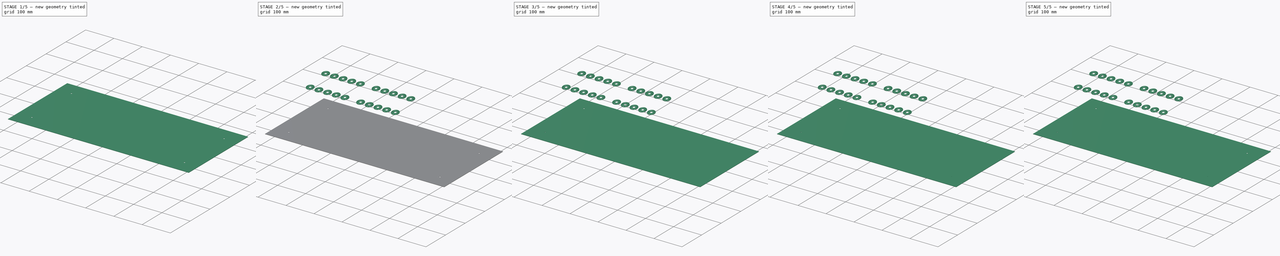
[diagram: build sequence overview — one tinted view per stage of 5, left to right]
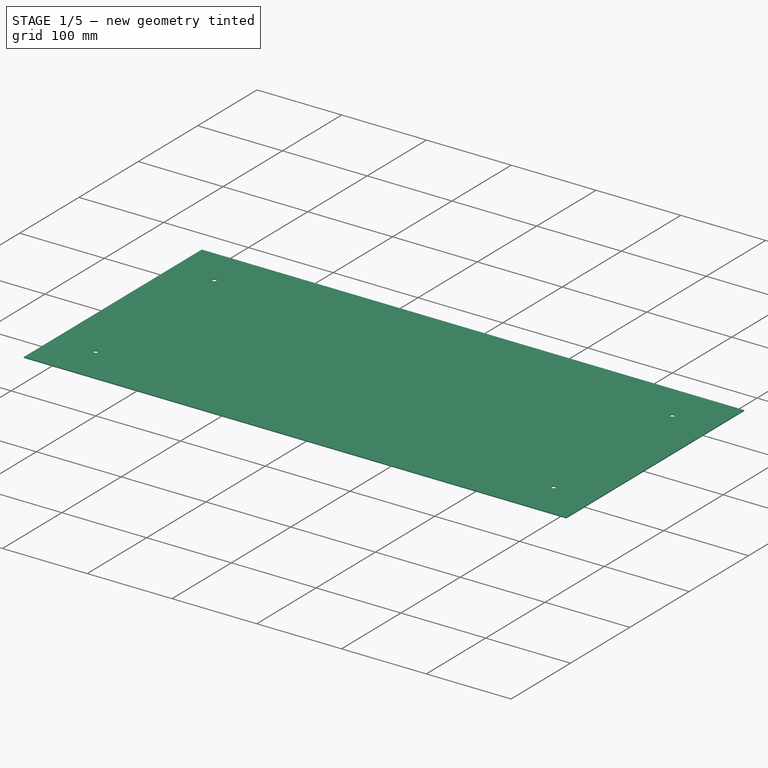
[diagram: stage 1 of 5 — iso view after this stage's code; geometry added in this stage tinted green]
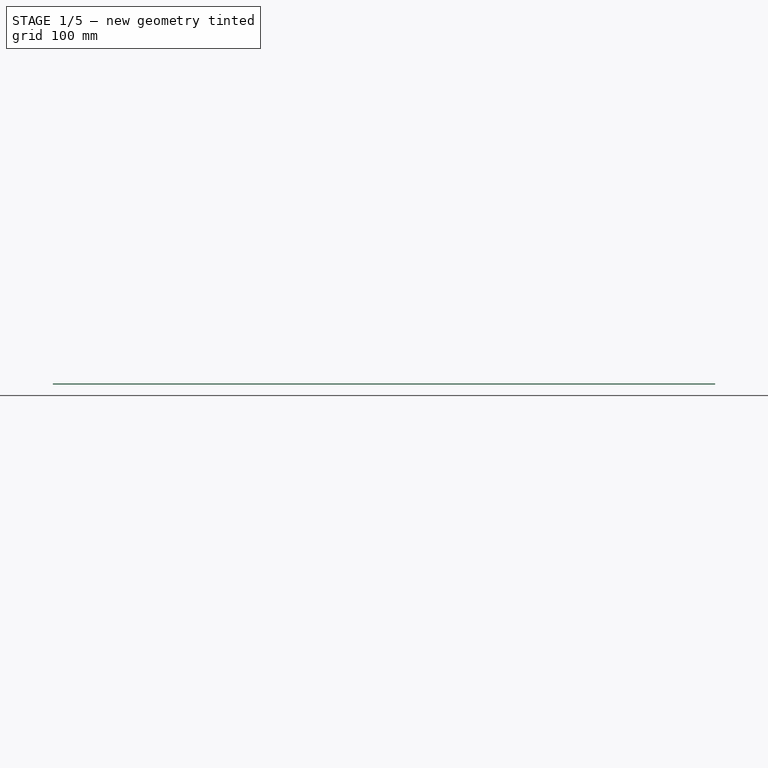
[diagram: stage 1 of 5 — front view after this stage's code; geometry added in this stage tinted green]
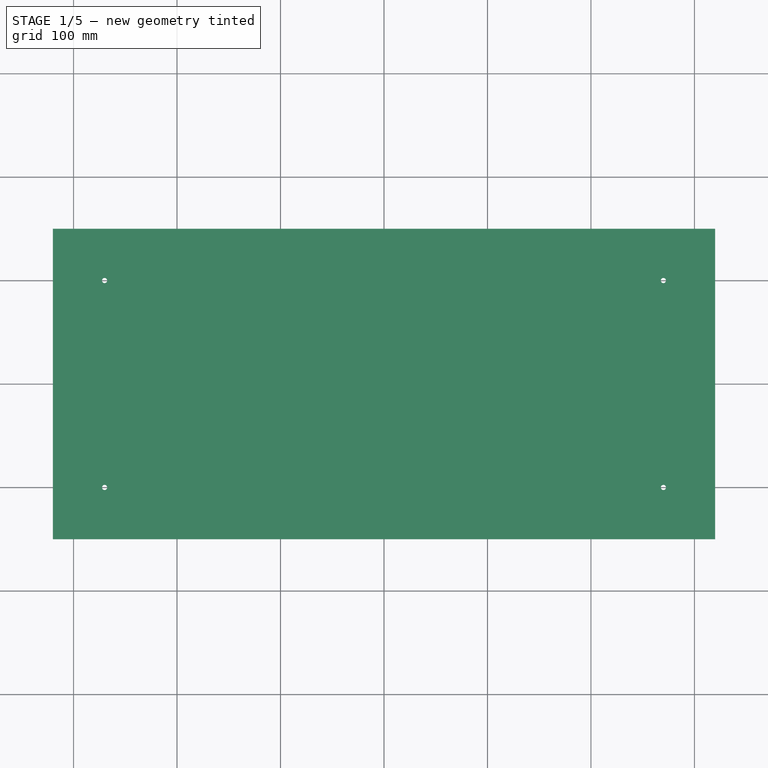
[diagram: stage 1 of 5 — top view after this stage's code; geometry added in this stage tinted green]
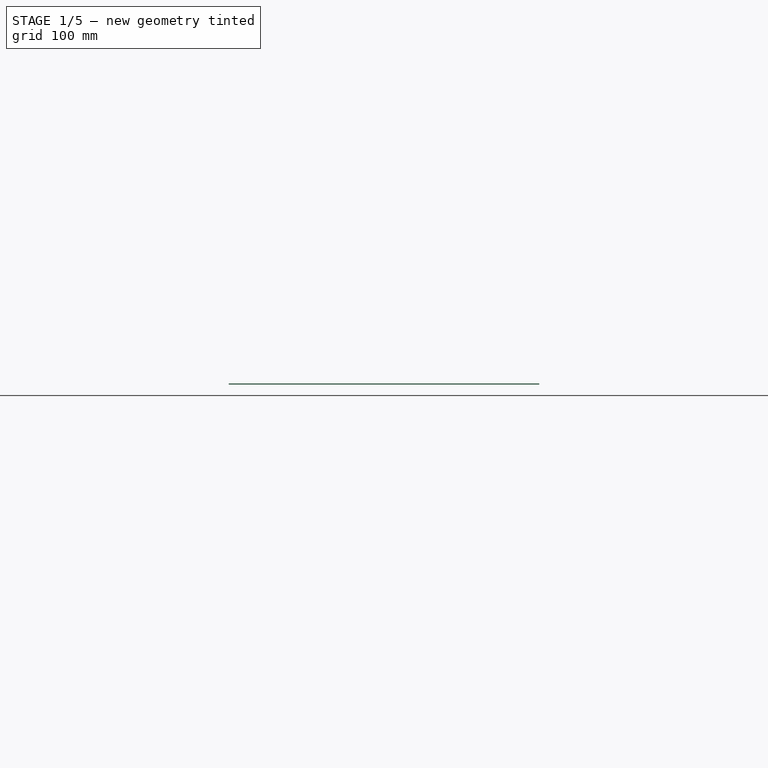
[diagram: stage 1 of 5 — right view after this stage's code; geometry added in this stage tinted green]
FCSTD DOCUMENT  (FreeCAD 1.0R38806 (Git))
Label: model
License: All rights reserved
LicenseURL: http://en.wikipedia.org/wiki/All_rights_reserved
objects: Sketcher::SketchObject×18, PartDesign::Pocket×16, PartDesign::Pad×3, PartDesign::Body×3, Part::FeaturePython×2
note: 96 computed .brp shape members not serialized (recipe doc carries the construction recipe); baked Part::Feature solids carry a one-line shape summary decoded from their .brp

FEATURE [PartDesign::Body] Body  label="faceplate"
  AllowCompound = false
  Group = -> [Sketch,Pad,Sketch001,Sketch002,Sketch008,Sketch005,Sketch006,Sketch004,Sketch007,Sketch003,Sketch009,Sketch010,Sketch011,Sketch012,Pocket,Pocket001,Pocket002,Pocket003,Pocket004,Pocket005,Pocket006,Pocket007,Pocket008,Pocket009,Pocket010,Pocket011]
  Origin = -> Origin
  Placement = pos=(0,5e-15,70) rot=(1,0,0;0.174533rad)
  Tip = -> Pocket011
FEATURE [Sketcher::SketchObject] Sketch013
  ArcFitTolerance = 0
  AttachmentSupport = -> [XY_Plane001]
  FullyConstrained = true
  MakeInternals = false
  MapMode = 5
  sketch-geometry (1):
    g0: Circle CenterX=-300 CenterY=133 CenterZ=0 NormalX=0 NormalY=0 NormalZ=1 AngleXU=0 Radius=13
  constraints (3):
    c: Diameter(g0) = 26
    c: DistanceY(g-1,g0) = 133
    c: DistanceX(g0,g-1) = 300
FEATURE [PartDesign::Pad] Pad001
  Direction = (0,0,1)
  Length = 1
  Length2 = 10
  Profile = -> Sketch013
  ReferenceAxis = -> Sketch013 [N_Axis]
  Suppressed = false
  Type = 0
FEATURE [Sketcher::SketchObject] Sketch014
  ArcFitTolerance = 0
  AttachmentSupport = -> [Pad001]
  ExternalGeometry = -> [Pad001]
  FullyConstrained = true
  MakeInternals = false
  MapMode = 5
  Placement = pos=(0,0,1) rot=(0,0,1;0rad)
  sketch-geometry (1):
    g0: Circle CenterX=-300 CenterY=133 CenterZ=0 NormalX=0 NormalY=0 NormalZ=1 AngleXU=0 Radius=4
  constraints (2):
    c: Coincident(g0,g-3)
    c: Diameter(g0) = 8
FEATURE [PartDesign::Pocket] Pocket012
  BaseFeature = -> Pad001
  Direction = (0,0,-1)
  Length = 1.5
  Length2 = 5
  Profile = -> Sketch014
  ReferenceAxis = -> Sketch014 [N_Axis]
  Suppressed = false
  Type = 0
FEATURE [Sketcher::SketchObject] Sketch016  label="s-bottom-plate"
  ArcFitTolerance = 0
  AttachmentSupport = -> [XY_Plane002]
  FullyConstrained = true
  MakeInternals = false
  MapMode = 5
  sketch-geometry (4):
    g0: LineSegment StartX=-320 StartY=150 StartZ=0 EndX=320 EndY=150 EndZ=0
    g1: LineSegment StartX=320 StartY=150 StartZ=0 EndX=320 EndY=-150 EndZ=0
    g2: LineSegment StartX=320 StartY=-150 StartZ=0 EndX=-320 EndY=-150 EndZ=0
    g3: LineSegment StartX=-320 StartY=-150 StartZ=0 EndX=-320 EndY=150 EndZ=0
  constraints (12):
    c: Coincident(g0,g1)
    c: Coincident(g1,g2)
    c: Coincident(g2,g3)
    c: Coincident(g3,g0)
    c: Horizontal(g0)
    c: Horizontal(g2)
    c: Vertical(g1)
    c: Vertical(g3)
    c: DistanceX(g0,g0) = 640
    c: DistanceY(g1,g1) = 300
    c: DistanceX(g-1,g0) = 320
    c: DistanceY(g-1,g0) = 150
FEATURE [PartDesign::Pad] Pad002  label="bottom-plate"
  Direction = (0,0,1)
  Length = 1
  Length2 = 10
  Profile = -> Sketch016
  ReferenceAxis = -> Sketch016 [N_Axis]
  Suppressed = false
  Type = 0
FEATURE [Sketcher::SketchObject] Sketch017  label="s-feet-hole"
  ArcFitTolerance = 0
  AttachmentSupport = -> [Pad002]
  ExternalGeometry = -> [Pad002]
  FullyConstrained = true
  MakeInternals = false
  MapMode = 5
  Placement = pos=(0,0,0) rot=(1,0,0;3.14159rad)
  sketch-geometry (4):
    g0: Circle CenterX=-270 CenterY=100 CenterZ=0 NormalX=0 NormalY=0 NormalZ=1 AngleXU=0 Radius=2.5
    g1: Circle CenterX=-270 CenterY=-100 CenterZ=0 NormalX=0 NormalY=0 NormalZ=1 AngleXU=0 Radius=2.5
    g2: Circle CenterX=270 CenterY=-100 CenterZ=0 NormalX=0 NormalY=0 NormalZ=1 AngleXU=0 Radius=2.5
    g3: Circle CenterX=270 CenterY=100 CenterZ=0 NormalX=0 NormalY=0 NormalZ=1 AngleXU=0 Radius=2.5
  constraints (12):
    c: Diameter(g0) = 5
    c: DistanceX(g-3,g0) = 50
    c: DistanceY(g0,g-3) = 50
    c: Equal(g3,g2)
    c: Equal(g2,g1)
    c: Equal(g0,g1)
    c: DistanceX(g3,g-3) = 50
    c: DistanceY(g3,g-3) = 50
    c: DistanceX(g2,g-4) = 50
    c: DistanceY(g-4,g2) = 50
    c: DistanceY(g-4,g1) = 50
    c: DistanceX(g-4,g1) = 50
FEATURE [PartDesign::Pocket] Pocket015  label="feet-hole"
  BaseFeature = -> Pad002
  Direction = (0,0,1)
  Length = 1
  Length2 = 5
  Profile = -> Sketch017
  ReferenceAxis = -> Sketch017 [N_Axis]
  Suppressed = false
  Type = 0
FEATURE [PartDesign::Body] Body002  label="bottom"
  AllowCompound = false
  Group = -> [Sketch016,Pad002,Sketch017,Pocket015]
  Origin = -> Origin002
  Tip = -> Pocket015
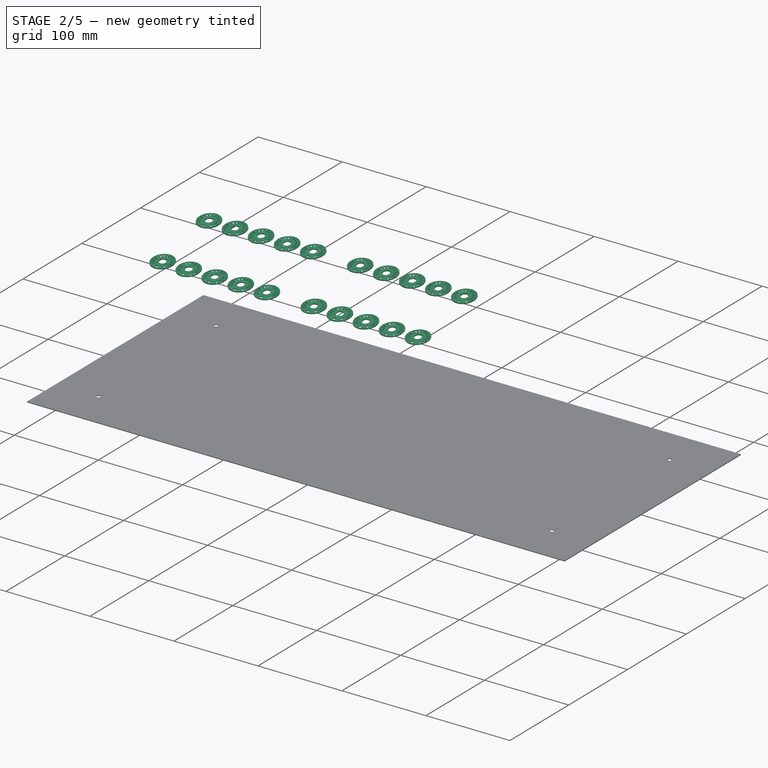
[diagram: stage 2 of 5 — iso view after this stage's code; geometry added in this stage tinted green]
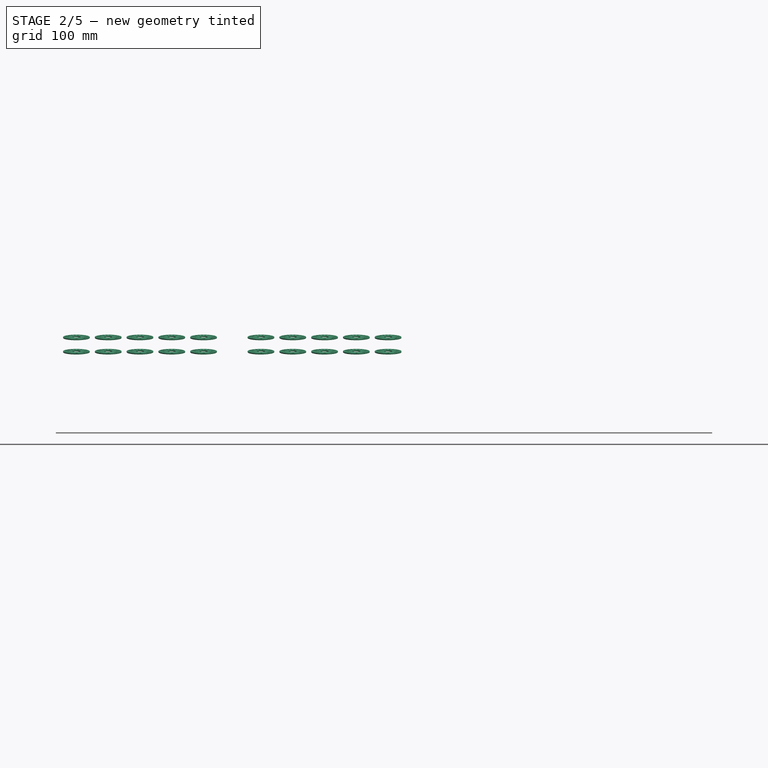
[diagram: stage 2 of 5 — front view after this stage's code; geometry added in this stage tinted green]
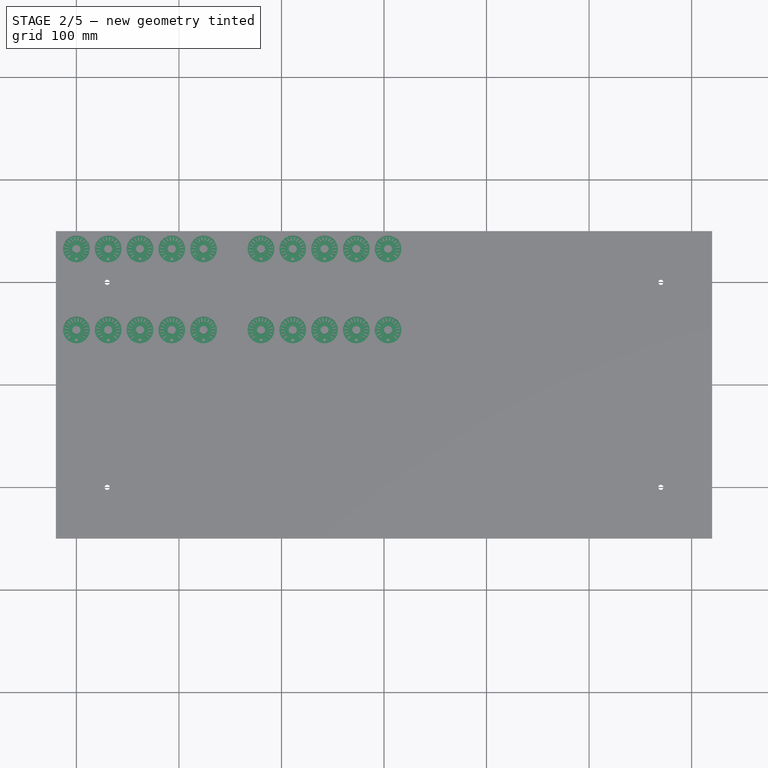
[diagram: stage 2 of 5 — top view after this stage's code; geometry added in this stage tinted green]
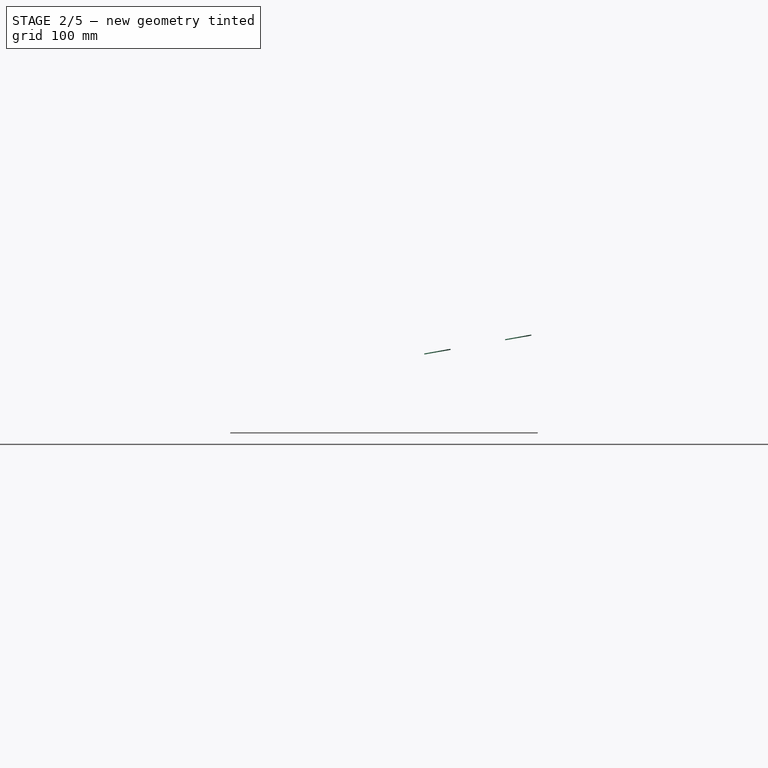
[diagram: stage 2 of 5 — right view after this stage's code; geometry added in this stage tinted green]
FEATURE [PartDesign::Pocket] Pocket013
  BaseFeature = -> Pocket012
  Direction = (0,0,-1)
  Length = 1.5
  Length2 = 5
  Profile = -> Sketch014
  ReferenceAxis = -> Sketch014 [N_Axis]
  Suppressed = false
  Type = 0
FEATURE [Sketcher::SketchObject] Sketch015
  ArcFitTolerance = 0
  AttachmentSupport = -> [Pocket013]
  ExternalGeometry = -> [Pocket013]
  FullyConstrained = true
  MakeInternals = false
  MapMode = 5
  Placement = pos=(0,0,1) rot=(0,0,1;0rad)
  sketch-geometry (99):
    g0: Circle [constr] CenterX=-300 CenterY=133 CenterZ=0 NormalX=0 NormalY=0 NormalZ=1 AngleXU=0 Radius=12
    g1: LineSegment [constr] StartX=-300 StartY=133 StartZ=0 EndX=-300 EndY=121 EndZ=0
    g2: LineSegment [constr] StartX=-300 StartY=133 StartZ=0 EndX=-291.515 EndY=124.515 EndZ=0
    g3: LineSegment StartX=-291.515 StartY=124.515 StartZ=0 EndX=-291.868 EndY=124.161 EndZ=0
    g4: LineSegment StartX=-291.868 StartY=124.161 StartZ=0 EndX=-294.697 EndY=126.99 EndZ=0
    g5: LineSegment StartX=-294.697 StartY=126.99 StartZ=0 EndX=-293.99 EndY=127.697 EndZ=0
    g6: LineSegment StartX=-293.99 StartY=127.697 StartZ=0 EndX=-291.161 EndY=124.868 EndZ=0
    g7: LineSegment StartX=-291.161 StartY=124.868 StartZ=0 EndX=-291.515 EndY=124.515 EndZ=0
    g8: Circle CenterX=-300 CenterY=123 CenterZ=0 NormalX=0 NormalY=0 NormalZ=1 AngleXU=0 Radius=1.5
    g9: LineSegment [constr] StartX=-300 StartY=133 StartZ=0 EndX=-310.692 EndY=138.448 EndZ=0
    g10: LineSegment StartX=-310.465 StartY=138.893 StartZ=0 EndX=-306.901 EndY=137.077 EndZ=0
    g11: LineSegment StartX=-307.355 StartY=136.186 StartZ=0 EndX=-310.919 EndY=138.002 EndZ=0
    g12: LineSegment StartX=-306.901 StartY=137.077 StartZ=0 EndX=-307.355 EndY=136.186 EndZ=0
    g13: LineSegment StartX=-310.692 StartY=138.448 StartZ=0 EndX=-310.465 EndY=138.893 EndZ=0
    g14: LineSegment StartX=-310.919 StartY=138.002 StartZ=0 EndX=-310.692 EndY=138.448 EndZ=0
    g15: LineSegment [constr] StartX=-300 StartY=133 StartZ=0 EndX=-311.852 EndY=134.877 EndZ=0
    g16: LineSegment StartX=-311.852 StartY=134.877 StartZ=0 EndX=-311.774 EndY=135.371 EndZ=0
    g17: LineSegment StartX=-311.774 StartY=135.371 StartZ=0 EndX=-307.823 EndY=134.745 EndZ=0
    g18: LineSegment StartX=-307.823 StartY=134.745 StartZ=0 EndX=-307.98 EndY=133.758 EndZ=0
    g19: LineSegment StartX=-307.98 StartY=133.758 StartZ=0 EndX=-311.93 EndY=134.383 EndZ=0
    g20: LineSegment StartX=-311.93 StartY=134.383 StartZ=0 EndX=-311.852 EndY=134.877 EndZ=0
    g21: LineSegment [constr] StartX=-300 StartY=133 StartZ=0 EndX=-311.852 EndY=131.123 EndZ=0
    g22: LineSegment StartX=-311.852 StartY=131.123 StartZ=0 EndX=-311.93 EndY=131.617 EndZ=0
    g23: LineSegment StartX=-311.93 StartY=131.617 StartZ=0 EndX=-307.98 EndY=132.242 EndZ=0
    g24: LineSegment StartX=-307.98 StartY=132.242 StartZ=0 EndX=-307.823 EndY=131.255 EndZ=0
    g25: LineSegment StartX=-307.823 StartY=131.255 StartZ=0 EndX=-311.774 EndY=130.629 EndZ=0
    g26: LineSegment StartX=-311.774 StartY=130.629 StartZ=0 EndX=-311.852 EndY=131.123 EndZ=0
    g27: LineSegment [constr] StartX=-300 StartY=133 StartZ=0 EndX=-310.692 EndY=127.552 EndZ=0
    g28: LineSegment StartX=-310.692 StartY=127.552 StartZ=0 EndX=-310.919 EndY=127.998 EndZ=0
    g29: LineSegment StartX=-310.919 StartY=127.998 StartZ=0 EndX=-307.355 EndY=129.814 EndZ=0
    g30: LineSegment StartX=-307.355 StartY=129.814 StartZ=0 EndX=-306.901 EndY=128.923 EndZ=0
    g31: LineSegment StartX=-306.901 StartY=128.923 StartZ=0 EndX=-310.465 EndY=127.107 EndZ=0
    g32: LineSegment StartX=-310.465 StartY=127.107 StartZ=0 EndX=-310.692 EndY=127.552 EndZ=0
    g33: LineSegment [constr] StartX=-300 StartY=133 StartZ=0 EndX=-308.485 EndY=124.515 EndZ=0
    g34: LineSegment StartX=-308.485 StartY=124.515 StartZ=0 EndX=-308.839 EndY=124.868 EndZ=0
    g35: LineSegment StartX=-308.839 StartY=124.868 StartZ=0 EndX=-306.01 EndY=127.697 EndZ=0
    g36: LineSegment StartX=-306.01 StartY=127.697 StartZ=0 EndX=-305.303 EndY=126.99 EndZ=0
    g37: LineSegment StartX=-305.303 StartY=126.99 StartZ=0 EndX=-308.132 EndY=124.161 EndZ=0
    g38: LineSegment StartX=-308.132 StartY=124.161 StartZ=0 EndX=-308.485 EndY=124.515 EndZ=0
    g39: LineSegment [constr] StartX=-300 StartY=133 StartZ=0 EndX=-308.485 EndY=141.485 EndZ=0
    g40: LineSegment StartX=-308.485 StartY=141.485 StartZ=0 EndX=-308.132 EndY=141.839 EndZ=0
    g41: LineSegment StartX=-308.132 StartY=141.839 StartZ=0 EndX=-305.303 EndY=139.01 EndZ=0
    g42: LineSegment StartX=-305.303 StartY=139.01 StartZ=0 EndX=-306.01 EndY=138.303 EndZ=0
    g43: LineSegment StartX=-306.01 StartY=138.303 StartZ=0 EndX=-308.839 EndY=141.132 EndZ=0
    g44: LineSegment StartX=-308.839 StartY=141.132 StartZ=0 EndX=-308.485 EndY=141.485 EndZ=0
    g45: LineSegment [constr] StartX=-300 StartY=133 StartZ=0 EndX=-305.448 EndY=143.692 EndZ=0
    g46: LineSegment StartX=-305.448 StartY=143.692 StartZ=0 EndX=-305.002 EndY=143.919 EndZ=0
    g47: LineSegment StartX=-305.002 StartY=143.919 StartZ=0 EndX=-303.186 EndY=140.355 EndZ=0
    g48: LineSegment StartX=-303.186 StartY=140.355 StartZ=0 EndX=-304.077 EndY=139.901 EndZ=0
    g49: LineSegment StartX=-304.077 StartY=139.901 StartZ=0 EndX=-305.893 EndY=143.465 EndZ=0
    g50: LineSegment StartX=-305.893 StartY=143.465 StartZ=0 EndX=-305.448 EndY=143.692 EndZ=0
    g51: LineSegment [constr] StartX=-300 StartY=133 StartZ=0 EndX=-301.877 EndY=144.852 EndZ=0
    g52: LineSegment StartX=-301.877 StartY=144.852 StartZ=0 EndX=-301.383 EndY=144.93 EndZ=0
    g53: LineSegment StartX=-301.383 StartY=144.93 StartZ=0 EndX=-300.758 EndY=140.98 EndZ=0
    g54: LineSegment StartX=-300.758 StartY=140.98 StartZ=0 EndX=-301.745 EndY=140.823 EndZ=0
    g55: LineSegment StartX=-301.745 StartY=140.823 StartZ=0 EndX=-302.371 EndY=144.774 EndZ=0
    g56: LineSegment StartX=-302.371 StartY=144.774 StartZ=0 EndX=-301.877 EndY=144.852 EndZ=0
    g57: LineSegment [constr] StartX=-300 StartY=133 StartZ=0 EndX=-298.123 EndY=144.852 EndZ=0
    g58: LineSegment StartX=-298.123 StartY=144.852 StartZ=0 EndX=-297.629 EndY=144.774 EndZ=0
    g59: LineSegment StartX=-297.629 StartY=144.774 StartZ=0 EndX=-298.255 EndY=140.823 EndZ=0
    g60: LineSegment StartX=-298.255 StartY=140.823 StartZ=0 EndX=-299.242 EndY=140.98 EndZ=0
    g61: LineSegment StartX=-299.242 StartY=140.98 StartZ=0 EndX=-298.617 EndY=144.93 EndZ=0
    g62: LineSegment StartX=-298.617 StartY=144.93 StartZ=0 EndX=-298.123 EndY=144.852 EndZ=0
    g63: LineSegment [constr] StartX=-300 StartY=133 StartZ=0 EndX=-294.552 EndY=143.692 EndZ=0
    g64: LineSegment StartX=-294.552 StartY=143.692 StartZ=0 EndX=-294.107 EndY=143.465 EndZ=0
    g65: LineSegment StartX=-294.107 StartY=143.465 StartZ=0 EndX=-295.923 EndY=139.901 EndZ=0
    g66: LineSegment StartX=-295.923 StartY=139.901 StartZ=0 EndX=-296.814 EndY=140.355 EndZ=0
    g67: LineSegment StartX=-296.814 StartY=140.355 StartZ=0 EndX=-294.998 EndY=143.919 EndZ=0
    g68: LineSegment StartX=-294.998 StartY=143.919 StartZ=0 EndX=-294.552 EndY=143.692 EndZ=0
    g69: LineSegment [constr] StartX=-300 StartY=133 StartZ=0 EndX=-291.515 EndY=141.485 EndZ=0
    g70: LineSegment StartX=-291.515 StartY=141.485 StartZ=0 EndX=-291.161 EndY=141.132 EndZ=0
    g71: LineSegment StartX=-291.161 StartY=141.132 StartZ=0 EndX=-293.99 EndY=138.303 EndZ=0
    g72: LineSegment StartX=-293.99 StartY=138.303 StartZ=0 EndX=-294.697 EndY=139.01 EndZ=0
    g73: LineSegment StartX=-294.697 StartY=139.01 StartZ=0 EndX=-291.868 EndY=141.839 EndZ=0
    g74: LineSegment StartX=-291.868 StartY=141.839 StartZ=0 EndX=-291.515 EndY=141.485 EndZ=0
    g75: LineSegment [constr] StartX=-300 StartY=133 StartZ=0 EndX=-289.308 EndY=138.448 EndZ=0
    g76: LineSegment StartX=-289.308 StartY=138.448 StartZ=0 EndX=-289.081 EndY=138.002 EndZ=0
    g77: LineSegment StartX=-289.081 StartY=138.002 StartZ=0 EndX=-292.645 EndY=136.186 EndZ=0
    g78: LineSegment StartX=-292.645 StartY=136.186 StartZ=0 EndX=-293.099 EndY=137.077 EndZ=0
    g79: LineSegment StartX=-293.099 StartY=137.077 StartZ=0 EndX=-289.535 EndY=138.893 EndZ=0
    g80: LineSegment StartX=-289.535 StartY=138.893 StartZ=0 EndX=-289.308 EndY=138.448 EndZ=0
    g81: LineSegment [constr] StartX=-300 StartY=133 StartZ=0 EndX=-288.148 EndY=134.877 EndZ=0
    g82: LineSegment StartX=-288.148 StartY=134.877 StartZ=0 EndX=-288.07 EndY=134.383 EndZ=0
    g83: LineSegment StartX=-288.07 StartY=134.383 StartZ=0 EndX=-292.02 EndY=133.758 EndZ=0
    g84: LineSegment StartX=-292.02 StartY=133.758 StartZ=0 EndX=-292.177 EndY=134.745 EndZ=0
    g85: LineSegment StartX=-292.177 StartY=134.745 StartZ=0 EndX=-288.226 EndY=135.371 EndZ=0
    g86: LineSegment StartX=-288.226 StartY=135.371 StartZ=0 EndX=-288.148 EndY=134.877 EndZ=0
    g87: LineSegment [constr] StartX=-300 StartY=133 StartZ=0 EndX=-288.148 EndY=131.123 EndZ=0
    g88: LineSegment StartX=-288.148 StartY=131.123 StartZ=0 EndX=-288.226 EndY=130.629 EndZ=0
    g89: LineSegment StartX=-288.226 StartY=130.629 StartZ=0 EndX=-292.177 EndY=131.255 EndZ=0
    g90: LineSegment StartX=-292.177 StartY=131.255 StartZ=0 EndX=-292.02 EndY=132.242 EndZ=0
    g91: LineSegment StartX=-292.02 StartY=132.242 StartZ=0 EndX=-288.07 EndY=131.617 EndZ=0
    g92: LineSegment StartX=-288.07 StartY=131.617 StartZ=0 EndX=-288.148 EndY=131.123 EndZ=0
    g93: LineSegment [constr] StartX=-300 StartY=133 StartZ=0 EndX=-289.308 EndY=127.552 EndZ=0
    g94: LineSegment StartX=-289.308 StartY=127.552 StartZ=0 EndX=-289.535 EndY=127.107 EndZ=0
    g95: LineSegment StartX=-289.535 StartY=127.107 StartZ=0 EndX=-293.099 EndY=128.923 EndZ=0
    g96: LineSegment StartX=-293.099 StartY=128.923 StartZ=0 EndX=-292.645 EndY=129.814 EndZ=0
    g97: LineSegment StartX=-292.645 StartY=129.814 StartZ=0 EndX=-289.081 EndY=127.998 EndZ=0
    g98: LineSegment StartX=-289.081 StartY=127.998 StartZ=0 EndX=-289.308 EndY=127.552 EndZ=0
  constraints (280):
    c: Coincident(g0,g-3)
    c: Diameter(g0) = 24
    c: Coincident(g1,g0)
    c: PointOnObject(g1,g0)
    c: DistanceX(g1,g1) = 0
    c: Coincident(g2,g0)
    c: PointOnObject(g2,g0)
    c: Angle(g1,g2) = 0.785398
    c: Coincident(g3,g2)
    c: Coincident(g4,g3)
    c: Coincident(g5,g4)
    c: Coincident(g6,g5)
    c: Coincident(g7,g6)
    c: Coincident(g7,g3)
    c: Distance(g3) = 0.5
    c: Equal(g3,g7)
    c: Distance(g4) = 4
    c: Equal(g6,g4)
    c: Perpendicular(g6,g7)
    c: PointOnObject(g8,g1)
    c: DistanceY(g1,g8) = 2
    c: Diameter(g8) = 3
    c: Perpendicular(g3,g2)
    c: Parallel(g4,g6)
    c: Parallel(g7,g3)
    c: Coincident(g13,g9)
    c: Coincident(g10,g13)
    c: Coincident(g12,g10)
    c: Coincident(g11,g12)
    c: Coincident(g14,g11)
    c: Coincident(g14,g13)
    c: Equal(g3,g13) = 0.5
    c: Equal(g13,g14)
    c: Equal(g4,g10) = 4
    c: Equal(g11,g10)
    c: Perpendicular(g11,g14)
    c: Perpendicular(g13,g9)
    c: Parallel(g10,g11)
    c: Parallel(g14,g13)
    c: Coincident(g16,g15)
    c: Coincident(g17,g16)
    c: Coincident(g18,g17)
    c: Coincident(g19,g18)
    c: Coincident(g20,g19)
    c: Coincident(g20,g16)
    c: Equal(g3,g16) = 0.5
    c: Equal(g16,g20)
    c: Equal(g4,g17) = 4
    c: Equal(g19,g17)
    c: Perpendicular(g19,g20)
    c: Perpendicular(g16,g15)
    c: Parallel(g17,g19)
    c: Parallel(g20,g16)
    c: Coincident(g22,g21)
    c: Coincident(g23,g22)
    c: Coincident(g24,g23)
    c: Coincident(g25,g24)
    c: Coincident(g26,g25)
    c: Coincident(g26,g22)
    c: Distance(g22) = 0.5
    c: Equal(g22,g26)
    c: Distance(g23) = 4
    c: Equal(g25,g23)
    c: Perpendicular(g25,g26)
    c: Perpendicular(g22,g21)
    c: Parallel(g23,g25)
    c: Parallel(g26,g22)
    c: Coincident(g28,g27)
    c: Coincident(g29,g28)
    c: Coincident(g30,g29)
    c: Coincident(g31,g30)
    c: Coincident(g32,g31)
    c: Coincident(g32,g28)
    c: Distance(g28) = 0.5
    c: Equal(g28,g32)
    c: Distance(g29) = 4
    c: Equal(g31,g29)
    c: Perpendicular(g31,g32)
    c: Perpendicular(g28,g27)
    c: Parallel(g29,g31)
    c: Parallel(g32,g28)
    c: Coincident(g34,g33)
    c: Coincident(g35,g34)
    c: Coincident(g36,g35)
    c: Coincident(g37,g36)
    c: Coincident(g38,g37)
    c: Coincident(g38,g34)
    c: Distance(g34) = 0.5
    c: Equal(g34,g38)
    c: Distance(g35) = 4
    c: Equal(g37,g35)
    c: Perpendicular(g37,g38)
    c: Perpendicular(g34,g33)
    c: Parallel(g35,g37)
    c: Parallel(g38,g34)
    c: Coincident(g40,g39)
    c: Coincident(g41,g40)
    c: Coincident(g42,g41)
    c: Coincident(g43,g42)
    c: Coincident(g44,g43)
    c: Coincident(g44,g40)
    c: Distance(g40) = 0.5
    c: Equal(g40,g44)
    c: Distance(g41) = 4
    c: Equal(g43,g41)
    c: Perpendicular(g43,g44)
    c: Perpendicular(g40,g39)
    c: Parallel(g41,g43)
    c: Parallel(g44,g40)
    c: Coincident(g46,g45)
    c: Coincident(g47,g46)
    c: Coincident(g48,g47)
    c: Coincident(g49,g48)
    c: Coincident(g50,g49)
    c: Coincident(g50,g46)
    c: Distance(g46) = 0.5
    c: Equal(g46,g50)
    c: Distance(g47) = 4
    c: Equal(g49,g47)
    c: Perpendicular(g49,g50)
    c: Perpendicular(g46,g45)
    c: Parallel(g47,g49)
    c: Parallel(g50,g46)
    c: Coincident(g52,g51)
    c: Coincident(g53,g52)
    c: Coincident(g54,g53)
    c: Coincident(g55,g54)
    c: Coincident(g56,g55)
    c: Coincident(g56,g52)
    c: Distance(g52) = 0.5
    c: Equal(g52,g56)
    c: Distance(g53) = 4
    c: Equal(g55,g53)
    c: Perpendicular(g55,g56)
    c: Perpendicular(g52,g51)
    c: Parallel(g53,g55)
    c: Parallel(g56,g52)
    c: Coincident(g58,g57)
    c: Coincident(g59,g58)
    c: Coincident(g60,g59)
    c: Coincident(g61,g60)
    c: Coincident(g62,g61)
    c: Coincident(g62,g58)
    c: Distance(g58) = 0.5
    c: Equal(g58,g62)
    c: Distance(g59) = 4
    c: Equal(g61,g59)
    c: Perpendicular(g61,g62)
    c: Perpendicular(g58,g57)
    c: Parallel(g59,g61)
    c: Parallel(g62,g58)
    c: Coincident(g64,g63)
    c: Coincident(g65,g64)
    c: Coincident(g66,g65)
    c: Coincident(g67,g66)
    c: Coincident(g68,g67)
    c: Coincident(g68,g64)
    c: Distance(g64) = 0.5
    c: Equal(g64,g68)
    c: Distance(g65) = 4
    c: Equal(g67,g65)
    c: Perpendicular(g67,g68)
    c: Perpendicular(g64,g63)
    c: Parallel(g65,g67)
    c: Parallel(g68,g64)
    c: Coincident(g70,g69)
    c: Coincident(g71,g70)
    c: Coincident(g72,g71)
    c: Coincident(g73,g72)
    c: Coincident(g74,g73)
    c: Coincident(g74,g70)
    c: Distance(g70) = 0.5
    c: Equal(g70,g74)
    c: Distance(g71) = 4
    c: Equal(g73,g71)
    c: Perpendicular(g73,g74)
    c: Perpendicular(g70,g69)
    c: Parallel(g71,g73)
    c: Parallel(g74,g70)
    c: Coincident(g76,g75)
    c: Coincident(g77,g76)
    c: Coincident(g78,g77)
    c: Coincident(g79,g78)
    c: Coincident(g80,g79)
    c: Coincident(g80,g76)
    c: Distance(g76) = 0.5
    c: Equal(g76,g80)
    c: Distance(g77) = 4
    c: Equal(g79,g77)
    c: Perpendicular(g79,g80)
    c: Perpendicular(g76,g75)
    c: Parallel(g77,g79)
    c: Parallel(g80,g76)
    c: Coincident(g82,g81)
    c: Coincident(g83,g82)
    c: Coincident(g84,g83)
    c: Coincident(g85,g84)
    c: Coincident(g86,g85)
    c: Coincident(g86,g82)
    c: Distance(g82) = 0.5
    c: Equal(g82,g86)
    c: Distance(g83) = 4
    c: Equal(g85,g83)
    c: Perpendicular(g85,g86)
    c: Perpendicular(g82,g81)
    c: Parallel(g83,g85)
    c: Parallel(g86,g82)
    c: Coincident(g88,g87)
    c: Coincident(g89,g88)
    c: Coincident(g90,g89)
    c: Coincident(g91,g90)
    c: Coincident(g92,g91)
    c: Coincident(g92,g88)
    c: Distance(g88) = 0.5
    c: Equal(g88,g92)
    c: Distance(g89) = 4
    c: Equal(g91,g89)
    c: Perpendicular(g91,g92)
    c: Perpendicular(g88,g87)
    c: Parallel(g89,g91)
    c: Parallel(g92,g88)
    c: Coincident(g94,g93)
    c: Coincident(g95,g94)
    c: Coincident(g96,g95)
    c: Coincident(g97,g96)
    c: Coincident(g98,g97)
    c: Coincident(g98,g94)
    c: Distance(g94) = 0.5
    c: Equal(g94,g98)
    c: Distance(g95) = 4
    c: Equal(g97,g95)
    c: Perpendicular(g97,g98)
    c: Perpendicular(g94,g93)
    c: Parallel(g95,g97)
    c: Parallel(g98,g94)
    c: Coincident(g93,g0)
    c: PointOnObject(g94,g0)
    c: Angle(g2,g93) = 0.314159
    c: Coincident(g87,g0)
    c: Coincident(g81,g0)
    c: Angle(g93,g87) = 0.314159
    c: Angle(g87,g81) = 0.314159
    c: PointOnObject(g88,g0)
    c: PointOnObject(g82,g0)
    c: PointOnObject(g76,g0)
    c: PointOnObject(g70,g0)
    c: Coincident(g75,g0)
    c: Angle(g81,g75) = 0.314159
    c: Coincident(g69,g0)
    c: Angle(g75,g69) = 0.314159
    c: Coincident(g63,g0)
    c: Coincident(g57,g0)
    c: Coincident(g0,g51)
    c: PointOnObject(g64,g0)
    c: PointOnObject(g58,g0)
    c: PointOnObject(g52,g0)
    c: Angle(g69,g63) = 0.314159
    c: Angle(g63,g57) = 0.314159
    c: Angle(g57,g51) = 0.314159
    c: Coincident(g45,g0)
    c: Coincident(g39,g0)
    c: PointOnObject(g46,g0)
    c: PointOnObject(g40,g0)
    c: Angle(g51,g45) = 0.314159
    c: Angle(g45,g39) = 0.314159
    c: Coincident(g9,g0)
    c: Coincident(g15,g0)
    c: PointOnObject(g13,g0)
    c: PointOnObject(g16,g0)
    c: Angle(g39,g9) = 0.314159
    c: Angle(g9,g15) = 0.314159
    c: Coincident(g21,g0)
    c: Coincident(g0,g27)
    c: PointOnObject(g22,g0)
    c: PointOnObject(g28,g0)
    c: Angle(g15,g21) = 0.314159
    c: Angle(g21,g27) = 0.314159
    c: Coincident(g33,g0)
    c: PointOnObject(g34,g0)
    c: Angle(g27,g33) = 0.314159
FEATURE [PartDesign::Pocket] Pocket014
  BaseFeature = -> Pocket013
  Direction = (0,0,-1)
  Length = 1.5
  Length2 = 5
  Profile = -> Sketch015
  ReferenceAxis = -> Sketch015 [N_Axis]
  Suppressed = false
  Type = 0
FEATURE [PartDesign::Body] Body001  label="encoderring"
  AllowCompound = false
  Group = -> [Sketch013,Pad001,Sketch014,Pocket012,Pocket013,Sketch015,Pocket014]
  Origin = -> Origin001
  Tip = -> Pocket014
FEATURE [Part::FeaturePython] Array  # Draft array (typed FeaturePython)
  AlwaysSyncPlacement = false
  Angle = 360
  ArrayType = 0
  Axis = (0,0,1)
  Base = -> Body001
  Center = (0,0,0)
  Count = 10
  ExpandArray = false
  Fuse = false
  IntervalAxis = (0,0,0)
  IntervalX = (31,0,0)
  IntervalY = (0,-80,0)
  IntervalZ = (0,0,119)
  NumberCircles = 3
  NumberPolar = 5
  NumberX = 5
  NumberY = 2
  NumberZ = 1
  PlacementList = 10 placements: [(0,0,0),(0,-80,0),(31,0,0),(31,-80,0),(62,0,0),(62,-80,0),(93,0,0),(93,-80,0),(124,0,0),(124,-80,0)]
  RadialDistance = 50
  ScaleList = (10) [(1,1,1),(1,1,1),(1,1,1),(1,1,1),(1,1,1),(1,1,1),(1,1,1),(1,1,1),(1,1,1),(1,1,1)]
  Symmetry = 1
  TangentialDistance = 25
FEATURE [Part::FeaturePython] Array001  # Draft array (typed FeaturePython)
  AlwaysSyncPlacement = false
  Angle = 360
  ArrayType = 0
  Axis = (0,0,1)
  Base = -> Array
  Center = (0,0,0)
  Count = 2
  ExpandArray = false
  Fuse = false
  IntervalAxis = (0,0,0)
  IntervalX = (180,0,0)
  IntervalY = (0,100,0)
  IntervalZ = (0,0,100)
  NumberCircles = 3
  NumberPolar = 5
  NumberX = 2
  NumberY = 1
  NumberZ = 1
  Placement = pos=(0,-1.12057e-05,70) rot=(1,0,0;0.174533rad)
  PlacementList = 2 placements: [(0,0,0),(180,0,0)]
  RadialDistance = 50
  ScaleList = (2) [(1,1,1),(1,1,1)]
  Symmetry = 1
  TangentialDistance = 25
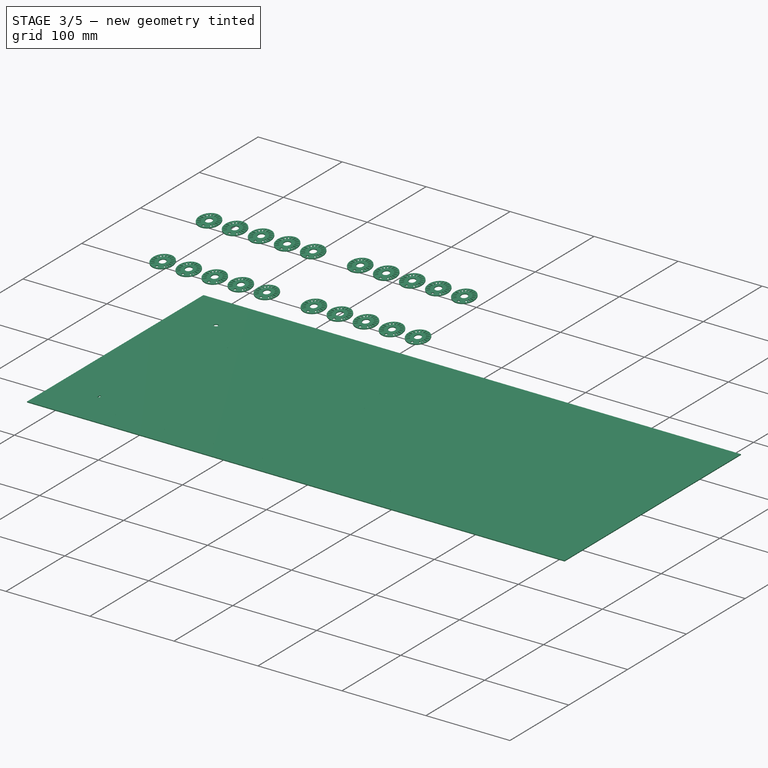
[diagram: stage 3 of 5 — iso view after this stage's code; geometry added in this stage tinted green]
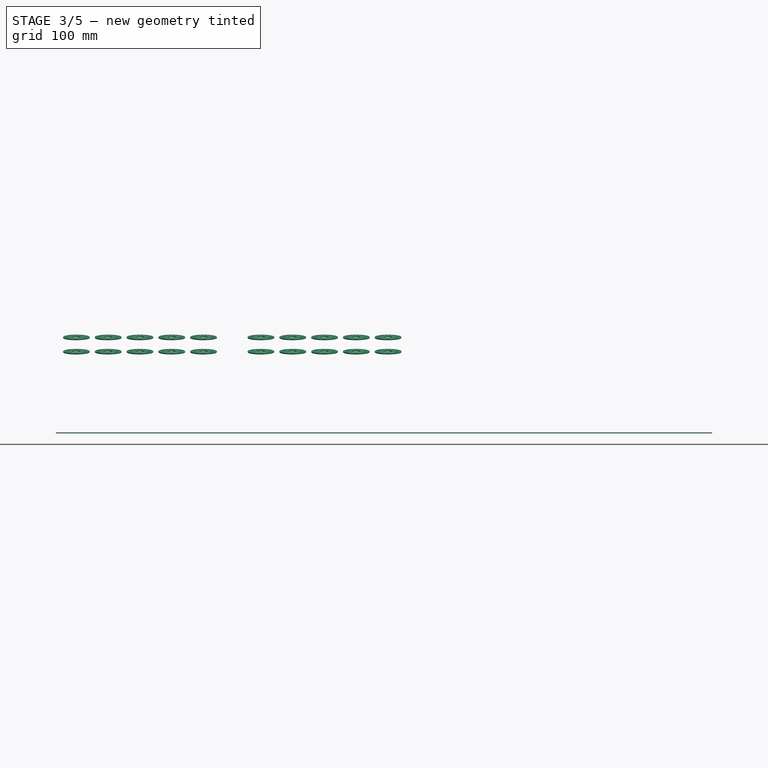
[diagram: stage 3 of 5 — front view after this stage's code; geometry added in this stage tinted green]
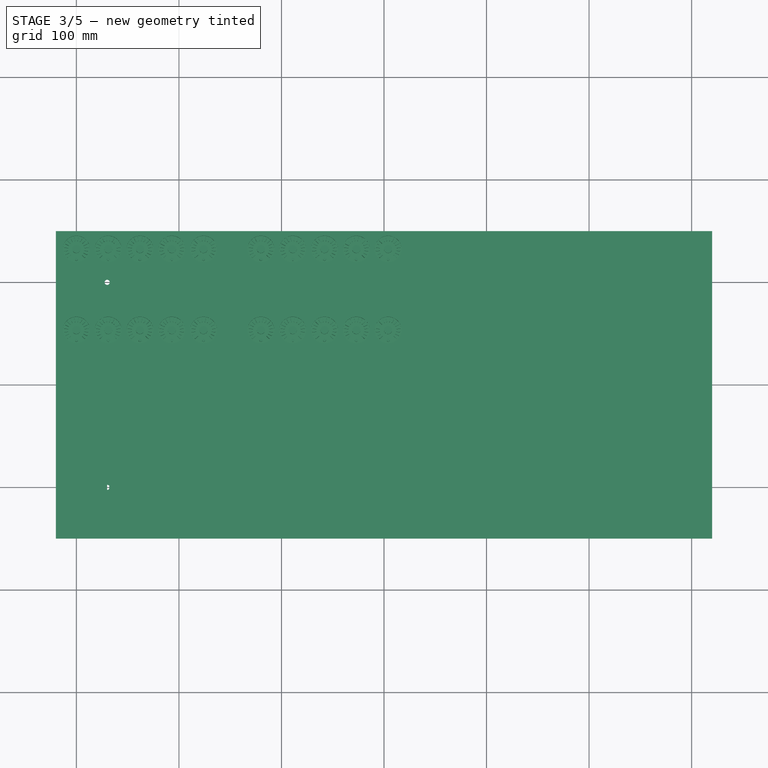
[diagram: stage 3 of 5 — top view after this stage's code; geometry added in this stage tinted green]
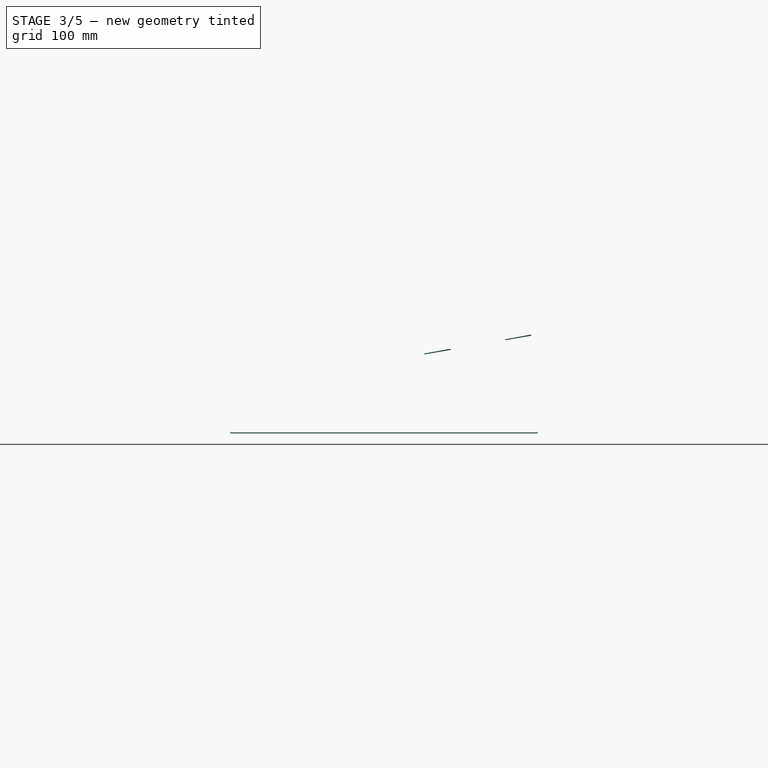
[diagram: stage 3 of 5 — right view after this stage's code; geometry added in this stage tinted green]
FEATURE [Sketcher::SketchObject] Sketch  label="s-faceplate-plate"
  ArcFitTolerance = 0
  AttachmentSupport = -> [XY_Plane]
  FullyConstrained = true
  MakeInternals = false
  MapMode = 5
  sketch-geometry (4):
    g0: LineSegment StartX=-320 StartY=150 StartZ=0 EndX=320 EndY=150 EndZ=0
    g1: LineSegment StartX=320 StartY=150 StartZ=0 EndX=320 EndY=-150 EndZ=0
    g2: LineSegment StartX=320 StartY=-150 StartZ=0 EndX=-320 EndY=-150 EndZ=0
    g3: LineSegment StartX=-320 StartY=-150 StartZ=0 EndX=-320 EndY=150 EndZ=0
  constraints (12):
    c: Coincident(g0,g1)
    c: Coincident(g1,g2)
    c: Coincident(g2,g3)
    c: Coincident(g3,g0)
    c: Horizontal(g0)
    c: Horizontal(g2)
    c: Vertical(g1)
    c: Vertical(g3)
    c: DistanceX(g0,g0) = 640
    c: DistanceY(g1,g1) = 300
    c: DistanceX(g-1,g0) = 320
    c: DistanceY(g-1,g0) = 150
FEATURE [PartDesign::Pad] Pad  label="faceplate-plate"
  Direction = (0,0,1)
  Length = 1
  Length2 = 10
  Profile = -> Sketch
  ReferenceAxis = -> Sketch [N_Axis]
  Suppressed = false
  Type = 0
FEATURE [Sketcher::SketchObject] Sketch001  label="s_faderwings0"
  ArcFitTolerance = 0
  AttachmentSupport = -> [Pad]
  ExternalGeometry = -> [Pad]
  FullyConstrained = true
  MakeInternals = false
  MapMode = 5
  Placement = pos=(0,0,1) rot=(0,0,1;0rad)
  sketch-geometry (120):
    g0: Circle CenterX=-300 CenterY=133 CenterZ=0 NormalX=0 NormalY=0 NormalZ=1 AngleXU=0 Radius=13
    g1: LineSegment StartX=-307 StartY=110 StartZ=0 EndX=-293 EndY=110 EndZ=0
    g2: LineSegment StartX=-293 StartY=110 StartZ=0 EndX=-293 EndY=96 EndZ=0
    g3: LineSegment StartX=-293 StartY=96 StartZ=0 EndX=-307 EndY=96 EndZ=0
    g4: LineSegment StartX=-307 StartY=96 StartZ=0 EndX=-307 EndY=110 EndZ=0
    g5: LineSegment StartX=-314.5 StartY=37 StartZ=0 EndX=-285.5 EndY=37 EndZ=0
    g6: LineSegment StartX=-285.5 StartY=37 StartZ=0 EndX=-285.5 EndY=22.75 EndZ=0
    g7: LineSegment StartX=-285.5 StartY=22.75 StartZ=0 EndX=-314.5 EndY=22.75 EndZ=0
    g8: LineSegment StartX=-314.5 StartY=22.75 StartZ=0 EndX=-314.5 EndY=37 EndZ=0
    g9: LineSegment StartX=-307 StartY=90 StartZ=0 EndX=-293 EndY=90 EndZ=0
    g10: LineSegment StartX=-293 StartY=90 StartZ=0 EndX=-293 EndY=76 EndZ=0
    g11: LineSegment StartX=-293 StartY=76 StartZ=0 EndX=-307 EndY=76 EndZ=0
    g12: LineSegment StartX=-307 StartY=76 StartZ=0 EndX=-307 EndY=90 EndZ=0
    g13: Circle CenterX=-300 CenterY=53 CenterZ=0 NormalX=0 NormalY=0 NormalZ=1 AngleXU=0 Radius=13
    g14: Circle CenterX=-300 CenterY=9 CenterZ=0 NormalX=0 NormalY=0 NormalZ=1 AngleXU=0 Radius=1.5
    g15: LineSegment StartX=-301 StartY=3 StartZ=0 EndX=-299 EndY=3 EndZ=0
    g16: LineSegment StartX=-299 StartY=3 StartZ=0 EndX=-299 EndY=-105 EndZ=0
    g17: LineSegment StartX=-299 StartY=-105 StartZ=0 EndX=-301 EndY=-105 EndZ=0
    g18: LineSegment StartX=-301 StartY=-105 StartZ=0 EndX=-301 EndY=3 EndZ=0
    g19: Circle CenterX=-300 CenterY=-111 CenterZ=0 NormalX=0 NormalY=0 NormalZ=1 AngleXU=0 Radius=1.5
    g20: LineSegment StartX=-307 StartY=-126 StartZ=0 EndX=-293 EndY=-126 EndZ=0
    g21: LineSegment StartX=-293 StartY=-126 StartZ=0 EndX=-293 EndY=-140 EndZ=0
    g22: LineSegment StartX=-293 StartY=-140 StartZ=0 EndX=-307 EndY=-140 EndZ=0
    g23: LineSegment StartX=-307 StartY=-140 StartZ=0 EndX=-307 EndY=-126 EndZ=0
    g24: Circle CenterX=-269 CenterY=133 CenterZ=0 NormalX=0 NormalY=0 NormalZ=1 AngleXU=0 Radius=13
    g25: LineSegment StartX=-276 StartY=110 StartZ=0 EndX=-262 EndY=110 EndZ=0
    g26: LineSegment StartX=-262 StartY=110 StartZ=0 EndX=-262 EndY=96 EndZ=0
    g27: LineSegment StartX=-262 StartY=96 StartZ=0 EndX=-276 EndY=96 EndZ=0
    g28: LineSegment StartX=-276 StartY=96 StartZ=0 EndX=-276 EndY=110 EndZ=0
    g29: LineSegment StartX=-283.5 StartY=37 StartZ=0 EndX=-254.5 EndY=37 EndZ=0
    g30: LineSegment StartX=-254.5 StartY=37 StartZ=0 EndX=-254.5 EndY=22.75 EndZ=0
    g31: LineSegment StartX=-254.5 StartY=22.75 StartZ=0 EndX=-283.5 EndY=22.75 EndZ=0
    g32: LineSegment StartX=-283.5 StartY=22.75 StartZ=0 EndX=-283.5 EndY=37 EndZ=0
    g33: LineSegment StartX=-276 StartY=90 StartZ=0 EndX=-262 EndY=90 EndZ=0
    g34: LineSegment StartX=-262 StartY=90 StartZ=0 EndX=-262 EndY=76 EndZ=0
    g35: LineSegment StartX=-262 StartY=76 StartZ=0 EndX=-276 EndY=76 EndZ=0
    g36: LineSegment StartX=-276 StartY=76 StartZ=0 EndX=-276 EndY=90 EndZ=0
    g37: Circle CenterX=-269 CenterY=53 CenterZ=0 NormalX=0 NormalY=0 NormalZ=1 AngleXU=0 Radius=13
    g38: Circle CenterX=-269 CenterY=9 CenterZ=0 NormalX=0 NormalY=0 NormalZ=1 AngleXU=0 Radius=1.5
    g39: LineSegment StartX=-270 StartY=3 StartZ=0 EndX=-268 EndY=3 EndZ=0
    g40: LineSegment StartX=-268 StartY=3 StartZ=0 EndX=-268 EndY=-105 EndZ=0
    g41: LineSegment StartX=-268 StartY=-105 StartZ=0 EndX=-270 EndY=-105 EndZ=0
    g42: LineSegment StartX=-270 StartY=-105 StartZ=0 EndX=-270 EndY=3 EndZ=0
    g43: Circle CenterX=-269 CenterY=-111 CenterZ=0 NormalX=0 NormalY=0 NormalZ=1 AngleXU=0 Radius=1.5
    g44: LineSegment StartX=-276 StartY=-126 StartZ=0 EndX=-262 EndY=-126 EndZ=0
    g45: LineSegment StartX=-262 StartY=-126 StartZ=0 EndX=-262 EndY=-140 EndZ=0
    g46: LineSegment StartX=-262 StartY=-140 StartZ=0 EndX=-276 EndY=-140 EndZ=0
    g47: LineSegment StartX=-276 StartY=-140 StartZ=0 EndX=-276 EndY=-126 EndZ=0
    g48: Circle CenterX=-238 CenterY=133 CenterZ=0 NormalX=0 NormalY=0 NormalZ=1 AngleXU=0 Radius=13
    g49: LineSegment StartX=-245 StartY=110 StartZ=0 EndX=-231 EndY=110 EndZ=0
    g50: LineSegment StartX=-231 StartY=110 StartZ=0 EndX=-231 EndY=96 EndZ=0
    g51: LineSegment StartX=-231 StartY=96 StartZ=0 EndX=-245 EndY=96 EndZ=0
    g52: LineSegment StartX=-245 StartY=96 StartZ=0 EndX=-245 EndY=110 EndZ=0
    g53: LineSegment StartX=-252.5 StartY=37 StartZ=0 EndX=-223.5 EndY=37 EndZ=0
    g54: LineSegment StartX=-223.5 StartY=37 StartZ=0 EndX=-223.5 EndY=22.75 EndZ=0
    g55: LineSegment StartX=-223.5 StartY=22.75 StartZ=0 EndX=-252.5 EndY=22.75 EndZ=0
    g56: LineSegment StartX=-252.5 StartY=22.75 StartZ=0 EndX=-252.5 EndY=37 EndZ=0
    g57: LineSegment StartX=-245 StartY=90 StartZ=0 EndX=-231 EndY=90 EndZ=0
    g58: LineSegment StartX=-231 StartY=90 StartZ=0 EndX=-231 EndY=76 EndZ=0
    g59: LineSegment StartX=-231 StartY=76 StartZ=0 EndX=-245 EndY=76 EndZ=0
    g60: LineSegment StartX=-245 StartY=76 StartZ=0 EndX=-245 EndY=90 EndZ=0
    g61: Circle CenterX=-238 CenterY=53 CenterZ=0 NormalX=0 NormalY=0 NormalZ=1 AngleXU=0 Radius=13
    g62: Circle CenterX=-238 CenterY=9 CenterZ=0 NormalX=0 NormalY=0 NormalZ=1 AngleXU=0 Radius=1.5
    g63: LineSegment StartX=-239 StartY=3 StartZ=0 EndX=-237 EndY=3 EndZ=0
    g64: LineSegment StartX=-237 StartY=3 StartZ=0 EndX=-237 EndY=-105 EndZ=0
    g65: LineSegment StartX=-237 StartY=-105 StartZ=0 EndX=-239 EndY=-105 EndZ=0
    g66: LineSegment StartX=-239 StartY=-105 StartZ=0 EndX=-239 EndY=3 EndZ=0
    g67: Circle CenterX=-238 CenterY=-111 CenterZ=0 NormalX=0 NormalY=0 NormalZ=1 AngleXU=0 Radius=1.5
    g68: LineSegment StartX=-245 StartY=-126 StartZ=0 EndX=-231 EndY=-126 EndZ=0
    g69: LineSegment StartX=-231 StartY=-126 StartZ=0 EndX=-231 EndY=-140 EndZ=0
    g70: LineSegment StartX=-231 StartY=-140 StartZ=0 EndX=-245 EndY=-140 EndZ=0
    g71: LineSegment StartX=-245 StartY=-140 StartZ=0 EndX=-245 EndY=-126 EndZ=0
    g72: Circle CenterX=-207 CenterY=133 CenterZ=0 NormalX=0 NormalY=0 NormalZ=1 AngleXU=0 Radius=13
    g73: LineSegment StartX=-214 StartY=110 StartZ=0 EndX=-200 EndY=110 EndZ=0
    g74: LineSegment StartX=-200 StartY=110 StartZ=0 EndX=-200 EndY=96 EndZ=0
    g75: LineSegment StartX=-200 StartY=96 StartZ=0 EndX=-214 EndY=96 EndZ=0
    g76: LineSegment StartX=-214 StartY=96 StartZ=0 EndX=-214 EndY=110 EndZ=0
    g77: LineSegment StartX=-221.5 StartY=37 StartZ=0 EndX=-192.5 EndY=37 EndZ=0
    g78: LineSegment StartX=-192.5 StartY=37 StartZ=0 EndX=-192.5 EndY=22.75 EndZ=0
    g79: LineSegment StartX=-192.5 StartY=22.75 StartZ=0 EndX=-221.5 EndY=22.75 EndZ=0
    g80: LineSegment StartX=-221.5 StartY=22.75 StartZ=0 EndX=-221.5 EndY=37 EndZ=0
    g81: LineSegment StartX=-214 StartY=90 StartZ=0 EndX=-200 EndY=90 EndZ=0
    g82: LineSegment StartX=-200 StartY=90 StartZ=0 EndX=-200 EndY=76 EndZ=0
    g83: LineSegment StartX=-200 StartY=76 StartZ=0 EndX=-214 EndY=76 EndZ=0
    g84: LineSegment StartX=-214 StartY=76 StartZ=0 EndX=-214 EndY=90 EndZ=0
    g85: Circle CenterX=-207 CenterY=53 CenterZ=0 NormalX=0 NormalY=0 NormalZ=1 AngleXU=0 Radius=13
    g86: Circle CenterX=-207 CenterY=9 CenterZ=0 NormalX=0 NormalY=0 NormalZ=1 AngleXU=0 Radius=1.5
    g87: LineSegment StartX=-208 StartY=3 StartZ=0 EndX=-206 EndY=3 EndZ=0
    g88: LineSegment StartX=-206 StartY=3 StartZ=0 EndX=-206 EndY=-105 EndZ=0
    g89: LineSegment StartX=-206 StartY=-105 StartZ=0 EndX=-208 EndY=-105 EndZ=0
    g90: LineSegment StartX=-208 StartY=-105 StartZ=0 EndX=-208 EndY=3 EndZ=0
    g91: Circle CenterX=-207 CenterY=-111 CenterZ=0 NormalX=0 NormalY=0 NormalZ=1 AngleXU=0 Radius=1.5
    g92: LineSegment StartX=-214 StartY=-126 StartZ=0 EndX=-200 EndY=-126 EndZ=0
    g93: LineSegment StartX=-200 StartY=-126 StartZ=0 EndX=-200 EndY=-140 EndZ=0
    g94: LineSegment StartX=-200 StartY=-140 StartZ=0 EndX=-214 EndY=-140 EndZ=0
    g95: LineSegment StartX=-214 StartY=-140 StartZ=0 EndX=-214 EndY=-126 EndZ=0
    g96: Circle CenterX=-176 CenterY=133 CenterZ=0 NormalX=0 NormalY=0 NormalZ=1 AngleXU=0 Radius=13
    g97: LineSegment StartX=-183 StartY=110 StartZ=0 EndX=-169 EndY=110 EndZ=0
    g98: LineSegment StartX=-169 StartY=110 StartZ=0 EndX=-169 EndY=96 EndZ=0
    g99: LineSegment StartX=-169 StartY=96 StartZ=0 EndX=-183 EndY=96 EndZ=0
    g100: LineSegment StartX=-183 StartY=96 StartZ=0 EndX=-183 EndY=110 EndZ=0
    g101: LineSegment StartX=-190.5 StartY=37 StartZ=0 EndX=-161.5 EndY=37 EndZ=0
    g102: LineSegment StartX=-161.5 StartY=37 StartZ=0 EndX=-161.5 EndY=22.75 EndZ=0
    g103: LineSegment StartX=-161.5 StartY=22.75 StartZ=0 EndX=-190.5 EndY=22.75 EndZ=0
    g104: LineSegment StartX=-190.5 StartY=22.75 StartZ=0 EndX=-190.5 EndY=37 EndZ=0
    g105: LineSegment StartX=-183 StartY=90 StartZ=0 EndX=-169 EndY=90 EndZ=0
    g106: LineSegment StartX=-169 StartY=90 StartZ=0 EndX=-169 EndY=76 EndZ=0
    g107: LineSegment StartX=-169 StartY=76 StartZ=0 EndX=-183 EndY=76 EndZ=0
    g108: LineSegment StartX=-183 StartY=76 StartZ=0 EndX=-183 EndY=90 EndZ=0
    g109: Circle CenterX=-176 CenterY=53 CenterZ=0 NormalX=0 NormalY=0 NormalZ=1 AngleXU=0 Radius=13
    g110: Circle CenterX=-176 CenterY=9 CenterZ=0 NormalX=0 NormalY=0 NormalZ=1 AngleXU=0 Radius=1.5
    g111: LineSegment StartX=-177 StartY=3 StartZ=0 EndX=-175 EndY=3 EndZ=0
    g112: LineSegment StartX=-175 StartY=3 StartZ=0 EndX=-175 EndY=-105 EndZ=0
    g113: LineSegment StartX=-175 StartY=-105 StartZ=0 EndX=-177 EndY=-105 EndZ=0
    g114: LineSegment StartX=-177 StartY=-105 StartZ=0 EndX=-177 EndY=3 EndZ=0
    g115: Circle CenterX=-176 CenterY=-111 CenterZ=0 NormalX=0 NormalY=0 NormalZ=1 AngleXU=0 Radius=1.5
    g116: LineSegment StartX=-183 StartY=-126 StartZ=0 EndX=-169 EndY=-126 EndZ=0
    g117: LineSegment StartX=-169 StartY=-126 StartZ=0 EndX=-169 EndY=-140 EndZ=0
    g118: LineSegment StartX=-169 StartY=-140 StartZ=0 EndX=-183 EndY=-140 EndZ=0
    g119: LineSegment StartX=-183 StartY=-140 StartZ=0 EndX=-183 EndY=-126 EndZ=0
  constraints (360):
    c: Coincident(g1,g2)
    c: Coincident(g2,g3)
    c: Coincident(g3,g4)
    c: Coincident(g4,g1)
    c: Horizontal(g1)
    c: Horizontal(g3)
    c: Vertical(g2)
    c: Vertical(g4)
    c: Coincident(g5,g6)
    c: Coincident(g6,g7)
    c: Coincident(g7,g8)
    c: Coincident(g8,g5)
    c: Horizontal(g5)
    c: Horizontal(g7)
    c: Vertical(g6)
    c: Vertical(g8)
    c: Diameter(g0) = 26
    c: DistanceY(g4,g4) = 14
    c: DistanceX(g1,g1) = 14
    c: DistanceX(g-4,g0) = 20
    c: DistanceY(g0,g-4) = 17
    c: DistanceX(g1,g0) = 7
    c: DistanceY(g1,g0) = 23
    c: Coincident(g9,g10)
    c: Coincident(g10,g11)
    c: Coincident(g11,g12)
    c: Coincident(g12,g9)
    c: Horizontal(g9)
    c: Horizontal(g11)
    c: Vertical(g10)
    c: Vertical(g12)
    c: Equal(g4,g12) = 14
    c: Equal(g1,g9) = 14
    c: DistanceY(g9,g3) = 6
    c: DistanceX(g3,g9) = 0
    c: Equal(g0,g13) = 10
    c: DistanceX(g11,g13) = 7
    c: DistanceY(g13,g11) = 23
    c: DistanceY(g5,g13) = 16
    c: DistanceY(g8,g8) = 14.25
    c: DistanceX(g5,g5) = 29
    c: DistanceX(g5,g13) = 14.5
    c: Coincident(g15,g16)
    c: Coincident(g16,g17)
    c: Coincident(g17,g18)
    c: Coincident(g18,g15)
    c: Horizontal(g15)
    c: Horizontal(g17)
    c: Vertical(g16)
    c: Vertical(g18)
    c: Diameter(g14) = 3
    c: DistanceY(g18,g18) = 108
    c: DistanceX(g15,g15) = 2
    c: DistanceX(g15,g14) = 1
    c: DistanceY(g15,g14) = 6
    c: DistanceX(g7,g14) = 14.5
    c: DistanceY(g14,g7) = 13.75
    c: Equal(g14,g19) = 3
    c: DistanceY(g19,g17) = 6
    c: DistanceX(g17,g19) = 1
    c: Coincident(g20,g21)
    c: Coincident(g21,g22)
    c: Coincident(g22,g23)
    c: Coincident(g23,g20)
    c: Horizontal(g20)
    c: Horizontal(g22)
    c: Vertical(g21)
    c: Vertical(g23)
    c: Equal(g4,g23) = 14
    c: Equal(g1,g20) = 14
    c: DistanceX(g20,g19) = 7
    c: DistanceY(g20,g19) = 15
    c: Coincident(g25,g26)
    c: Coincident(g26,g27)
    c: Coincident(g27,g28)
    c: Coincident(g28,g25)
    c: Horizontal(g25)
    c: Horizontal(g27)
    c: Vertical(g26)
    c: Vertical(g28)
    c: Coincident(g29,g30)
    c: Coincident(g30,g31)
    c: Coincident(g31,g32)
    c: Coincident(g32,g29)
    c: Horizontal(g29)
    c: Horizontal(g31)
    c: Vertical(g30)
    c: Vertical(g32)
    c: Equal(g0,g24) = 10
    c: Equal(g4,g28) = 14
    c: Equal(g1,g25) = 14
    c: DistanceX(g25,g24) = 7
    c: Coincident(g33,g34)
    c: Coincident(g34,g35)
    c: Coincident(g35,g36)
    c: Coincident(g36,g33)
    c: Horizontal(g33)
    c: Horizontal(g35)
    c: Vertical(g34)
    c: Vertical(g36)
    c: Equal(g28,g36) = 14
    c: Equal(g25,g33) = 14
    c: DistanceX(g27,g33) = 0
    c: Equal(g24,g37) = 10
    c: DistanceX(g35,g37) = 7
    c: Equal(g8,g32) = 14
    c: Equal(g5,g29) = 28
    c: DistanceX(g29,g37) = 14.5
    c: Coincident(g39,g40)
    c: Coincident(g40,g41)
    c: Coincident(g41,g42)
    c: Coincident(g42,g39)
    c: Horizontal(g39)
    c: Horizontal(g41)
    c: Vertical(g40)
    c: Vertical(g42)
    c: Equal(g14,g38) = 3
    c: Equal(g18,g42) = 108
    c: Equal(g15,g39) = 2
    c: DistanceX(g39,g38) = 1
    c: DistanceX(g31,g38) = 14.5
    c: Equal(g38,g43) = 3
    c: DistanceX(g41,g43) = 1
    c: Coincident(g44,g45)
    c: Coincident(g45,g46)
    c: Coincident(g46,g47)
    c: Coincident(g47,g44)
    c: Horizontal(g44)
    c: Horizontal(g46)
    c: Vertical(g45)
    c: Vertical(g47)
    c: Equal(g28,g47) = 14
    c: Equal(g25,g44) = 14
    c: DistanceX(g44,g43) = 7
    c: DistanceY(g24,g0) = 0
    c: DistanceY(g25,g1) = 0
    c: DistanceY(g33,g9) = 0
    c: DistanceX(g0,g24) = 31
    c: DistanceY(g37,g13) = 0
    c: DistanceY(g29,g5) = 0
    c: DistanceY(g38,g14) = 0
    c: DistanceY(g39,g15) = 0
    c: DistanceY(g43,g19) = 0
    c: DistanceY(g44,g20) = 0
    c: Coincident(g49,g50)
    c: Coincident(g50,g51)
    c: Coincident(g51,g52)
    c: Coincident(g52,g49)
    c: Horizontal(g49)
    c: Horizontal(g51)
    c: Vertical(g50)
    c: Vertical(g52)
    c: Coincident(g53,g54)
    c: Coincident(g54,g55)
    c: Coincident(g55,g56)
    c: Coincident(g56,g53)
    c: Horizontal(g53)
    c: Horizontal(g55)
    c: Vertical(g54)
    c: Vertical(g56)
    c: DistanceX(g49,g48) = 7
    c: Coincident(g57,g58)
    c: Coincident(g58,g59)
    c: Coincident(g59,g60)
    c: Coincident(g60,g57)
    c: Horizontal(g57)
    c: Horizontal(g59)
    c: Vertical(g58)
    c: Vertical(g60)
    c: Equal(g52,g60) = 14
    c: Equal(g49,g57) = 14
    c: DistanceX(g51,g57) = 0
    c: Equal(g48,g61) = 10
    c: DistanceX(g59,g61) = 7
    c: DistanceX(g53,g61) = 14.5
    c: Coincident(g63,g64)
    c: Coincident(g64,g65)
    c: Coincident(g65,g66)
    c: Coincident(g66,g63)
    c: Horizontal(g63)
    c: Horizontal(g65)
    c: Vertical(g64)
    c: Vertical(g66)
    c: DistanceX(g63,g62) = 1
    c: DistanceX(g55,g62) = 14.5
    c: Equal(g62,g67) = 3
    c: DistanceX(g65,g67) = 1
    c: Coincident(g68,g69)
    c: Coincident(g69,g70)
    c: Coincident(g70,g71)
    c: Coincident(g71,g68)
    c: Horizontal(g68)
    c: Horizontal(g70)
    c: Vertical(g69)
    c: Vertical(g71)
    c: Equal(g52,g71) = 14
    c: Equal(g49,g68) = 14
    c: DistanceX(g68,g67) = 7
    c: Coincident(g73,g74)
    c: Coincident(g74,g75)
    c: Coincident(g75,g76)
    c: Coincident(g76,g73)
    c: Horizontal(g73)
    c: Horizontal(g75)
    c: Vertical(g74)
    c: Vertical(g76)
    c: Coincident(g77,g78)
    c: Coincident(g78,g79)
    c: Coincident(g79,g80)
    c: Coincident(g80,g77)
    c: Horizontal(g77)
    c: Horizontal(g79)
    c: Vertical(g78)
    c: Vertical(g80)
    c: DistanceX(g73,g72) = 7
    c: Coincident(g81,g82)
    c: Coincident(g82,g83)
    c: Coincident(g83,g84)
    c: Coincident(g84,g81)
    c: Horizontal(g81)
    c: Horizontal(g83)
    c: Vertical(g82)
    c: Vertical(g84)
    c: Equal(g76,g84) = 14
    c: Equal(g73,g81) = 14
    c: DistanceX(g75,g81) = 0
    c: Equal(g72,g85) = 10
    c: DistanceX(g83,g85) = 7
    c: DistanceX(g77,g85) = 14.5
    c: Coincident(g87,g88)
    c: Coincident(g88,g89)
    c: Coincident(g89,g90)
    c: Coincident(g90,g87)
    c: Horizontal(g87)
    c: Horizontal(g89)
    c: Vertical(g88)
    c: Vertical(g90)
    c: DistanceX(g87,g86) = 1
    c: DistanceX(g79,g86) = 14.5
    c: Equal(g86,g91) = 3
    c: DistanceX(g89,g91) = 1
    c: Coincident(g92,g93)
    c: Coincident(g93,g94)
    c: Coincident(g94,g95)
    c: Coincident(g95,g92)
    c: Horizontal(g92)
    c: Horizontal(g94)
    c: Vertical(g93)
    c: Vertical(g95)
    c: Equal(g76,g95) = 14
    c: Equal(g73,g92) = 14
    c: DistanceX(g92,g91) = 7
    c: Coincident(g97,g98)
    c: Coincident(g98,g99)
    c: Coincident(g99,g100)
    c: Coincident(g100,g97)
    c: Horizontal(g97)
    c: Horizontal(g99)
    c: Vertical(g98)
    c: Vertical(g100)
    c: Coincident(g101,g102)
    c: Coincident(g102,g103)
    c: Coincident(g103,g104)
    c: Coincident(g104,g101)
    c: Horizontal(g101)
    c: Horizontal(g103)
    c: Vertical(g102)
    c: Vertical(g104)
    c: DistanceX(g97,g96) = 7
    c: Coincident(g105,g106)
    c: Coincident(g106,g107)
    c: Coincident(g107,g108)
    c: Coincident(g108,g105)
    c: Horizontal(g105)
    c: Horizontal(g107)
    c: Vertical(g106)
    c: Vertical(g108)
    c: Equal(g100,g108) = 14
    c: Equal(g97,g105) = 14
    c: DistanceX(g99,g105) = 0
    c: Equal(g96,g109) = 10
    c: DistanceX(g107,g109) = 7
    c: DistanceX(g101,g109) = 14.5
    c: Coincident(g111,g112)
    c: Coincident(g112,g113)
    c: Coincident(g113,g114)
    c: Coincident(g114,g111)
    c: Horizontal(g111)
    c: Horizontal(g113)
    c: Vertical(g112)
    c: Vertical(g114)
    c: DistanceX(g111,g110) = 1
    c: DistanceX(g103,g110) = 14.5
    c: Equal(g110,g115) = 3
    c: DistanceX(g113,g115) = 1
    c: Coincident(g116,g117)
    c: Coincident(g117,g118)
    c: Coincident(g118,g119)
    c: Coincident(g119,g116)
    c: Horizontal(g116)
    c: Horizontal(g118)
    c: Vertical(g117)
    c: Vertical(g119)
    c: Equal(g100,g119) = 14
    c: Equal(g97,g116) = 14
    c: DistanceX(g116,g115) = 7
    c: DistanceX(g24,g48) = 31
    c: DistanceX(g48,g72) = 31
    c: DistanceX(g72,g96) = 31
    c: DistanceY(g48,g72) = 0
    c: DistanceY(g72,g96) = 0
    c: DistanceY(g48,g24) = 0
    c: DistanceY(g25,g49) = 0
    c: DistanceY(g49,g73) = 0
    c: DistanceY(g73,g97) = 0
    c: DistanceY(g33,g57) = 0
    c: DistanceY(g57,g81) = 0
    c: DistanceY(g81,g105) = 0
    c: Equal(g48,g72)
    c: Equal(g48,g24)
    c: Equal(g72,g96)
    c: Equal(g52,g28)
    c: Equal(g52,g76)
    c: Equal(g76,g100)
    c: Equal(g25,g49)
    c: Equal(g49,g73)
    c: Equal(g73,g97)
    c: DistanceY(g37,g61) = 0
    c: DistanceY(g61,g85) = 0
    c: DistanceY(g85,g109) = 0
    c: Equal(g29,g53)
    c: Equal(g53,g77)
    c: Equal(g77,g101)
    c: Equal(g56,g32)
    c: Equal(g56,g80)
    c: Equal(g80,g104)
    c: DistanceY(g29,g53) = 0
    c: DistanceY(g53,g77) = 0
    c: DistanceY(g77,g101) = 0
    c: Equal(g38,g62)
    c: Equal(g62,g86)
    c: Equal(g86,g110)
    c: DistanceY(g86,g110) = 0
    c: DistanceY(g62,g86) = 0
    c: DistanceY(g38,g62) = 0
    c: Equal(g66,g42)
    c: Equal(g90,g66)
    c: Equal(g114,g90)
    c: Equal(g39,g63)
    c: Equal(g87,g63)
    c: Equal(g111,g87)
    c: DistanceY(g87,g111) = 0
    c: DistanceY(g63,g87) = 0
    c: DistanceY(g39,g63) = 0
    c: DistanceY(g43,g67) = 0
    c: DistanceY(g91,g115) = 0
    c: DistanceY(g67,g91) = 0
    c: DistanceY(g92,g116) = 0
    c: DistanceY(g68,g92) = 0
    c: DistanceY(g44,g68) = 0
FEATURE [Sketcher::SketchObject] Sketch002  label="s_faderwing1"
  ArcFitTolerance = 0
  AttachmentSupport = -> [Pad]
  ExternalGeometry = -> [Pad]
  FullyConstrained = true
  MakeInternals = false
  MapMode = 5
  Placement = pos=(0,0,1) rot=(0,0,1;0rad)
  sketch-geometry (120):
    g0: Circle CenterX=-120 CenterY=133 CenterZ=0 NormalX=0 NormalY=0 NormalZ=1 AngleXU=0 Radius=13
    g1: LineSegment StartX=-127 StartY=110 StartZ=0 EndX=-113 EndY=110 EndZ=0
    g2: LineSegment StartX=-113 StartY=110 StartZ=0 EndX=-113 EndY=96 EndZ=0
    g3: LineSegment StartX=-113 StartY=96 StartZ=0 EndX=-127 EndY=96 EndZ=0
    g4: LineSegment StartX=-127 StartY=96 StartZ=0 EndX=-127 EndY=110 EndZ=0
    g5: LineSegment StartX=-134.5 StartY=37 StartZ=0 EndX=-105.5 EndY=37 EndZ=0
    g6: LineSegment StartX=-105.5 StartY=37 StartZ=0 EndX=-105.5 EndY=22.75 EndZ=0
    g7: LineSegment StartX=-105.5 StartY=22.75 StartZ=0 EndX=-134.5 EndY=22.75 EndZ=0
    g8: LineSegment StartX=-134.5 StartY=22.75 StartZ=0 EndX=-134.5 EndY=37 EndZ=0
    g9: LineSegment StartX=-127 StartY=90 StartZ=0 EndX=-113 EndY=90 EndZ=0
    g10: LineSegment StartX=-113 StartY=90 StartZ=0 EndX=-113 EndY=76 EndZ=0
    g11: LineSegment StartX=-113 StartY=76 StartZ=0 EndX=-127 EndY=76 EndZ=0
    g12: LineSegment StartX=-127 StartY=76 StartZ=0 EndX=-127 EndY=90 EndZ=0
    g13: Circle CenterX=-120 CenterY=53 CenterZ=0 NormalX=0 NormalY=0 NormalZ=1 AngleXU=0 Radius=13
    g14: Circle CenterX=-120 CenterY=9 CenterZ=0 NormalX=0 NormalY=0 NormalZ=1 AngleXU=0 Radius=1.5
    g15: LineSegment StartX=-121 StartY=3 StartZ=0 EndX=-119 EndY=3 EndZ=0
    g16: LineSegment StartX=-119 StartY=3 StartZ=0 EndX=-119 EndY=-105 EndZ=0
    g17: LineSegment StartX=-119 StartY=-105 StartZ=0 EndX=-121 EndY=-105 EndZ=0
    g18: LineSegment StartX=-121 StartY=-105 StartZ=0 EndX=-121 EndY=3 EndZ=0
    g19: Circle CenterX=-120 CenterY=-111 CenterZ=0 NormalX=0 NormalY=0 NormalZ=1 AngleXU=0 Radius=1.5
    g20: LineSegment StartX=-127 StartY=-126 StartZ=0 EndX=-113 EndY=-126 EndZ=0
    g21: LineSegment StartX=-113 StartY=-126 StartZ=0 EndX=-113 EndY=-140 EndZ=0
    g22: LineSegment StartX=-113 StartY=-140 StartZ=0 EndX=-127 EndY=-140 EndZ=0
    g23: LineSegment StartX=-127 StartY=-140 StartZ=0 EndX=-127 EndY=-126 EndZ=0
    g24: Circle CenterX=-89 CenterY=133 CenterZ=0 NormalX=0 NormalY=0 NormalZ=1 AngleXU=0 Radius=13
    g25: LineSegment StartX=-96 StartY=110 StartZ=0 EndX=-82 EndY=110 EndZ=0
    g26: LineSegment StartX=-82 StartY=110 StartZ=0 EndX=-82 EndY=96 EndZ=0
    g27: LineSegment StartX=-82 StartY=96 StartZ=0 EndX=-96 EndY=96 EndZ=0
    g28: LineSegment StartX=-96 StartY=96 StartZ=0 EndX=-96 EndY=110 EndZ=0
    g29: LineSegment StartX=-103.5 StartY=37 StartZ=0 EndX=-74.5 EndY=37 EndZ=0
    g30: LineSegment StartX=-74.5 StartY=37 StartZ=0 EndX=-74.5 EndY=22.75 EndZ=0
    g31: LineSegment StartX=-74.5 StartY=22.75 StartZ=0 EndX=-103.5 EndY=22.75 EndZ=0
    g32: LineSegment StartX=-103.5 StartY=22.75 StartZ=0 EndX=-103.5 EndY=37 EndZ=0
    g33: LineSegment StartX=-96 StartY=90 StartZ=0 EndX=-82 EndY=90 EndZ=0
    g34: LineSegment StartX=-82 StartY=90 StartZ=0 EndX=-82 EndY=76 EndZ=0
    g35: LineSegment StartX=-82 StartY=76 StartZ=0 EndX=-96 EndY=76 EndZ=0
    g36: LineSegment StartX=-96 StartY=76 StartZ=0 EndX=-96 EndY=90 EndZ=0
    g37: Circle CenterX=-89 CenterY=53 CenterZ=0 NormalX=0 NormalY=0 NormalZ=1 AngleXU=0 Radius=13
    g38: Circle CenterX=-89 CenterY=9 CenterZ=0 NormalX=0 NormalY=0 NormalZ=1 AngleXU=0 Radius=1.5
    g39: LineSegment StartX=-90 StartY=3 StartZ=0 EndX=-88 EndY=3 EndZ=0
    g40: LineSegment StartX=-88 StartY=3 StartZ=0 EndX=-88 EndY=-105 EndZ=0
    g41: LineSegment StartX=-88 StartY=-105 StartZ=0 EndX=-90 EndY=-105 EndZ=0
    g42: LineSegment StartX=-90 StartY=-105 StartZ=0 EndX=-90 EndY=3 EndZ=0
    g43: Circle CenterX=-89 CenterY=-111 CenterZ=0 NormalX=0 NormalY=0 NormalZ=1 AngleXU=0 Radius=1.5
    g44: LineSegment StartX=-96 StartY=-126 StartZ=0 EndX=-82 EndY=-126 EndZ=0
    g45: LineSegment StartX=-82 StartY=-126 StartZ=0 EndX=-82 EndY=-140 EndZ=0
    g46: LineSegment StartX=-82 StartY=-140 StartZ=0 EndX=-96 EndY=-140 EndZ=0
    g47: LineSegment StartX=-96 StartY=-140 StartZ=0 EndX=-96 EndY=-126 EndZ=0
    g48: Circle CenterX=-58 CenterY=133 CenterZ=0 NormalX=0 NormalY=0 NormalZ=1 AngleXU=0 Radius=13
    g49: LineSegment StartX=-65 StartY=110 StartZ=0 EndX=-51 EndY=110 EndZ=0
    g50: LineSegment StartX=-51 StartY=110 StartZ=0 EndX=-51 EndY=96 EndZ=0
    g51: LineSegment StartX=-51 StartY=96 StartZ=0 EndX=-65 EndY=96 EndZ=0
    g52: LineSegment StartX=-65 StartY=96 StartZ=0 EndX=-65 EndY=110 EndZ=0
    g53: LineSegment StartX=-72.5 StartY=37 StartZ=0 EndX=-43.5 EndY=37 EndZ=0
    g54: LineSegment StartX=-43.5 StartY=37 StartZ=0 EndX=-43.5 EndY=22.75 EndZ=0
    g55: LineSegment StartX=-43.5 StartY=22.75 StartZ=0 EndX=-72.5 EndY=22.75 EndZ=0
    g56: LineSegment StartX=-72.5 StartY=22.75 StartZ=0 EndX=-72.5 EndY=37 EndZ=0
    g57: LineSegment StartX=-65 StartY=90 StartZ=0 EndX=-51 EndY=90 EndZ=0
    g58: LineSegment StartX=-51 StartY=90 StartZ=0 EndX=-51 EndY=76 EndZ=0
    g59: LineSegment StartX=-51 StartY=76 StartZ=0 EndX=-65 EndY=76 EndZ=0
    g60: LineSegment StartX=-65 StartY=76 StartZ=0 EndX=-65 EndY=90 EndZ=0
    g61: Circle CenterX=-58 CenterY=53 CenterZ=0 NormalX=0 NormalY=0 NormalZ=1 AngleXU=0 Radius=13
    g62: Circle CenterX=-58 CenterY=9 CenterZ=0 NormalX=0 NormalY=0 NormalZ=1 AngleXU=0 Radius=1.5
    g63: LineSegment StartX=-59 StartY=3 StartZ=0 EndX=-57 EndY=3 EndZ=0
    g64: LineSegment StartX=-57 StartY=3 StartZ=0 EndX=-57 EndY=-105 EndZ=0
    g65: LineSegment StartX=-57 StartY=-105 StartZ=0 EndX=-59 EndY=-105 EndZ=0
    g66: LineSegment StartX=-59 StartY=-105 StartZ=0 EndX=-59 EndY=3 EndZ=0
    g67: Circle CenterX=-58 CenterY=-111 CenterZ=0 NormalX=0 NormalY=0 NormalZ=1 AngleXU=0 Radius=1.5
    g68: LineSegment StartX=-65 StartY=-126 StartZ=0 EndX=-51 EndY=-126 EndZ=0
    g69: LineSegment StartX=-51 StartY=-126 StartZ=0 EndX=-51 EndY=-140 EndZ=0
    g70: LineSegment StartX=-51 StartY=-140 StartZ=0 EndX=-65 EndY=-140 EndZ=0
    g71: LineSegment StartX=-65 StartY=-140 StartZ=0 EndX=-65 EndY=-126 EndZ=0
    g72: Circle CenterX=-27 CenterY=133 CenterZ=0 NormalX=0 NormalY=0 NormalZ=1 AngleXU=0 Radius=13
    g73: LineSegment StartX=-34 StartY=110 StartZ=0 EndX=-20 EndY=110 EndZ=0
    g74: LineSegment StartX=-20 StartY=110 StartZ=0 EndX=-20 EndY=96 EndZ=0
    g75: LineSegment StartX=-20 StartY=96 StartZ=0 EndX=-34 EndY=96 EndZ=0
    g76: LineSegment StartX=-34 StartY=96 StartZ=0 EndX=-34 EndY=110 EndZ=0
    g77: LineSegment StartX=-41.5 StartY=37 StartZ=0 EndX=-12.5 EndY=37 EndZ=0
    g78: LineSegment StartX=-12.5 StartY=37 StartZ=0 EndX=-12.5 EndY=22.75 EndZ=0
    g79: LineSegment StartX=-12.5 StartY=22.75 StartZ=0 EndX=-41.5 EndY=22.75 EndZ=0
    g80: LineSegment StartX=-41.5 StartY=22.75 StartZ=0 EndX=-41.5 EndY=37 EndZ=0
    g81: LineSegment StartX=-34 StartY=90 StartZ=0 EndX=-20 EndY=90 EndZ=0
    g82: LineSegment StartX=-20 StartY=90 StartZ=0 EndX=-20 EndY=76 EndZ=0
    g83: LineSegment StartX=-20 StartY=76 StartZ=0 EndX=-34 EndY=76 EndZ=0
    g84: LineSegment StartX=-34 StartY=76 StartZ=0 EndX=-34 EndY=90 EndZ=0
    g85: Circle CenterX=-27 CenterY=53 CenterZ=0 NormalX=0 NormalY=0 NormalZ=1 AngleXU=0 Radius=13
    g86: Circle CenterX=-27 CenterY=9 CenterZ=0 NormalX=0 NormalY=0 NormalZ=1 AngleXU=0 Radius=1.5
    g87: LineSegment StartX=-28 StartY=3 StartZ=0 EndX=-26 EndY=3 EndZ=0
    g88: LineSegment StartX=-26 StartY=3 StartZ=0 EndX=-26 EndY=-105 EndZ=0
    g89: LineSegment StartX=-26 StartY=-105 StartZ=0 EndX=-28 EndY=-105 EndZ=0
    g90: LineSegment StartX=-28 StartY=-105 StartZ=0 EndX=-28 EndY=3 EndZ=0
    g91: Circle CenterX=-27 CenterY=-111 CenterZ=0 NormalX=0 NormalY=0 NormalZ=1 AngleXU=0 Radius=1.5
    g92: LineSegment StartX=-34 StartY=-126 StartZ=0 EndX=-20 EndY=-126 EndZ=0
    g93: LineSegment StartX=-20 StartY=-126 StartZ=0 EndX=-20 EndY=-140 EndZ=0
    g94: LineSegment StartX=-20 StartY=-140 StartZ=0 EndX=-34 EndY=-140 EndZ=0
    g95: LineSegment StartX=-34 StartY=-140 StartZ=0 EndX=-34 EndY=-126 EndZ=0
    g96: Circle CenterX=4 CenterY=133 CenterZ=0 NormalX=0 NormalY=0 NormalZ=1 AngleXU=0 Radius=13
    g97: LineSegment StartX=-3 StartY=110 StartZ=0 EndX=11 EndY=110 EndZ=0
    g98: LineSegment StartX=11 StartY=110 StartZ=0 EndX=11 EndY=96 EndZ=0
    g99: LineSegment StartX=11 StartY=96 StartZ=0 EndX=-3 EndY=96 EndZ=0
    g100: LineSegment StartX=-3 StartY=96 StartZ=0 EndX=-3 EndY=110 EndZ=0
    g101: LineSegment StartX=-10.5 StartY=37 StartZ=0 EndX=18.5 EndY=37 EndZ=0
    g102: LineSegment StartX=18.5 StartY=37 StartZ=0 EndX=18.5 EndY=22.75 EndZ=0
    g103: LineSegment StartX=18.5 StartY=22.75 StartZ=0 EndX=-10.5 EndY=22.75 EndZ=0
    g104: LineSegment StartX=-10.5 StartY=22.75 StartZ=0 EndX=-10.5 EndY=37 EndZ=0
    g105: LineSegment StartX=-3 StartY=90 StartZ=0 EndX=11 EndY=90 EndZ=0
    g106: LineSegment StartX=11 StartY=90 StartZ=0 EndX=11 EndY=76 EndZ=0
    g107: LineSegment StartX=11 StartY=76 StartZ=0 EndX=-3 EndY=76 EndZ=0
    g108: LineSegment StartX=-3 StartY=76 StartZ=0 EndX=-3 EndY=90 EndZ=0
    g109: Circle CenterX=4 CenterY=53 CenterZ=0 NormalX=0 NormalY=0 NormalZ=1 AngleXU=0 Radius=13
    g110: Circle CenterX=4 CenterY=9 CenterZ=0 NormalX=0 NormalY=0 NormalZ=1 AngleXU=0 Radius=1.5
    g111: LineSegment StartX=3 StartY=3 StartZ=0 EndX=5 EndY=3 EndZ=0
    g112: LineSegment StartX=5 StartY=3 StartZ=0 EndX=5 EndY=-105 EndZ=0
    g113: LineSegment StartX=5 StartY=-105 StartZ=0 EndX=3 EndY=-105 EndZ=0
    g114: LineSegment StartX=3 StartY=-105 StartZ=0 EndX=3 EndY=3 EndZ=0
    g115: Circle CenterX=4 CenterY=-111 CenterZ=0 NormalX=0 NormalY=0 NormalZ=1 AngleXU=0 Radius=1.5
    g116: LineSegment StartX=-3 StartY=-126 StartZ=0 EndX=11 EndY=-126 EndZ=0
    g117: LineSegment StartX=11 StartY=-126 StartZ=0 EndX=11 EndY=-140 EndZ=0
    g118: LineSegment StartX=11 StartY=-140 StartZ=0 EndX=-3 EndY=-140 EndZ=0
    g119: LineSegment StartX=-3 StartY=-140 StartZ=0 EndX=-3 EndY=-126 EndZ=0
  constraints (360):
    c: Coincident(g1,g2)
    c: Coincident(g2,g3)
    c: Coincident(g3,g4)
    c: Coincident(g4,g1)
    c: Horizontal(g1)
    c: Horizontal(g3)
    c: Vertical(g2)
    c: Vertical(g4)
    c: Coincident(g5,g6)
    c: Coincident(g6,g7)
    c: Coincident(g7,g8)
    c: Coincident(g8,g5)
    c: Horizontal(g5)
    c: Horizontal(g7)
    c: Vertical(g6)
    c: Vertical(g8)
    c: Diameter(g0) = 26
    c: DistanceY(g4,g4) = 14
    c: DistanceX(g1,g1) = 14
    c: DistanceX(g-4,g0) = 200
    c: DistanceY(g0,g-4) = 17
    c: DistanceX(g1,g0) = 7
    c: DistanceY(g1,g0) = 23
    c: Coincident(g9,g10)
    c: Coincident(g10,g11)
    c: Coincident(g11,g12)
    c: Coincident(g12,g9)
    c: Horizontal(g9)
    c: Horizontal(g11)
    c: Vertical(g10)
    c: Vertical(g12)
    c: Equal(g4,g12) = 14
    c: Equal(g1,g9) = 14
    c: DistanceY(g9,g3) = 6
    c: DistanceX(g3,g9) = 0
    c: Equal(g0,g13) = 10
    c: DistanceX(g11,g13) = 7
    c: DistanceY(g13,g11) = 23
    c: DistanceY(g5,g13) = 16
    c: DistanceY(g8,g8) = 14.25
    c: DistanceX(g5,g5) = 29
    c: DistanceX(g5,g13) = 14.5
    c: Coincident(g15,g16)
    c: Coincident(g16,g17)
    c: Coincident(g17,g18)
    c: Coincident(g18,g15)
    c: Horizontal(g15)
    c: Horizontal(g17)
    c: Vertical(g16)
    c: Vertical(g18)
    c: Diameter(g14) = 3
    c: DistanceY(g18,g18) = 108
    c: DistanceX(g15,g15) = 2
    c: DistanceX(g15,g14) = 1
    c: DistanceY(g15,g14) = 6
    c: DistanceX(g7,g14) = 14.5
    c: DistanceY(g14,g7) = 13.75
    c: Equal(g14,g19) = 3
    c: DistanceY(g19,g17) = 6
    c: DistanceX(g17,g19) = 1
    c: Coincident(g20,g21)
    c: Coincident(g21,g22)
    c: Coincident(g22,g23)
    c: Coincident(g23,g20)
    c: Horizontal(g20)
    c: Horizontal(g22)
    c: Vertical(g21)
    c: Vertical(g23)
    c: Equal(g4,g23) = 14
    c: Equal(g1,g20) = 14
    c: DistanceX(g20,g19) = 7
    c: DistanceY(g20,g19) = 15
    c: Coincident(g25,g26)
    c: Coincident(g26,g27)
    c: Coincident(g27,g28)
    c: Coincident(g28,g25)
    c: Horizontal(g25)
    c: Horizontal(g27)
    c: Vertical(g26)
    c: Vertical(g28)
    c: Coincident(g29,g30)
    c: Coincident(g30,g31)
    c: Coincident(g31,g32)
    c: Coincident(g32,g29)
    c: Horizontal(g29)
    c: Horizontal(g31)
    c: Vertical(g30)
    c: Vertical(g32)
    c: Equal(g0,g24) = 10
    c: Equal(g4,g28) = 14
    c: Equal(g1,g25) = 14
    c: DistanceX(g25,g24) = 7
    c: Coincident(g33,g34)
    c: Coincident(g34,g35)
    c: Coincident(g35,g36)
    c: Coincident(g36,g33)
    c: Horizontal(g33)
    c: Horizontal(g35)
    c: Vertical(g34)
    c: Vertical(g36)
    c: Equal(g28,g36) = 14
    c: Equal(g25,g33) = 14
    c: DistanceX(g27,g33) = 0
    c: Equal(g24,g37) = 10
    c: DistanceX(g35,g37) = 7
    c: Equal(g8,g32) = 14
    c: Equal(g5,g29) = 28
    c: DistanceX(g29,g37) = 14.5
    c: Coincident(g39,g40)
    c: Coincident(g40,g41)
    c: Coincident(g41,g42)
    c: Coincident(g42,g39)
    c: Horizontal(g39)
    c: Horizontal(g41)
    c: Vertical(g40)
    c: Vertical(g42)
    c: Equal(g14,g38) = 3
    c: Equal(g18,g42) = 108
    c: Equal(g15,g39) = 2
    c: DistanceX(g39,g38) = 1
    c: DistanceX(g31,g38) = 14.5
    c: Equal(g38,g43) = 3
    c: DistanceX(g41,g43) = 1
    c: Coincident(g44,g45)
    c: Coincident(g45,g46)
    c: Coincident(g46,g47)
    c: Coincident(g47,g44)
    c: Horizontal(g44)
    c: Horizontal(g46)
    c: Vertical(g45)
    c: Vertical(g47)
    c: Equal(g28,g47) = 14
    c: Equal(g25,g44) = 14
    c: DistanceX(g44,g43) = 7
    c: DistanceY(g24,g0) = 0
    c: DistanceY(g25,g1) = 0
    c: DistanceY(g33,g9) = 0
    c: DistanceX(g0,g24) = 31
    c: DistanceY(g37,g13) = 0
    c: DistanceY(g29,g5) = 0
    c: DistanceY(g38,g14) = 0
    c: DistanceY(g39,g15) = 0
    c: DistanceY(g43,g19) = 0
    c: DistanceY(g44,g20) = 0
    c: Coincident(g49,g50)
    c: Coincident(g50,g51)
    c: Coincident(g51,g52)
    c: Coincident(g52,g49)
    c: Horizontal(g49)
    c: Horizontal(g51)
    c: Vertical(g50)
    c: Vertical(g52)
    c: Coincident(g53,g54)
    c: Coincident(g54,g55)
    c: Coincident(g55,g56)
    c: Coincident(g56,g53)
    c: Horizontal(g53)
    c: Horizontal(g55)
    c: Vertical(g54)
    c: Vertical(g56)
    c: DistanceX(g49,g48) = 7
    c: Coincident(g57,g58)
    c: Coincident(g58,g59)
    c: Coincident(g59,g60)
    c: Coincident(g60,g57)
    c: Horizontal(g57)
    c: Horizontal(g59)
    c: Vertical(g58)
    c: Vertical(g60)
    c: Equal(g52,g60) = 14
    c: Equal(g49,g57) = 14
    c: DistanceX(g51,g57) = 0
    c: Equal(g48,g61) = 10
    c: DistanceX(g59,g61) = 7
    c: DistanceX(g53,g61) = 14.5
    c: Coincident(g63,g64)
    c: Coincident(g64,g65)
    c: Coincident(g65,g66)
    c: Coincident(g66,g63)
    c: Horizontal(g63)
    c: Horizontal(g65)
    c: Vertical(g64)
    c: Vertical(g66)
    c: DistanceX(g63,g62) = 1
    c: DistanceX(g55,g62) = 14.5
    c: Equal(g62,g67) = 3
    c: DistanceX(g65,g67) = 1
    c: Coincident(g68,g69)
    c: Coincident(g69,g70)
    c: Coincident(g70,g71)
    c: Coincident(g71,g68)
    c: Horizontal(g68)
    c: Horizontal(g70)
    c: Vertical(g69)
    c: Vertical(g71)
    c: Equal(g52,g71) = 14
    c: Equal(g49,g68) = 14
    c: DistanceX(g68,g67) = 7
    c: Coincident(g73,g74)
    c: Coincident(g74,g75)
    c: Coincident(g75,g76)
    c: Coincident(g76,g73)
    c: Horizontal(g73)
    c: Horizontal(g75)
    c: Vertical(g74)
    c: Vertical(g76)
    c: Coincident(g77,g78)
    c: Coincident(g78,g79)
    c: Coincident(g79,g80)
    c: Coincident(g80,g77)
    c: Horizontal(g77)
    c: Horizontal(g79)
    c: Vertical(g78)
    c: Vertical(g80)
    c: DistanceX(g73,g72) = 7
    c: Coincident(g81,g82)
    c: Coincident(g82,g83)
    c: Coincident(g83,g84)
    c: Coincident(g84,g81)
    c: Horizontal(g81)
    c: Horizontal(g83)
    c: Vertical(g82)
    c: Vertical(g84)
    c: Equal(g76,g84) = 14
    c: Equal(g73,g81) = 14
    c: DistanceX(g75,g81) = 0
    c: Equal(g72,g85) = 10
    c: DistanceX(g83,g85) = 7
    c: DistanceX(g77,g85) = 14.5
    c: Coincident(g87,g88)
    c: Coincident(g88,g89)
    c: Coincident(g89,g90)
    c: Coincident(g90,g87)
    c: Horizontal(g87)
    c: Horizontal(g89)
    c: Vertical(g88)
    c: Vertical(g90)
    c: DistanceX(g87,g86) = 1
    c: DistanceX(g79,g86) = 14.5
    c: Equal(g86,g91) = 3
    c: DistanceX(g89,g91) = 1
    c: Coincident(g92,g93)
    c: Coincident(g93,g94)
    c: Coincident(g94,g95)
    c: Coincident(g95,g92)
    c: Horizontal(g92)
    c: Horizontal(g94)
    c: Vertical(g93)
    c: Vertical(g95)
    c: Equal(g76,g95) = 14
    c: Equal(g73,g92) = 14
    c: DistanceX(g92,g91) = 7
    c: Coincident(g97,g98)
    c: Coincident(g98,g99)
    c: Coincident(g99,g100)
    c: Coincident(g100,g97)
    c: Horizontal(g97)
    c: Horizontal(g99)
    c: Vertical(g98)
    c: Vertical(g100)
    c: Coincident(g101,g102)
    c: Coincident(g102,g103)
    c: Coincident(g103,g104)
    c: Coincident(g104,g101)
    c: Horizontal(g101)
    c: Horizontal(g103)
    c: Vertical(g102)
    c: Vertical(g104)
    c: DistanceX(g97,g96) = 7
    c: Coincident(g105,g106)
    c: Coincident(g106,g107)
    c: Coincident(g107,g108)
    c: Coincident(g108,g105)
    c: Horizontal(g105)
    c: Horizontal(g107)
    c: Vertical(g106)
    c: Vertical(g108)
    c: Equal(g100,g108) = 14
    c: Equal(g97,g105) = 14
    c: DistanceX(g99,g105) = 0
    c: Equal(g96,g109) = 10
    c: DistanceX(g107,g109) = 7
    c: DistanceX(g101,g109) = 14.5
    c: Coincident(g111,g112)
    c: Coincident(g112,g113)
    c: Coincident(g113,g114)
    c: Coincident(g114,g111)
    c: Horizontal(g111)
    c: Horizontal(g113)
    c: Vertical(g112)
    c: Vertical(g114)
    c: DistanceX(g111,g110) = 1
    c: DistanceX(g103,g110) = 14.5
    c: Equal(g110,g115) = 3
    c: DistanceX(g113,g115) = 1
    c: Coincident(g116,g117)
    c: Coincident(g117,g118)
    c: Coincident(g118,g119)
    c: Coincident(g119,g116)
    c: Horizontal(g116)
    c: Horizontal(g118)
    c: Vertical(g117)
    c: Vertical(g119)
    c: Equal(g100,g119) = 14
    c: Equal(g97,g116) = 14
    c: DistanceX(g116,g115) = 7
    c: DistanceX(g24,g48) = 31
    c: DistanceX(g48,g72) = 31
    c: DistanceX(g72,g96) = 31
    c: DistanceY(g48,g72) = 0
    c: DistanceY(g72,g96) = 0
    c: DistanceY(g48,g24) = 0
    c: DistanceY(g25,g49) = 0
    c: DistanceY(g49,g73) = 0
    c: DistanceY(g73,g97) = 0
    c: DistanceY(g33,g57) = 0
    c: DistanceY(g57,g81) = 0
    c: DistanceY(g81,g105) = 0
    c: Equal(g48,g72)
    c: Equal(g48,g24)
    c: Equal(g72,g96)
    c: Equal(g52,g28)
    c: Equal(g52,g76)
    c: Equal(g76,g100)
    c: Equal(g25,g49)
    c: Equal(g49,g73)
    c: Equal(g73,g97)
    c: DistanceY(g37,g61) = 0
    c: DistanceY(g61,g85) = 0
    c: DistanceY(g85,g109) = 0
    c: Equal(g29,g53)
    c: Equal(g53,g77)
    c: Equal(g77,g101)
    c: Equal(g56,g32)
    c: Equal(g56,g80)
    c: Equal(g80,g104)
    c: DistanceY(g29,g53) = 0
    c: DistanceY(g53,g77) = 0
    c: DistanceY(g77,g101) = 0
    c: Equal(g38,g62)
    c: Equal(g62,g86)
    c: Equal(g86,g110)
    c: DistanceY(g86,g110) = 0
    c: DistanceY(g62,g86) = 0
    c: DistanceY(g38,g62) = 0
    c: Equal(g66,g42)
    c: Equal(g90,g66)
    c: Equal(g114,g90)
    c: Equal(g39,g63)
    c: Equal(g87,g63)
    c: Equal(g111,g87)
    c: DistanceY(g87,g111) = 0
    c: DistanceY(g63,g87) = 0
    c: DistanceY(g39,g63) = 0
    c: DistanceY(g43,g67) = 0
    c: DistanceY(g91,g115) = 0
    c: DistanceY(g67,g91) = 0
    c: DistanceY(g92,g116) = 0
    c: DistanceY(g68,g92) = 0
    c: DistanceY(g44,g68) = 0
FEATURE [Sketcher::SketchObject] Sketch003  label="s_masterfader"
  ArcFitTolerance = 0
  AttachmentSupport = -> [Pad]
  ExternalGeometry = -> [Pad]
  FullyConstrained = true
  MakeInternals = false
  MapMode = 5
  Placement = pos=(0,0,1) rot=(0,0,1;0rad)
  sketch-geometry (10):
    g0: LineSegment StartX=309 StartY=-140 StartZ=0 EndX=295 EndY=-140 EndZ=0
    g1: LineSegment StartX=295 StartY=-140 StartZ=0 EndX=295 EndY=-126 EndZ=0
    g2: LineSegment StartX=295 StartY=-126 StartZ=0 EndX=309 EndY=-126 EndZ=0
    g3: LineSegment StartX=309 StartY=-126 StartZ=0 EndX=309 EndY=-140 EndZ=0
    g4: Circle CenterX=302 CenterY=-110 CenterZ=0 NormalX=0 NormalY=0 NormalZ=1 AngleXU=0 Radius=1.5
    g5: Circle CenterX=302 CenterY=10 CenterZ=0 NormalX=0 NormalY=0 NormalZ=1 AngleXU=0 Radius=1.5
    g6: LineSegment StartX=301 StartY=4 StartZ=0 EndX=303 EndY=4 EndZ=0
    g7: LineSegment StartX=303 StartY=4 StartZ=0 EndX=303 EndY=-104 EndZ=0
    g8: LineSegment StartX=303 StartY=-104 StartZ=0 EndX=301 EndY=-104 EndZ=0
    g9: LineSegment StartX=301 StartY=-104 StartZ=0 EndX=301 EndY=4 EndZ=0
  constraints (30):
    c: Coincident(g0,g1)
    c: Coincident(g1,g2)
    c: Coincident(g2,g3)
    c: Coincident(g3,g0)
    c: Horizontal(g0)
    c: Horizontal(g2)
    c: Vertical(g1)
    c: Vertical(g3)
    c: Coincident(g6,g7)
    c: Coincident(g7,g8)
    c: Coincident(g8,g9)
    c: Coincident(g9,g6)
    c: Horizontal(g6)
    c: Horizontal(g8)
    c: Vertical(g7)
    c: Vertical(g9)
    c: Diameter(g4) = 3
    c: Equal(g4,g5)
    c: DistanceX(g6,g6) = 2
    c: DistanceY(g9,g9) = 108
    c: DistanceY(g1,g1) = 14
    c: DistanceX(g2,g2) = 14
    c: DistanceX(g1,g4) = 7
    c: DistanceX(g8,g4) = 1
    c: DistanceX(g6,g5) = 1
    c: DistanceY(g6,g5) = 6
    c: DistanceY(g4,g8) = 6
    c: DistanceY(g1,g4) = 16
    c: DistanceX(g0,g-4) = 11
    c: DistanceY(g-4,g0) = 10
FEATURE [Sketcher::SketchObject] Sketch004  label="s_keypad"
  ArcFitTolerance = 0
  AttachmentSupport = -> [Pad]
  ExternalGeometry = -> [Pad]
  FullyConstrained = true
  MakeInternals = false
  MapMode = 5
  Placement = pos=(0,0,1) rot=(0,0,1;0rad)
  sketch-geometry (105):
    g0: LineSegment StartX=209 StartY=-66 StartZ=0 EndX=195 EndY=-66 EndZ=0
    g1: LineSegment StartX=195 StartY=-66 StartZ=0 EndX=195 EndY=-80 EndZ=0
    g2: LineSegment StartX=195 StartY=-80 StartZ=0 EndX=209 EndY=-80 EndZ=0
    g3: LineSegment StartX=209 StartY=-80 StartZ=0 EndX=209 EndY=-66 EndZ=0
    g4: LineSegment StartX=229 StartY=-66 StartZ=0 EndX=215 EndY=-66 EndZ=0
    g5: LineSegment StartX=215 StartY=-66 StartZ=0 EndX=215 EndY=-80 EndZ=0
    g6: LineSegment StartX=215 StartY=-80 StartZ=0 EndX=229 EndY=-80 EndZ=0
    g7: LineSegment StartX=229 StartY=-80 StartZ=0 EndX=229 EndY=-66 EndZ=0
    g8: LineSegment [constr] StartX=209 StartY=-66 StartZ=0 EndX=229 EndY=-66 EndZ=0
    g9: LineSegment StartX=249 StartY=-66 StartZ=0 EndX=235 EndY=-66 EndZ=0
    g10: LineSegment StartX=235 StartY=-66 StartZ=0 EndX=235 EndY=-80 EndZ=0
    g11: LineSegment StartX=235 StartY=-80 StartZ=0 EndX=249 EndY=-80 EndZ=0
    g12: LineSegment StartX=249 StartY=-80 StartZ=0 EndX=249 EndY=-66 EndZ=0
    g13: LineSegment [constr] StartX=229 StartY=-66 StartZ=0 EndX=249 EndY=-66 EndZ=0
    g14: LineSegment StartX=269 StartY=-66 StartZ=0 EndX=255 EndY=-66 EndZ=0
    g15: LineSegment StartX=255 StartY=-66 StartZ=0 EndX=255 EndY=-80 EndZ=0
    g16: LineSegment StartX=255 StartY=-80 StartZ=0 EndX=269 EndY=-80 EndZ=0
    g17: LineSegment StartX=269 StartY=-80 StartZ=0 EndX=269 EndY=-66 EndZ=0
    g18: LineSegment [constr] StartX=249 StartY=-66 StartZ=0 EndX=269 EndY=-66 EndZ=0
    g19: LineSegment StartX=209 StartY=-86 StartZ=0 EndX=195 EndY=-86 EndZ=0
    g20: LineSegment StartX=195 StartY=-86 StartZ=0 EndX=195 EndY=-100 EndZ=0
    g21: LineSegment StartX=195 StartY=-100 StartZ=0 EndX=209 EndY=-100 EndZ=0
    g22: LineSegment StartX=209 StartY=-100 StartZ=0 EndX=209 EndY=-86 EndZ=0
    g23: LineSegment [constr] StartX=209 StartY=-66 StartZ=0 EndX=209 EndY=-86 EndZ=0
    g24: LineSegment StartX=229 StartY=-86 StartZ=0 EndX=215 EndY=-86 EndZ=0
    g25: LineSegment StartX=215 StartY=-86 StartZ=0 EndX=215 EndY=-100 EndZ=0
    g26: LineSegment StartX=215 StartY=-100 StartZ=0 EndX=229 EndY=-100 EndZ=0
    g27: LineSegment StartX=229 StartY=-100 StartZ=0 EndX=229 EndY=-86 EndZ=0
    g28: LineSegment [constr] StartX=209 StartY=-86 StartZ=0 EndX=229 EndY=-86 EndZ=0
    g29: LineSegment StartX=249 StartY=-86 StartZ=0 EndX=235 EndY=-86 EndZ=0
    g30: LineSegment StartX=235 StartY=-86 StartZ=0 EndX=235 EndY=-100 EndZ=0
    g31: LineSegment StartX=235 StartY=-100 StartZ=0 EndX=249 EndY=-100 EndZ=0
    g32: LineSegment StartX=249 StartY=-100 StartZ=0 EndX=249 EndY=-86 EndZ=0
    g33: LineSegment [constr] StartX=229 StartY=-86 StartZ=0 EndX=249 EndY=-86 EndZ=0
    g34: LineSegment StartX=269 StartY=-86 StartZ=0 EndX=255 EndY=-86 EndZ=0
    g35: LineSegment StartX=255 StartY=-86 StartZ=0 EndX=255 EndY=-100 EndZ=0
    g36: LineSegment StartX=255 StartY=-100 StartZ=0 EndX=269 EndY=-100 EndZ=0
    g37: LineSegment StartX=269 StartY=-100 StartZ=0 EndX=269 EndY=-86 EndZ=0
    g38: LineSegment [constr] StartX=249 StartY=-86 StartZ=0 EndX=269 EndY=-86 EndZ=0
    g39: LineSegment StartX=209 StartY=-106 StartZ=0 EndX=195 EndY=-106 EndZ=0
    g40: LineSegment StartX=195 StartY=-106 StartZ=0 EndX=195 EndY=-120 EndZ=0
    g41: LineSegment StartX=195 StartY=-120 StartZ=0 EndX=209 EndY=-120 EndZ=0
    g42: LineSegment StartX=209 StartY=-120 StartZ=0 EndX=209 EndY=-106 EndZ=0
    g43: LineSegment [constr] StartX=209 StartY=-86 StartZ=0 EndX=209 EndY=-106 EndZ=0
    g44: LineSegment StartX=229 StartY=-106 StartZ=0 EndX=215 EndY=-106 EndZ=0
    g45: LineSegment StartX=215 StartY=-106 StartZ=0 EndX=215 EndY=-120 EndZ=0
    g46: LineSegment StartX=215 StartY=-120 StartZ=0 EndX=229 EndY=-120 EndZ=0
    g47: LineSegment StartX=229 StartY=-120 StartZ=0 EndX=229 EndY=-106 EndZ=0
    g48: LineSegment [constr] StartX=209 StartY=-106 StartZ=0 EndX=229 EndY=-106 EndZ=0
    g49: LineSegment StartX=249 StartY=-106 StartZ=0 EndX=235 EndY=-106 EndZ=0
    g50: LineSegment StartX=235 StartY=-106 StartZ=0 EndX=235 EndY=-120 EndZ=0
    g51: LineSegment StartX=235 StartY=-120 StartZ=0 EndX=249 EndY=-120 EndZ=0
    g52: LineSegment StartX=249 StartY=-120 StartZ=0 EndX=249 EndY=-106 EndZ=0
    g53: LineSegment [constr] StartX=229 StartY=-106 StartZ=0 EndX=249 EndY=-106 EndZ=0
    g54: LineSegment StartX=209 StartY=-126 StartZ=0 EndX=195 EndY=-126 EndZ=0
    g55: LineSegment StartX=195 StartY=-126 StartZ=0 EndX=195 EndY=-140 EndZ=0
    g56: LineSegment StartX=195 StartY=-140 StartZ=0 EndX=209 EndY=-140 EndZ=0
    g57: LineSegment StartX=209 StartY=-140 StartZ=0 EndX=209 EndY=-126 EndZ=0
    g58: LineSegment [constr] StartX=209 StartY=-106 StartZ=0 EndX=209 EndY=-126 EndZ=0
    g59: LineSegment StartX=229 StartY=-126 StartZ=0 EndX=215 EndY=-126 EndZ=0
    g60: LineSegment StartX=215 StartY=-126 StartZ=0 EndX=215 EndY=-140 EndZ=0
    g61: LineSegment StartX=215 StartY=-140 StartZ=0 EndX=229 EndY=-140 EndZ=0
    g62: LineSegment StartX=229 StartY=-140 StartZ=0 EndX=229 EndY=-126 EndZ=0
    g63: LineSegment [constr] StartX=209 StartY=-126 StartZ=0 EndX=229 EndY=-126 EndZ=0
    g64: LineSegment StartX=249 StartY=-126 StartZ=0 EndX=235 EndY=-126 EndZ=0
    g65: LineSegment StartX=235 StartY=-126 StartZ=0 EndX=235 EndY=-140 EndZ=0
    g66: LineSegment StartX=235 StartY=-140 StartZ=0 EndX=249 EndY=-140 EndZ=0
    g67: LineSegment StartX=249 StartY=-140 StartZ=0 EndX=249 EndY=-126 EndZ=0
    g68: LineSegment [constr] StartX=229 StartY=-126 StartZ=0 EndX=249 EndY=-126 EndZ=0
    g69: LineSegment StartX=255 StartY=-130 StartZ=0 EndX=255 EndY=-116 EndZ=0
    g70: LineSegment StartX=255 StartY=-116 StartZ=0 EndX=259.7 EndY=-116 EndZ=0
    g71: LineSegment StartX=259.7 StartY=-116 StartZ=0 EndX=259.7 EndY=-114.475 EndZ=0
    g72: LineSegment StartX=259.7 StartY=-114.475 StartZ=0 EndX=256.47 EndY=-114.475 EndZ=0
    g73: LineSegment StartX=256.47 StartY=-114.475 StartZ=0 EndX=256.47 EndY=-107.725 EndZ=0
    g74: LineSegment StartX=256.47 StartY=-107.725 StartZ=0 EndX=259.7 EndY=-107.725 EndZ=0
    g75: LineSegment StartX=259.7 StartY=-107.725 StartZ=0 EndX=259.7 EndY=-106.9 EndZ=0
    g76: LineSegment StartX=259.7 StartY=-106.9 StartZ=0 EndX=262.485 EndY=-106.9 EndZ=0
    g77: LineSegment StartX=262.485 StartY=-106.9 StartZ=0 EndX=262.485 EndY=-107.725 EndZ=0
    g78: LineSegment StartX=262.485 StartY=-107.725 StartZ=0 EndX=268.77 EndY=-107.725 EndZ=0
    g79: LineSegment StartX=268.77 StartY=-107.725 StartZ=0 EndX=268.77 EndY=-109.45 EndZ=0
    g80: LineSegment StartX=268.77 StartY=-109.45 StartZ=0 EndX=270.495 EndY=-109.45 EndZ=0
    g81: LineSegment StartX=270.495 StartY=-109.45 StartZ=0 EndX=270.495 EndY=-112.75 EndZ=0
    g82: LineSegment StartX=270.495 StartY=-112.75 StartZ=0 EndX=268.77 EndY=-112.75 EndZ=0
    g83: LineSegment StartX=268.77 StartY=-112.75 StartZ=0 EndX=268.77 EndY=-114.475 EndZ=0
    g84: LineSegment StartX=268.77 StartY=-114.475 StartZ=0 EndX=264.07 EndY=-114.475 EndZ=0
    g85: LineSegment StartX=264.07 StartY=-114.475 StartZ=0 EndX=264.07 EndY=-116 EndZ=0
    g86: LineSegment StartX=264.07 StartY=-116 StartZ=0 EndX=268.77 EndY=-116 EndZ=0
    g87: LineSegment StartX=268.77 StartY=-116 StartZ=0 EndX=268.77 EndY=-130 EndZ=0
    g88: LineSegment StartX=255 StartY=-130 StartZ=0 EndX=259.7 EndY=-130 EndZ=0
    g89: LineSegment StartX=259.7 StartY=-130 StartZ=0 EndX=259.7 EndY=-131.525 EndZ=0
    g90: LineSegment StartX=259.7 StartY=-131.525 StartZ=0 EndX=256.47 EndY=-131.525 EndZ=0
    g91: LineSegment StartX=256.47 StartY=-131.525 StartZ=0 EndX=256.47 EndY=-138.275 EndZ=0
    g92: LineSegment StartX=256.47 StartY=-138.275 StartZ=0 EndX=259.7 EndY=-138.275 EndZ=0
    g93: LineSegment StartX=259.7 StartY=-138.275 StartZ=0 EndX=259.7 EndY=-139.1 EndZ=0
    g94: LineSegment StartX=259.7 StartY=-139.1 StartZ=0 EndX=262.485 EndY=-139.1 EndZ=0
    g95: LineSegment StartX=262.485 StartY=-139.1 StartZ=0 EndX=262.485 EndY=-138.275 EndZ=0
    g96: LineSegment StartX=262.485 StartY=-138.275 StartZ=0 EndX=268.77 EndY=-138.275 EndZ=0
    g97: LineSegment StartX=268.77 StartY=-138.275 StartZ=0 EndX=268.77 EndY=-136.55 EndZ=0
    g98: LineSegment StartX=268.77 StartY=-136.55 StartZ=0 EndX=270.495 EndY=-136.55 EndZ=0
    g99: LineSegment StartX=270.495 StartY=-136.55 StartZ=0 EndX=270.495 EndY=-133.25 EndZ=0
    g100: LineSegment StartX=270.495 StartY=-133.25 StartZ=0 EndX=268.77 EndY=-133.25 EndZ=0
    g101: LineSegment StartX=268.77 StartY=-133.25 StartZ=0 EndX=268.77 EndY=-131.525 EndZ=0
    g102: LineSegment StartX=268.77 StartY=-131.525 StartZ=0 EndX=264.07 EndY=-131.525 EndZ=0
    g103: LineSegment StartX=264.07 StartY=-131.525 StartZ=0 EndX=264.07 EndY=-130 EndZ=0
    g104: LineSegment StartX=264.07 StartY=-130 StartZ=0 EndX=268.77 EndY=-130 EndZ=0
  constraints (302):
    c: Coincident(g0,g1)
    c: Coincident(g1,g2)
    c: Coincident(g2,g3)
    c: Coincident(g3,g0)
    c: Horizontal(g0)
    c: Horizontal(g2)
    c: Vertical(g1)
    c: Vertical(g3)
    c: DistanceY(g1,g1) = 14
    c: DistanceX(g0,g0) = 14
    c: Coincident(g4,g5)
    c: Coincident(g5,g6)
    c: Coincident(g6,g7)
    c: Coincident(g7,g4)
    c: Horizontal(g4)
    c: Horizontal(g6)
    c: Vertical(g5)
    c: Vertical(g7)
    c: Equal(g1,g5) = 14
    c: Equal(g0,g4) = 14
    c: Coincident(g0,g8)
    c: Coincident(g4,g8)
    c: Distance(g8) = 20
    c: Angle(g8) = 0
    c: Coincident(g9,g10)
    c: Coincident(g10,g11)
    c: Coincident(g11,g12)
    c: Coincident(g12,g9)
    c: Horizontal(g9)
    c: Horizontal(g11)
    c: Vertical(g10)
    c: Vertical(g12)
    c: Equal(g1,g10) = 14
    c: Equal(g0,g9) = 14
    c: Coincident(g4,g13)
    c: Coincident(g9,g13)
    c: Equal(g8,g13)
    c: Parallel(g13,g8)
    c: Coincident(g14,g15)
    c: Coincident(g15,g16)
    c: Coincident(g16,g17)
    c: Coincident(g17,g14)
    c: Horizontal(g14)
    c: Horizontal(g16)
    c: Vertical(g15)
    c: Vertical(g17)
    c: Equal(g1,g15) = 14
    c: Equal(g0,g14) = 14
    c: Coincident(g9,g18)
    c: Coincident(g14,g18)
    c: Equal(g8,g18)
    c: Parallel(g18,g8)
    c: Coincident(g19,g20)
    c: Coincident(g20,g21)
    c: Coincident(g21,g22)
    c: Coincident(g22,g19)
    c: Horizontal(g19)
    c: Horizontal(g21)
    c: Vertical(g20)
    c: Vertical(g22)
    c: Equal(g1,g20) = 14
    c: Equal(g0,g19) = 14
    c: Coincident(g0,g23)
    c: Coincident(g19,g23)
    c: Equal(g23,g8)
    c: Perpendicular(g23,g8)
    c: Coincident(g24,g25)
    c: Coincident(g25,g26)
    c: Coincident(g26,g27)
    c: Coincident(g27,g24)
    c: Horizontal(g24)
    c: Horizontal(g26)
    c: Vertical(g25)
    c: Vertical(g27)
    c: Equal(g1,g25) = 14
    c: Equal(g0,g24) = 14
    c: Coincident(g19,g28)
    c: Coincident(g24,g28)
    c: Equal(g8,g28)
    c: Parallel(g28,g8)
    c: Coincident(g29,g30)
    c: Coincident(g30,g31)
    c: Coincident(g31,g32)
    c: Coincident(g32,g29)
    c: Horizontal(g29)
    c: Horizontal(g31)
    c: Vertical(g30)
    c: Vertical(g32)
    c: Equal(g1,g30) = 14
    c: Equal(g0,g29) = 14
    c: Coincident(g24,g33)
    c: Coincident(g29,g33)
    c: Equal(g8,g33)
    c: Parallel(g33,g8)
    c: Coincident(g34,g35)
    c: Coincident(g35,g36)
    c: Coincident(g36,g37)
    c: Coincident(g37,g34)
    c: Horizontal(g34)
    c: Horizontal(g36)
    c: Vertical(g35)
    c: Vertical(g37)
    c: Equal(g1,g35) = 14
    c: Equal(g0,g34) = 14
    c: Coincident(g29,g38)
    c: Coincident(g34,g38)
    c: Equal(g8,g38)
    c: Parallel(g38,g8)
    c: Coincident(g39,g40)
    c: Coincident(g40,g41)
    c: Coincident(g41,g42)
    c: Coincident(g42,g39)
    c: Horizontal(g39)
    c: Horizontal(g41)
    c: Vertical(g40)
    c: Vertical(g42)
    c: Equal(g1,g40) = 14
    c: Equal(g0,g39) = 14
    c: Coincident(g19,g43)
    c: Coincident(g39,g43)
    c: Equal(g23,g43)
    c: Perpendicular(g43,g8)
    c: Coincident(g44,g45)
    c: Coincident(g45,g46)
    c: Coincident(g46,g47)
    c: Coincident(g47,g44)
    c: Horizontal(g44)
    c: Horizontal(g46)
    c: Vertical(g45)
    c: Vertical(g47)
    c: Equal(g1,g45) = 14
    c: Equal(g0,g44) = 14
    c: Coincident(g39,g48)
    c: Coincident(g44,g48)
    c: Equal(g8,g48)
    c: Parallel(g48,g8)
    c: Coincident(g49,g50)
    c: Coincident(g50,g51)
    c: Coincident(g51,g52)
    c: Coincident(g52,g49)
    c: Horizontal(g49)
    c: Horizontal(g51)
    c: Vertical(g50)
    c: Vertical(g52)
    c: Equal(g1,g50) = 14
    c: Equal(g0,g49) = 14
    c: Coincident(g44,g53)
    c: Coincident(g49,g53)
    c: Equal(g8,g53)
    c: Parallel(g53,g8)
    c: Coincident(g54,g55)
    c: Coincident(g55,g56)
    c: Coincident(g56,g57)
    c: Coincident(g57,g54)
    c: Horizontal(g54)
    c: Horizontal(g56)
    c: Vertical(g55)
    c: Vertical(g57)
    c: Equal(g1,g55) = 14
    c: Equal(g0,g54) = 14
    c: Coincident(g39,g58)
    c: Coincident(g54,g58)
    c: Equal(g23,g58)
    c: Perpendicular(g58,g8)
    c: Coincident(g59,g60)
    c: Coincident(g60,g61)
    c: Coincident(g61,g62)
    c: Coincident(g62,g59)
    c: Horizontal(g59)
    c: Horizontal(g61)
    c: Vertical(g60)
    c: Vertical(g62)
    c: Equal(g1,g60) = 14
    c: Equal(g0,g59) = 14
    c: Coincident(g54,g63)
    c: Coincident(g59,g63)
    c: Equal(g8,g63)
    c: Parallel(g63,g8)
    c: Coincident(g64,g65)
    c: Coincident(g65,g66)
    c: Coincident(g66,g67)
    c: Coincident(g67,g64)
    c: Horizontal(g64)
    c: Horizontal(g66)
    c: Vertical(g65)
    c: Vertical(g67)
    c: Equal(g1,g65) = 14
    c: Equal(g0,g64) = 14
    c: Coincident(g59,g68)
    c: Coincident(g64,g68)
    c: Equal(g8,g68)
    c: Parallel(g68,g8)
    c: DistanceY(g-6,g66) = 10
    c: Vertical(g69)
    c: DistanceY(g69,g69) = 14
    c: DistanceY(g51,g69) = 4
    c: Coincident(g70,g69)
    c: Horizontal(g70)
    c: Coincident(g71,g70)
    c: Vertical(g71)
    c: Coincident(g72,g71)
    c: Horizontal(g72)
    c: Coincident(g73,g72)
    c: Vertical(g73)
    c: Coincident(g74,g73)
    c: Horizontal(g74)
    c: Coincident(g75,g74)
    c: Vertical(g75)
    c: Coincident(g76,g75)
    c: Coincident(g77,g76)
    c: Vertical(g77)
    c: Coincident(g78,g77)
    c: Horizontal(g78)
    c: Coincident(g79,g78)
    c: Coincident(g80,g79)
    c: Coincident(g81,g80)
    c: Coincident(g82,g81)
    c: Coincident(g83,g82)
    c: Vertical(g83)
    c: Coincident(g84,g83)
    c: Horizontal(g84)
    c: Coincident(g85,g84)
    c: Vertical(g85)
    c: Coincident(g86,g85)
    c: Horizontal(g86)
    c: Coincident(g87,g86)
    c: Vertical(g87)
    c: Equal(g74,g72)
    c: Equal(g75,g77)
    c: Equal(g83,g79)
    c: Equal(g80,g82)
    c: Parallel(g80,g82)
    c: Perpendicular(g76,g75)
    c: Perpendicular(g79,g80)
    c: Parallel(g81,g79)
    c: Parallel(g83,g79)
    c: Equal(g85,g71)
    c: Equal(g70,g86)
    c: DistanceY(g73,g73) = 6.75
    c: DistanceX(g70,g70) = 4.7
    c: DistanceY(g71,g71) = 1.525
    c: DistanceX(g72,g72) = 3.23
    c: DistanceX(g35,g69) = 0
    c: DistanceY(g75,g75) = 0.825
    c: DistanceX(g76,g76) = 2.785
    c: DistanceX(g78,g78) = 6.285
    c: DistanceY(g79,g79) = 1.725
    c: DistanceX(g80,g80) = 1.725
    c: DistanceY(g81,g81) = 3.3
    c: Equal(g84,g86)
    c: Equal(g87,g69)
    c: Coincident(g88,g69)
    c: Horizontal(g88)
    c: Coincident(g89,g88)
    c: Vertical(g89)
    c: Coincident(g90,g89)
    c: Horizontal(g90)
    c: Coincident(g91,g90)
    c: Vertical(g91)
    c: Coincident(g92,g91)
    c: Horizontal(g92)
    c: Coincident(g93,g92)
    c: Coincident(g94,g93)
    c: Horizontal(g94)
    c: Coincident(g95,g94)
    c: Coincident(g96,g95)
    c: Horizontal(g96)
    c: Coincident(g97,g96)
    c: Vertical(g97)
    c: Coincident(g98,g97)
    c: Coincident(g99,g98)
    c: Coincident(g100,g99)
    c: Coincident(g101,g100)
    c: Coincident(g102,g101)
    c: Horizontal(g102)
    c: Coincident(g103,g102)
    c: Vertical(g103)
    c: Coincident(g104,g103)
    c: Coincident(g104,g87)
    c: Equal(g70,g88)
    c: Equal(g104,g86)
    c: Equal(g103,g89)
    c: Equal(g89,g71)
    c: Perpendicular(g87,g104)
    c: Equal(g90,g72)
    c: Equal(g102,g84)
    c: Equal(g101,g83)
    c: Equal(g100,g82)
    c: Equal(g81,g99)
    c: Equal(g80,g98)
    c: Equal(g97,g79)
    c: Equal(g78,g96)
    c: Equal(g91,g73)
    c: Equal(g92,g74)
    c: Equal(g95,g93)
    c: Equal(g93,g75)
    c: Perpendicular(g102,g101)
    c: Parallel(g98,g100)
    c: Perpendicular(g101,g100)
    c: Perpendicular(g100,g99)
    c: Perpendicular(g95,g96)
    c: DistanceX(g55,g-6) = 125
FEATURE [Sketcher::SketchObject] Sketch005  label="s_executers0"
  ArcFitTolerance = 0
  AttachmentSupport = -> [Pad]
  ExternalGeometry = -> [Pad]
  FullyConstrained = true
  MakeInternals = false
  MapMode = 5
  Placement = pos=(0,0,1) rot=(0,0,1;0rad)
  sketch-geometry (53):
    g0: LineSegment StartX=65 StartY=-116 StartZ=0 EndX=79 EndY=-116 EndZ=0
    g1: LineSegment StartX=79 StartY=-116 StartZ=0 EndX=79 EndY=-130 EndZ=0
    g2: LineSegment StartX=79 StartY=-130 StartZ=0 EndX=65 EndY=-130 EndZ=0
    g3: LineSegment StartX=65 StartY=-130 StartZ=0 EndX=65 EndY=-116 EndZ=0
    g4: LineSegment StartX=65 StartY=-96 StartZ=0 EndX=79 EndY=-96 EndZ=0
    g5: LineSegment StartX=79 StartY=-96 StartZ=0 EndX=79 EndY=-110 EndZ=0
    g6: LineSegment StartX=79 StartY=-110 StartZ=0 EndX=65 EndY=-110 EndZ=0
    g7: LineSegment StartX=65 StartY=-110 StartZ=0 EndX=65 EndY=-96 EndZ=0
    g8: LineSegment StartX=85 StartY=-116 StartZ=0 EndX=99 EndY=-116 EndZ=0
    g9: LineSegment StartX=99 StartY=-116 StartZ=0 EndX=99 EndY=-130 EndZ=0
    g10: LineSegment StartX=99 StartY=-130 StartZ=0 EndX=85 EndY=-130 EndZ=0
    g11: LineSegment StartX=85 StartY=-130 StartZ=0 EndX=85 EndY=-116 EndZ=0
    g12: LineSegment StartX=85 StartY=-96 StartZ=0 EndX=99 EndY=-96 EndZ=0
    g13: LineSegment StartX=99 StartY=-96 StartZ=0 EndX=99 EndY=-110 EndZ=0
    g14: LineSegment StartX=99 StartY=-110 StartZ=0 EndX=85 EndY=-110 EndZ=0
    g15: LineSegment StartX=85 StartY=-110 StartZ=0 EndX=85 EndY=-96 EndZ=0
    g16: LineSegment [constr] StartX=65 StartY=-116 StartZ=0 EndX=85 EndY=-116 EndZ=0
    g17: LineSegment StartX=105 StartY=-116 StartZ=0 EndX=119 EndY=-116 EndZ=0
    g18: LineSegment StartX=119 StartY=-116 StartZ=0 EndX=119 EndY=-130 EndZ=0
    g19: LineSegment StartX=119 StartY=-130 StartZ=0 EndX=105 EndY=-130 EndZ=0
    g20: LineSegment StartX=105 StartY=-130 StartZ=0 EndX=105 EndY=-116 EndZ=0
    g21: LineSegment StartX=105 StartY=-96 StartZ=0 EndX=119 EndY=-96 EndZ=0
    g22: LineSegment StartX=119 StartY=-96 StartZ=0 EndX=119 EndY=-110 EndZ=0
    g23: LineSegment StartX=119 StartY=-110 StartZ=0 EndX=105 EndY=-110 EndZ=0
    g24: LineSegment StartX=105 StartY=-110 StartZ=0 EndX=105 EndY=-96 EndZ=0
    g25: LineSegment [constr] StartX=85 StartY=-116 StartZ=0 EndX=105 EndY=-116 EndZ=0
    g26: LineSegment StartX=125 StartY=-116 StartZ=0 EndX=139 EndY=-116 EndZ=0
    g27: LineSegment StartX=139 StartY=-116 StartZ=0 EndX=139 EndY=-130 EndZ=0
    g28: LineSegment StartX=139 StartY=-130 StartZ=0 EndX=125 EndY=-130 EndZ=0
    g29: LineSegment StartX=125 StartY=-130 StartZ=0 EndX=125 EndY=-116 EndZ=0
    g30: LineSegment StartX=125 StartY=-96 StartZ=0 EndX=139 EndY=-96 EndZ=0
    g31: LineSegment StartX=139 StartY=-96 StartZ=0 EndX=139 EndY=-110 EndZ=0
    g32: LineSegment StartX=139 StartY=-110 StartZ=0 EndX=125 EndY=-110 EndZ=0
    g33: LineSegment StartX=125 StartY=-110 StartZ=0 EndX=125 EndY=-96 EndZ=0
    g34: LineSegment [constr] StartX=105 StartY=-116 StartZ=0 EndX=125 EndY=-116 EndZ=0
    g35: LineSegment StartX=145 StartY=-116 StartZ=0 EndX=159 EndY=-116 EndZ=0
    g36: LineSegment StartX=159 StartY=-116 StartZ=0 EndX=159 EndY=-130 EndZ=0
    g37: LineSegment StartX=159 StartY=-130 StartZ=0 EndX=145 EndY=-130 EndZ=0
    g38: LineSegment StartX=145 StartY=-130 StartZ=0 EndX=145 EndY=-116 EndZ=0
    g39: LineSegment StartX=145 StartY=-96 StartZ=0 EndX=159 EndY=-96 EndZ=0
    g40: LineSegment StartX=159 StartY=-96 StartZ=0 EndX=159 EndY=-110 EndZ=0
    g41: LineSegment StartX=159 StartY=-110 StartZ=0 EndX=145 EndY=-110 EndZ=0
    g42: LineSegment StartX=145 StartY=-110 StartZ=0 EndX=145 EndY=-96 EndZ=0
    g43: LineSegment [constr] StartX=125 StartY=-116 StartZ=0 EndX=145 EndY=-116 EndZ=0
    g44: LineSegment StartX=165 StartY=-116 StartZ=0 EndX=179 EndY=-116 EndZ=0
    g45: LineSegment StartX=179 StartY=-116 StartZ=0 EndX=179 EndY=-130 EndZ=0
    g46: LineSegment StartX=179 StartY=-130 StartZ=0 EndX=165 EndY=-130 EndZ=0
    g47: LineSegment StartX=165 StartY=-130 StartZ=0 EndX=165 EndY=-116 EndZ=0
    g48: LineSegment StartX=165 StartY=-96 StartZ=0 EndX=179 EndY=-96 EndZ=0
    g49: LineSegment StartX=179 StartY=-96 StartZ=0 EndX=179 EndY=-110 EndZ=0
    g50: LineSegment StartX=179 StartY=-110 StartZ=0 EndX=165 EndY=-110 EndZ=0
    g51: LineSegment StartX=165 StartY=-110 StartZ=0 EndX=165 EndY=-96 EndZ=0
    g52: LineSegment [constr] StartX=145 StartY=-116 StartZ=0 EndX=165 EndY=-116 EndZ=0
  constraints (154):
    c: Coincident(g0,g1)
    c: Coincident(g1,g2)
    c: Coincident(g2,g3)
    c: Coincident(g3,g0)
    c: Horizontal(g0)
    c: Horizontal(g2)
    c: Vertical(g1)
    c: Vertical(g3)
    c: DistanceY(g3,g3) = 14
    c: DistanceX(g0,g0) = 14
    c: Coincident(g4,g5)
    c: Coincident(g5,g6)
    c: Coincident(g6,g7)
    c: Coincident(g7,g4)
    c: Horizontal(g4)
    c: Horizontal(g6)
    c: Vertical(g5)
    c: Vertical(g7)
    c: Equal(g3,g7) = 14
    c: Equal(g0,g4) = 14
    c: DistanceY(g0,g6) = 6
    c: DistanceX(g0,g6) = 0
    c: Coincident(g8,g9)
    c: Coincident(g9,g10)
    c: Coincident(g10,g11)
    c: Coincident(g11,g8)
    c: Horizontal(g8)
    c: Horizontal(g10)
    c: Vertical(g9)
    c: Vertical(g11)
    c: Equal(g3,g11) = 14
    c: Equal(g0,g8) = 14
    c: Coincident(g12,g13)
    c: Coincident(g13,g14)
    c: Coincident(g14,g15)
    c: Coincident(g15,g12)
    c: Horizontal(g12)
    c: Horizontal(g14)
    c: Vertical(g13)
    c: Vertical(g15)
    c: Equal(g11,g15) = 14
    c: Equal(g8,g12) = 14
    c: DistanceY(g8,g14) = 6
    c: DistanceX(g8,g14) = 0
    c: Coincident(g0,g16)
    c: Coincident(g8,g16)
    c: Distance(g16) = 20
    c: Angle(g16) = 0
    c: Coincident(g17,g18)
    c: Coincident(g18,g19)
    c: Coincident(g19,g20)
    c: Coincident(g20,g17)
    c: Horizontal(g17)
    c: Horizontal(g19)
    c: Vertical(g18)
    c: Vertical(g20)
    c: Equal(g3,g20) = 14
    c: Equal(g0,g17) = 14
    c: Coincident(g21,g22)
    c: Coincident(g22,g23)
    c: Coincident(g23,g24)
    c: Coincident(g24,g21)
    c: Horizontal(g21)
    c: Horizontal(g23)
    c: Vertical(g22)
    c: Vertical(g24)
    c: Equal(g20,g24) = 14
    c: Equal(g17,g21) = 14
    c: DistanceY(g17,g23) = 6
    c: DistanceX(g17,g23) = 0
    c: Coincident(g8,g25)
    c: Coincident(g17,g25)
    c: Equal(g16,g25)
    c: Parallel(g25,g16)
    c: Coincident(g26,g27)
    c: Coincident(g27,g28)
    c: Coincident(g28,g29)
    c: Coincident(g29,g26)
    c: Horizontal(g26)
    c: Horizontal(g28)
    c: Vertical(g27)
    c: Vertical(g29)
    c: Equal(g3,g29) = 14
    c: Equal(g0,g26) = 14
    c: Coincident(g30,g31)
    c: Coincident(g31,g32)
    c: Coincident(g32,g33)
    c: Coincident(g33,g30)
    c: Horizontal(g30)
    c: Horizontal(g32)
    c: Vertical(g31)
    c: Vertical(g33)
    c: Equal(g29,g33) = 14
    c: Equal(g26,g30) = 14
    c: DistanceY(g26,g32) = 6
    c: DistanceX(g26,g32) = 0
    c: Coincident(g17,g34)
    c: Coincident(g26,g34)
    c: Equal(g16,g34)
    c: Parallel(g34,g16)
    c: Coincident(g35,g36)
    c: Coincident(g36,g37)
    c: Coincident(g37,g38)
    c: Coincident(g38,g35)
    c: Horizontal(g35)
    c: Horizontal(g37)
    c: Vertical(g36)
    c: Vertical(g38)
    c: Equal(g3,g38) = 14
    c: Equal(g0,g35) = 14
    c: Coincident(g39,g40)
    c: Coincident(g40,g41)
    c: Coincident(g41,g42)
    c: Coincident(g42,g39)
    c: Horizontal(g39)
    c: Horizontal(g41)
    c: Vertical(g40)
    c: Vertical(g42)
    c: Equal(g38,g42) = 14
    c: Equal(g35,g39) = 14
    c: DistanceY(g35,g41) = 6
    c: DistanceX(g35,g41) = 0
    c: Coincident(g26,g43)
    c: Coincident(g35,g43)
    c: Equal(g16,g43)
    c: Parallel(g43,g16)
    c: Coincident(g44,g45)
    c: Coincident(g45,g46)
    c: Coincident(g46,g47)
    c: Coincident(g47,g44)
    c: Horizontal(g44)
    c: Horizontal(g46)
    c: Vertical(g45)
    c: Vertical(g47)
    c: Equal(g3,g47) = 14
    c: Equal(g0,g44) = 14
    c: Coincident(g48,g49)
    c: Coincident(g49,g50)
    c: Coincident(g50,g51)
    c: Coincident(g51,g48)
    c: Horizontal(g48)
    c: Horizontal(g50)
    c: Vertical(g49)
    c: Vertical(g51)
    c: Equal(g47,g51) = 14
    c: Equal(g44,g48) = 14
    c: DistanceY(g44,g50) = 6
    c: DistanceX(g44,g50) = 0
    c: Coincident(g35,g52)
    c: Coincident(g44,g52)
    c: Equal(g16,g52)
    c: Parallel(g52,g16)
    c: DistanceX(g-6,g2) = 385
    c: DistanceY(g-6,g2) = 20
FEATURE [Sketcher::SketchObject] Sketch006  label="s_executers1"
  ArcFitTolerance = 0
  AttachmentSupport = -> [Pad]
  ExternalGeometry = -> [Pad]
  FullyConstrained = true
  MakeInternals = false
  MapMode = 5
  Placement = pos=(0,0,1) rot=(0,0,1;0rad)
  sketch-geometry (53):
    g0: LineSegment StartX=65 StartY=-46 StartZ=0 EndX=79 EndY=-46 EndZ=0
    g1: LineSegment StartX=79 StartY=-46 StartZ=0 EndX=79 EndY=-60 EndZ=0
    g2: LineSegment StartX=79 StartY=-60 StartZ=0 EndX=65 EndY=-60 EndZ=0
    g3: LineSegment StartX=65 StartY=-60 StartZ=0 EndX=65 EndY=-46 EndZ=0
    g4: LineSegment StartX=65 StartY=-26 StartZ=0 EndX=79 EndY=-26 EndZ=0
    g5: LineSegment StartX=79 StartY=-26 StartZ=0 EndX=79 EndY=-40 EndZ=0
    g6: LineSegment StartX=79 StartY=-40 StartZ=0 EndX=65 EndY=-40 EndZ=0
    g7: LineSegment StartX=65 StartY=-40 StartZ=0 EndX=65 EndY=-26 EndZ=0
    g8: LineSegment StartX=85 StartY=-46 StartZ=0 EndX=99 EndY=-46 EndZ=0
    g9: LineSegment StartX=99 StartY=-46 StartZ=0 EndX=99 EndY=-60 EndZ=0
    g10: LineSegment StartX=99 StartY=-60 StartZ=0 EndX=85 EndY=-60 EndZ=0
    g11: LineSegment StartX=85 StartY=-60 StartZ=0 EndX=85 EndY=-46 EndZ=0
    g12: LineSegment StartX=85 StartY=-26 StartZ=0 EndX=99 EndY=-26 EndZ=0
    g13: LineSegment StartX=99 StartY=-26 StartZ=0 EndX=99 EndY=-40 EndZ=0
    g14: LineSegment StartX=99 StartY=-40 StartZ=0 EndX=85 EndY=-40 EndZ=0
    g15: LineSegment StartX=85 StartY=-40 StartZ=0 EndX=85 EndY=-26 EndZ=0
    g16: LineSegment [constr] StartX=65 StartY=-46 StartZ=0 EndX=85 EndY=-46 EndZ=0
    g17: LineSegment StartX=105 StartY=-46 StartZ=0 EndX=119 EndY=-46 EndZ=0
    g18: LineSegment StartX=119 StartY=-46 StartZ=0 EndX=119 EndY=-60 EndZ=0
    g19: LineSegment StartX=119 StartY=-60 StartZ=0 EndX=105 EndY=-60 EndZ=0
    g20: LineSegment StartX=105 StartY=-60 StartZ=0 EndX=105 EndY=-46 EndZ=0
    g21: LineSegment StartX=105 StartY=-26 StartZ=0 EndX=119 EndY=-26 EndZ=0
    g22: LineSegment StartX=119 StartY=-26 StartZ=0 EndX=119 EndY=-40 EndZ=0
    g23: LineSegment StartX=119 StartY=-40 StartZ=0 EndX=105 EndY=-40 EndZ=0
    g24: LineSegment StartX=105 StartY=-40 StartZ=0 EndX=105 EndY=-26 EndZ=0
    g25: LineSegment [constr] StartX=85 StartY=-46 StartZ=0 EndX=105 EndY=-46 EndZ=0
    g26: LineSegment StartX=125 StartY=-46 StartZ=0 EndX=139 EndY=-46 EndZ=0
    g27: LineSegment StartX=139 StartY=-46 StartZ=0 EndX=139 EndY=-60 EndZ=0
    g28: LineSegment StartX=139 StartY=-60 StartZ=0 EndX=125 EndY=-60 EndZ=0
    g29: LineSegment StartX=125 StartY=-60 StartZ=0 EndX=125 EndY=-46 EndZ=0
    g30: LineSegment StartX=125 StartY=-26 StartZ=0 EndX=139 EndY=-26 EndZ=0
    g31: LineSegment StartX=139 StartY=-26 StartZ=0 EndX=139 EndY=-40 EndZ=0
    g32: LineSegment StartX=139 StartY=-40 StartZ=0 EndX=125 EndY=-40 EndZ=0
    g33: LineSegment StartX=125 StartY=-40 StartZ=0 EndX=125 EndY=-26 EndZ=0
    g34: LineSegment [constr] StartX=105 StartY=-46 StartZ=0 EndX=125 EndY=-46 EndZ=0
    g35: LineSegment StartX=145 StartY=-46 StartZ=0 EndX=159 EndY=-46 EndZ=0
    g36: LineSegment StartX=159 StartY=-46 StartZ=0 EndX=159 EndY=-60 EndZ=0
    g37: LineSegment StartX=159 StartY=-60 StartZ=0 EndX=145 EndY=-60 EndZ=0
    g38: LineSegment StartX=145 StartY=-60 StartZ=0 EndX=145 EndY=-46 EndZ=0
    g39: LineSegment StartX=145 StartY=-26 StartZ=0 EndX=159 EndY=-26 EndZ=0
    g40: LineSegment StartX=159 StartY=-26 StartZ=0 EndX=159 EndY=-40 EndZ=0
    g41: LineSegment StartX=159 StartY=-40 StartZ=0 EndX=145 EndY=-40 EndZ=0
    g42: LineSegment StartX=145 StartY=-40 StartZ=0 EndX=145 EndY=-26 EndZ=0
    g43: LineSegment [constr] StartX=125 StartY=-46 StartZ=0 EndX=145 EndY=-46 EndZ=0
    g44: LineSegment StartX=165 StartY=-46 StartZ=0 EndX=179 EndY=-46 EndZ=0
    g45: LineSegment StartX=179 StartY=-46 StartZ=0 EndX=179 EndY=-60 EndZ=0
    g46: LineSegment StartX=179 StartY=-60 StartZ=0 EndX=165 EndY=-60 EndZ=0
    g47: LineSegment StartX=165 StartY=-60 StartZ=0 EndX=165 EndY=-46 EndZ=0
    g48: LineSegment StartX=165 StartY=-26 StartZ=0 EndX=179 EndY=-26 EndZ=0
    g49: LineSegment StartX=179 StartY=-26 StartZ=0 EndX=179 EndY=-40 EndZ=0
    g50: LineSegment StartX=179 StartY=-40 StartZ=0 EndX=165 EndY=-40 EndZ=0
    g51: LineSegment StartX=165 StartY=-40 StartZ=0 EndX=165 EndY=-26 EndZ=0
    g52: LineSegment [constr] StartX=145 StartY=-46 StartZ=0 EndX=165 EndY=-46 EndZ=0
  constraints (154):
    c: Coincident(g0,g1)
    c: Coincident(g1,g2)
    c: Coincident(g2,g3)
    c: Coincident(g3,g0)
    c: Horizontal(g0)
    c: Horizontal(g2)
    c: Vertical(g1)
    c: Vertical(g3)
    c: DistanceY(g3,g3) = 14
    c: DistanceX(g0,g0) = 14
    c: Coincident(g4,g5)
    c: Coincident(g5,g6)
    c: Coincident(g6,g7)
    c: Coincident(g7,g4)
    c: Horizontal(g4)
    c: Horizontal(g6)
    c: Vertical(g5)
    c: Vertical(g7)
    c: Equal(g3,g7) = 14
    c: Equal(g0,g4) = 14
    c: DistanceY(g0,g6) = 6
    c: DistanceX(g0,g6) = 0
    c: Coincident(g8,g9)
    c: Coincident(g9,g10)
    c: Coincident(g10,g11)
    c: Coincident(g11,g8)
    c: Horizontal(g8)
    c: Horizontal(g10)
    c: Vertical(g9)
    c: Vertical(g11)
    c: Equal(g3,g11) = 14
    c: Equal(g0,g8) = 14
    c: Coincident(g12,g13)
    c: Coincident(g13,g14)
    c: Coincident(g14,g15)
    c: Coincident(g15,g12)
    c: Horizontal(g12)
    c: Horizontal(g14)
    c: Vertical(g13)
    c: Vertical(g15)
    c: Equal(g11,g15) = 14
    c: Equal(g8,g12) = 14
    c: DistanceY(g8,g14) = 6
    c: DistanceX(g8,g14) = 0
    c: Coincident(g0,g16)
    c: Coincident(g8,g16)
    c: Distance(g16) = 20
    c: Angle(g16) = 0
    c: Coincident(g17,g18)
    c: Coincident(g18,g19)
    c: Coincident(g19,g20)
    c: Coincident(g20,g17)
    c: Horizontal(g17)
    c: Horizontal(g19)
    c: Vertical(g18)
    c: Vertical(g20)
    c: Equal(g3,g20) = 14
    c: Equal(g0,g17) = 14
    c: Coincident(g21,g22)
    c: Coincident(g22,g23)
    c: Coincident(g23,g24)
    c: Coincident(g24,g21)
    c: Horizontal(g21)
    c: Horizontal(g23)
    c: Vertical(g22)
    c: Vertical(g24)
    c: Equal(g20,g24) = 14
    c: Equal(g17,g21) = 14
    c: DistanceY(g17,g23) = 6
    c: DistanceX(g17,g23) = 0
    c: Coincident(g8,g25)
    c: Coincident(g17,g25)
    c: Equal(g16,g25)
    c: Parallel(g25,g16)
    c: Coincident(g26,g27)
    c: Coincident(g27,g28)
    c: Coincident(g28,g29)
    c: Coincident(g29,g26)
    c: Horizontal(g26)
    c: Horizontal(g28)
    c: Vertical(g27)
    c: Vertical(g29)
    c: Equal(g3,g29) = 14
    c: Equal(g0,g26) = 14
    c: Coincident(g30,g31)
    c: Coincident(g31,g32)
    c: Coincident(g32,g33)
    c: Coincident(g33,g30)
    c: Horizontal(g30)
    c: Horizontal(g32)
    c: Vertical(g31)
    c: Vertical(g33)
    c: Equal(g29,g33) = 14
    c: Equal(g26,g30) = 14
    c: DistanceY(g26,g32) = 6
    c: DistanceX(g26,g32) = 0
    c: Coincident(g17,g34)
    c: Coincident(g26,g34)
    c: Equal(g16,g34)
    c: Parallel(g34,g16)
    c: Coincident(g35,g36)
    c: Coincident(g36,g37)
    c: Coincident(g37,g38)
    c: Coincident(g38,g35)
    c: Horizontal(g35)
    c: Horizontal(g37)
    c: Vertical(g36)
    c: Vertical(g38)
    c: Equal(g3,g38) = 14
    c: Equal(g0,g35) = 14
    c: Coincident(g39,g40)
    c: Coincident(g40,g41)
    c: Coincident(g41,g42)
    c: Coincident(g42,g39)
    c: Horizontal(g39)
    c: Horizontal(g41)
    c: Vertical(g40)
    c: Vertical(g42)
    c: Equal(g38,g42) = 14
    c: Equal(g35,g39) = 14
    c: DistanceY(g35,g41) = 6
    c: DistanceX(g35,g41) = 0
    c: Coincident(g26,g43)
    c: Coincident(g35,g43)
    c: Equal(g16,g43)
    c: Parallel(g43,g16)
    c: Coincident(g44,g45)
    c: Coincident(g45,g46)
    c: Coincident(g46,g47)
    c: Coincident(g47,g44)
    c: Horizontal(g44)
    c: Horizontal(g46)
    c: Vertical(g45)
    c: Vertical(g47)
    c: Equal(g3,g47) = 14
    c: Equal(g0,g44) = 14
    c: Coincident(g48,g49)
    c: Coincident(g49,g50)
    c: Coincident(g50,g51)
    c: Coincident(g51,g48)
    c: Horizontal(g48)
    c: Horizontal(g50)
    c: Vertical(g49)
    c: Vertical(g51)
    c: Equal(g47,g51) = 14
    c: Equal(g44,g48) = 14
    c: DistanceY(g44,g50) = 6
    c: DistanceX(g44,g50) = 0
    c: Coincident(g35,g52)
    c: Coincident(g44,g52)
    c: Equal(g16,g52)
    c: Parallel(g52,g16)
    c: DistanceX(g-6,g2) = 385
    c: DistanceY(g-6,g2) = 90
FEATURE [Sketcher::SketchObject] Sketch007  label="s_user"
  ArcFitTolerance = 0
  AttachmentSupport = -> [Pad]
  ExternalGeometry = -> [Pad]
  FullyConstrained = true
  MakeInternals = false
  MapMode = 5
  Placement = pos=(0,0,1) rot=(0,0,1;0rad)
  sketch-geometry (32):
    g0: LineSegment StartX=195 StartY=-26 StartZ=0 EndX=209 EndY=-26 EndZ=0
    g1: LineSegment StartX=209 StartY=-26 StartZ=0 EndX=209 EndY=-40 EndZ=0
    g2: LineSegment StartX=209 StartY=-40 StartZ=0 EndX=195 EndY=-40 EndZ=0
    g3: LineSegment StartX=195 StartY=-40 StartZ=0 EndX=195 EndY=-26 EndZ=0
    g4: LineSegment StartX=215 StartY=-26 StartZ=0 EndX=229 EndY=-26 EndZ=0
    g5: LineSegment StartX=229 StartY=-26 StartZ=0 EndX=229 EndY=-40 EndZ=0
    g6: LineSegment StartX=229 StartY=-40 StartZ=0 EndX=215 EndY=-40 EndZ=0
    g7: LineSegment StartX=215 StartY=-40 StartZ=0 EndX=215 EndY=-26 EndZ=0
    g8: LineSegment StartX=235 StartY=-26 StartZ=0 EndX=249 EndY=-26 EndZ=0
    g9: LineSegment StartX=249 StartY=-26 StartZ=0 EndX=249 EndY=-40 EndZ=0
    g10: LineSegment StartX=249 StartY=-40 StartZ=0 EndX=235 EndY=-40 EndZ=0
    g11: LineSegment StartX=235 StartY=-40 StartZ=0 EndX=235 EndY=-26 EndZ=0
    g12: LineSegment StartX=255 StartY=-26 StartZ=0 EndX=269 EndY=-26 EndZ=0
    g13: LineSegment StartX=269 StartY=-26 StartZ=0 EndX=269 EndY=-40 EndZ=0
    g14: LineSegment StartX=269 StartY=-40 StartZ=0 EndX=255 EndY=-40 EndZ=0
    g15: LineSegment StartX=255 StartY=-40 StartZ=0 EndX=255 EndY=-26 EndZ=0
    g16: LineSegment StartX=195 StartY=14 StartZ=0 EndX=209 EndY=14 EndZ=0
    g17: LineSegment StartX=209 StartY=14 StartZ=0 EndX=209 EndY=0 EndZ=0
    g18: LineSegment StartX=209 StartY=0 StartZ=0 EndX=195 EndY=0 EndZ=0
    g19: LineSegment StartX=195 StartY=0 StartZ=0 EndX=195 EndY=14 EndZ=0
    g20: LineSegment StartX=215 StartY=14 StartZ=0 EndX=229 EndY=14 EndZ=0
    g21: LineSegment StartX=229 StartY=14 StartZ=0 EndX=229 EndY=0 EndZ=0
    g22: LineSegment StartX=229 StartY=-1e-16 StartZ=0 EndX=215 EndY=-1e-16 EndZ=0
    g23: LineSegment StartX=215 StartY=-1e-16 StartZ=0 EndX=215 EndY=14 EndZ=0
    g24: LineSegment StartX=235 StartY=14 StartZ=0 EndX=249 EndY=14 EndZ=0
    g25: LineSegment StartX=249 StartY=14 StartZ=0 EndX=249 EndY=0 EndZ=0
    g26: LineSegment StartX=249 StartY=0 StartZ=0 EndX=235 EndY=0 EndZ=0
    g27: LineSegment StartX=235 StartY=0 StartZ=0 EndX=235 EndY=14 EndZ=0
    g28: LineSegment StartX=255 StartY=14 StartZ=0 EndX=269 EndY=14 EndZ=0
    g29: LineSegment StartX=269 StartY=14 StartZ=0 EndX=269 EndY=0 EndZ=0
    g30: LineSegment StartX=269 StartY=-1e-16 StartZ=0 EndX=255 EndY=-1e-16 EndZ=0
    g31: LineSegment StartX=255 StartY=-1e-16 StartZ=0 EndX=255 EndY=14 EndZ=0
  constraints (96):
    c: Coincident(g0,g1)
    c: Coincident(g1,g2)
    c: Coincident(g2,g3)
    c: Coincident(g3,g0)
    c: Horizontal(g0)
    c: Horizontal(g2)
    c: Vertical(g1)
    c: Vertical(g3)
    c: DistanceY(g3,g3) = 14
    c: DistanceX(g2,g2) = 14
    c: Coincident(g4,g5)
    c: Coincident(g5,g6)
    c: Coincident(g6,g7)
    c: Coincident(g7,g4)
    c: Horizontal(g4)
    c: Horizontal(g6)
    c: Vertical(g5)
    c: Vertical(g7)
    c: Equal(g3,g7) = 14
    c: Equal(g2,g6) = 14
    c: Coincident(g8,g9)
    c: Coincident(g9,g10)
    c: Coincident(g10,g11)
    c: Coincident(g11,g8)
    c: Horizontal(g8)
    c: Horizontal(g10)
    c: Vertical(g9)
    c: Vertical(g11)
    c: Equal(g3,g11) = 14
    c: Equal(g2,g10) = 14
    c: Coincident(g12,g13)
    c: Coincident(g13,g14)
    c: Coincident(g14,g15)
    c: Coincident(g15,g12)
    c: Horizontal(g12)
    c: Horizontal(g14)
    c: Vertical(g13)
    c: Vertical(g15)
    c: Equal(g3,g15) = 14
    c: Equal(g2,g14) = 14
    c: Coincident(g16,g17)
    c: Coincident(g17,g18)
    c: Coincident(g18,g19)
    c: Coincident(g19,g16)
    c: Horizontal(g16)
    c: Horizontal(g18)
    c: Vertical(g17)
    c: Vertical(g19)
    c: Equal(g3,g19) = 14
    c: Equal(g2,g18) = 14
    c: Coincident(g20,g21)
    c: Coincident(g21,g22)
    c: Coincident(g22,g23)
    c: Coincident(g23,g20)
    c: Horizontal(g20)
    c: Horizontal(g22)
    c: Vertical(g21)
    c: Vertical(g23)
    c: Equal(g3,g23) = 14
    c: Equal(g2,g22) = 14
    c: Coincident(g24,g25)
    c: Coincident(g25,g26)
    c: Coincident(g26,g27)
    c: Coincident(g27,g24)
    c: Horizontal(g24)
    c: Horizontal(g26)
    c: Vertical(g25)
    c: Vertical(g27)
    c: Equal(g3,g27) = 14
    c: Equal(g2,g26) = 14
    c: Coincident(g28,g29)
    c: Coincident(g29,g30)
    c: Coincident(g30,g31)
    c: Coincident(g31,g28)
    c: Horizontal(g28)
    c: Horizontal(g30)
    c: Vertical(g29)
    c: Vertical(g31)
    c: Equal(g3,g31) = 14
    c: Equal(g2,g30) = 14
    c: DistanceY(g0,g18) = 26
    c: DistanceY(g17,g22) = 0
    c: DistanceY(g1,g6) = 0
    c: DistanceY(g5,g10) = 0
    c: DistanceY(g9,g14) = 0
    c: DistanceY(g21,g26) = 0
    c: DistanceY(g25,g30) = 0
    c: DistanceX(g16,g20) = 6
    c: DistanceX(g20,g24) = 6
    c: DistanceX(g24,g28) = 6
    c: DistanceX(g0,g17) = 0
    c: DistanceX(g4,g21) = 0
    c: DistanceX(g8,g25) = 0
    c: DistanceX(g29,g12) = 0
    c: DistanceX(g2,g-5) = 125
    c: DistanceY(g-5,g2) = 110
FEATURE [Sketcher::SketchObject] Sketch008  label="s_bank"
  ArcFitTolerance = 0
  AttachmentSupport = -> [Pad]
  ExternalGeometry = -> [Pad]
  FullyConstrained = true
  MakeInternals = false
  MapMode = 5
  Placement = pos=(0,0,1) rot=(0,0,1;0rad)
  sketch-geometry (32):
    g0: LineSegment StartX=35 StartY=-116 StartZ=0 EndX=49 EndY=-116 EndZ=0
    g1: LineSegment StartX=49 StartY=-116 StartZ=0 EndX=49 EndY=-130 EndZ=0
    g2: LineSegment StartX=49 StartY=-130 StartZ=0 EndX=35 EndY=-130 EndZ=0
    g3: LineSegment StartX=35 StartY=-130 StartZ=0 EndX=35 EndY=-116 EndZ=0
    g4: LineSegment StartX=35 StartY=-96 StartZ=0 EndX=49 EndY=-96 EndZ=0
    g5: LineSegment StartX=49 StartY=-96 StartZ=0 EndX=49 EndY=-110 EndZ=0
    g6: LineSegment StartX=49 StartY=-110 StartZ=0 EndX=35 EndY=-110 EndZ=0
    g7: LineSegment StartX=35 StartY=-110 StartZ=0 EndX=35 EndY=-96 EndZ=0
    g8: LineSegment StartX=35 StartY=-46 StartZ=0 EndX=49 EndY=-46 EndZ=0
    g9: LineSegment StartX=49 StartY=-46 StartZ=0 EndX=49 EndY=-60 EndZ=0
    g10: LineSegment StartX=49 StartY=-60 StartZ=0 EndX=35 EndY=-60 EndZ=0
    g11: LineSegment StartX=35 StartY=-60 StartZ=0 EndX=35 EndY=-46 EndZ=0
    g12: LineSegment StartX=35 StartY=-26 StartZ=0 EndX=49 EndY=-26 EndZ=0
    g13: LineSegment StartX=49 StartY=-26 StartZ=0 EndX=49 EndY=-40 EndZ=0
    g14: LineSegment StartX=49 StartY=-40 StartZ=0 EndX=35 EndY=-40 EndZ=0
    g15: LineSegment StartX=35 StartY=-40 StartZ=0 EndX=35 EndY=-26 EndZ=0
    g16: LineSegment StartX=35 StartY=-6 StartZ=0 EndX=49 EndY=-6 EndZ=0
    g17: LineSegment StartX=49 StartY=-6 StartZ=0 EndX=49 EndY=-20 EndZ=0
    g18: LineSegment StartX=49 StartY=-20 StartZ=0 EndX=35 EndY=-20 EndZ=0
    g19: LineSegment StartX=35 StartY=-20 StartZ=0 EndX=35 EndY=-6 EndZ=0
    g20: LineSegment StartX=35 StartY=14 StartZ=0 EndX=49 EndY=14 EndZ=0
    g21: LineSegment StartX=49 StartY=14 StartZ=0 EndX=49 EndY=0 EndZ=0
    g22: LineSegment StartX=49 StartY=0 StartZ=0 EndX=35 EndY=0 EndZ=0
    g23: LineSegment StartX=35 StartY=0 StartZ=0 EndX=35 EndY=14 EndZ=0
    g24: LineSegment StartX=28 StartY=-70.75 StartZ=0 EndX=56 EndY=-70.75 EndZ=0
    g25: LineSegment StartX=56 StartY=-70.75 StartZ=0 EndX=56 EndY=-85 EndZ=0
    g26: LineSegment StartX=56 StartY=-85 StartZ=0 EndX=28 EndY=-85 EndZ=0
    g27: LineSegment StartX=28 StartY=-85 StartZ=0 EndX=28 EndY=-70.75 EndZ=0
    g28: LineSegment StartX=35 StartY=34 StartZ=0 EndX=49 EndY=34 EndZ=0
    g29: LineSegment StartX=49 StartY=34 StartZ=0 EndX=49 EndY=20 EndZ=0
    g30: LineSegment StartX=49 StartY=20 StartZ=0 EndX=35 EndY=20 EndZ=0
    g31: LineSegment StartX=35 StartY=20 StartZ=0 EndX=35 EndY=34 EndZ=0
  constraints (96):
    c: Coincident(g0,g1)
    c: Coincident(g1,g2)
    c: Coincident(g2,g3)
    c: Coincident(g3,g0)
    c: Horizontal(g0)
    c: Horizontal(g2)
    c: Vertical(g1)
    c: Vertical(g3)
    c: DistanceY(g3,g3) = 14
    c: DistanceX(g0,g0) = 14
    c: Coincident(g4,g5)
    c: Coincident(g5,g6)
    c: Coincident(g6,g7)
    c: Coincident(g7,g4)
    c: Horizontal(g4)
    c: Horizontal(g6)
    c: Vertical(g5)
    c: Vertical(g7)
    c: Equal(g3,g7) = 14
    c: Equal(g0,g4) = 14
    c: Coincident(g8,g9)
    c: Coincident(g9,g10)
    c: Coincident(g10,g11)
    c: Coincident(g11,g8)
    c: Horizontal(g8)
    c: Horizontal(g10)
    c: Vertical(g9)
    c: Vertical(g11)
    c: Equal(g3,g11) = 14
    c: Equal(g0,g8) = 14
    c: Coincident(g12,g13)
    c: Coincident(g13,g14)
    c: Coincident(g14,g15)
    c: Coincident(g15,g12)
    c: Horizontal(g12)
    c: Horizontal(g14)
    c: Vertical(g13)
    c: Vertical(g15)
    c: Equal(g3,g15) = 14
    c: Equal(g0,g12) = 14
    c: Coincident(g16,g17)
    c: Coincident(g17,g18)
    c: Coincident(g18,g19)
    c: Coincident(g19,g16)
    c: Horizontal(g16)
    c: Horizontal(g18)
    c: Vertical(g17)
    c: Vertical(g19)
    c: Equal(g3,g19) = 14
    c: Equal(g0,g16) = 14
    c: Coincident(g20,g21)
    c: Coincident(g21,g22)
    c: Coincident(g22,g23)
    c: Coincident(g23,g20)
    c: Horizontal(g20)
    c: Horizontal(g22)
    c: Vertical(g21)
    c: Vertical(g23)
    c: Equal(g3,g23) = 14
    c: Equal(g0,g20) = 14
    c: DistanceY(g0,g6) = 6
    c: DistanceX(g6,g0) = 0
    c: DistanceY(g8,g14) = 6
    c: DistanceY(g12,g18) = 6
    c: DistanceY(g16,g22) = 6
    c: DistanceX(g16,g22) = 0
    c: DistanceX(g12,g18) = 0
    c: DistanceX(g8,g14) = 0
    c: Coincident(g24,g25)
    c: Coincident(g25,g26)
    c: Coincident(g26,g27)
    c: Coincident(g27,g24)
    c: Horizontal(g24)
    c: Horizontal(g26)
    c: Vertical(g25)
    c: Vertical(g27)
    c: DistanceY(g27,g27) = 14.25
    c: DistanceX(g24,g24) = 28
    c: DistanceX(g26,g4) = 7
    c: DistanceX(g24,g10) = 7
    c: Coincident(g28,g29)
    c: Coincident(g29,g30)
    c: Coincident(g30,g31)
    c: Coincident(g31,g28)
    c: Horizontal(g28)
    c: Horizontal(g30)
    c: Vertical(g29)
    c: Vertical(g31)
    c: Equal(g3,g31) = 14
    c: Equal(g0,g28) = 14
    c: DistanceY(g20,g30) = 6
    c: DistanceX(g20,g30) = 0
    c: DistanceY(g24,g10) = 10.75
    c: DistanceY(g4,g26) = 11
    c: DistanceY(g-4,g2) = 20
    c: DistanceX(g-6,g2) = 355
FEATURE [Sketcher::SketchObject] Sketch009  label="s_encoders"
  ArcFitTolerance = 0
  AttachmentSupport = -> [Pad]
  ExternalGeometry = -> [Pad]
  FullyConstrained = true
  MakeInternals = false
  MapMode = 5
  Placement = pos=(0,0,1) rot=(0,0,1;0rad)
  sketch-geometry (5):
    g0: Circle CenterX=300 CenterY=133 CenterZ=0 NormalX=0 NormalY=0 NormalZ=1 AngleXU=0 Radius=13
    g1: Circle CenterX=270 CenterY=133 CenterZ=0 NormalX=0 NormalY=0 NormalZ=1 AngleXU=0 Radius=13
    g2: Circle CenterX=240 CenterY=133 CenterZ=0 NormalX=0 NormalY=0 NormalZ=1 AngleXU=0 Radius=13
    g3: Circle CenterX=210 CenterY=133 CenterZ=0 NormalX=0 NormalY=0 NormalZ=1 AngleXU=0 Radius=13
    g4: Circle CenterX=180 CenterY=133 CenterZ=0 NormalX=0 NormalY=0 NormalZ=1 AngleXU=0 Radius=13
  constraints (15):
    c: DistanceX(g0,g-3) = 20
    c: DistanceY(g0,g-3) = 17
    c: DistanceX(g1,g0) = 30
    c: DistanceY(g1,g0) = 0
    c: DistanceX(g3,g2) = 30
    c: DistanceY(g3,g2) = 0
    c: DistanceX(g2,g1) = 30
    c: DistanceY(g2,g1) = 0
    c: DistanceY(g3,g4) = 0
    c: DistanceX(g4,g3) = 30
    c: Diameter(g0) = 26
    c: Equal(g4,g3)
    c: Equal(g3,g2)
    c: Equal(g2,g1)
    c: Equal(g1,g0)
FEATURE [Sketcher::SketchObject] Sketch010  label="s_display"
  ArcFitTolerance = 0
  AttachmentSupport = -> [Pad]
  ExternalGeometry = -> [Pad]
  FullyConstrained = true
  MakeInternals = false
  MapMode = 5
  Placement = pos=(0,0,1) rot=(0,0,1;0rad)
  sketch-geometry (8):
    g0: LineSegment StartX=35 StartY=120 StartZ=0 EndX=125 EndY=120 EndZ=0
    g1: LineSegment StartX=125 StartY=120 StartZ=0 EndX=125 EndY=60 EndZ=0
    g2: LineSegment StartX=125 StartY=60 StartZ=0 EndX=35 EndY=60 EndZ=0
    g3: LineSegment StartX=35 StartY=60 StartZ=0 EndX=35 EndY=120 EndZ=0
    g4: LineSegment StartX=160 StartY=110 StartZ=0 EndX=310 EndY=110 EndZ=0
    g5: LineSegment StartX=310 StartY=110 StartZ=0 EndX=310 EndY=60 EndZ=0
    g6: LineSegment StartX=310 StartY=60 StartZ=0 EndX=160 EndY=60 EndZ=0
    g7: LineSegment StartX=160 StartY=60 StartZ=0 EndX=160 EndY=110 EndZ=0
  constraints (24):
    c: Coincident(g0,g1)
    c: Coincident(g1,g2)
    c: Coincident(g2,g3)
    c: Coincident(g3,g0)
    c: Horizontal(g0)
    c: Horizontal(g2)
    c: Vertical(g1)
    c: Vertical(g3)
    c: Coincident(g4,g5)
    c: Coincident(g5,g6)
    c: Coincident(g6,g7)
    c: Coincident(g7,g4)
    c: Horizontal(g4)
    c: Horizontal(g6)
    c: Vertical(g5)
    c: Vertical(g7)
    c: DistanceY(g3,g3) = 60
    c: DistanceX(g0,g0) = 90
    c: DistanceY(g7,g7) = 50
    c: DistanceX(g4,g4) = 150
    c: DistanceX(g4,g-4) = 10
    c: DistanceY(g4,g-4) = 40
    c: DistanceY(g1,g6) = 0
    c: DistanceX(g1,g6) = 35
FEATURE [Sketcher::SketchObject] Sketch011  label="s_x/y"
  ArcFitTolerance = 0
  AttachmentSupport = -> [Pad]
  ExternalGeometry = -> [Pad]
  FullyConstrained = true
  MakeInternals = false
  MapMode = 5
  Placement = pos=(0,0,1) rot=(0,0,1;0rad)
  sketch-geometry (2):
    g0: Circle CenterX=92 CenterY=7 CenterZ=0 NormalX=0 NormalY=0 NormalZ=1 AngleXU=0 Radius=5
    g1: Circle CenterX=152 CenterY=7 CenterZ=0 NormalX=0 NormalY=0 NormalZ=1 AngleXU=0 Radius=5
  constraints (6):
    c: DistanceY(g0,g1) = 0
    c: Diameter(g0) = 10
    c: Equal(g0,g1)
    c: DistanceX(g-6,g0) = 412
    c: DistanceY(g0,g-6) = 143
    c: DistanceX(g0,g1) = 60
FEATURE [Sketcher::SketchObject] Sketch012  label="s_bpm"
  ArcFitTolerance = 0
  AttachmentSupport = -> [Pad]
  ExternalGeometry = -> [Pad]
  FullyConstrained = true
  MakeInternals = false
  MapMode = 5
  Placement = pos=(0,0,1) rot=(0,0,1;0rad)
  sketch-geometry (8):
    g0: LineSegment StartX=295 StartY=40 StartZ=0 EndX=309 EndY=40 EndZ=0
    g1: LineSegment StartX=309 StartY=40 StartZ=0 EndX=309 EndY=26 EndZ=0
    g2: LineSegment StartX=309 StartY=26 StartZ=0 EndX=295 EndY=26 EndZ=0
    g3: LineSegment StartX=295 StartY=26 StartZ=0 EndX=295 EndY=40 EndZ=0
    g4: LineSegment StartX=285 StartY=40.25 StartZ=0 EndX=257 EndY=40.25 EndZ=0
    g5: LineSegment StartX=257 StartY=40.25 StartZ=0 EndX=257 EndY=26 EndZ=0
    g6: LineSegment StartX=257 StartY=26 StartZ=0 EndX=285 EndY=26 EndZ=0
    g7: LineSegment StartX=285 StartY=26 StartZ=0 EndX=285 EndY=40.25 EndZ=0
  constraints (24):
    c: Coincident(g0,g1)
    c: Coincident(g1,g2)
    c: Coincident(g2,g3)
    c: Coincident(g3,g0)
    c: Horizontal(g0)
    c: Horizontal(g2)
    c: Vertical(g1)
    c: Vertical(g3)
    c: Coincident(g4,g5)
    c: Coincident(g5,g6)
    c: Coincident(g6,g7)
    c: Coincident(g7,g4)
    c: Horizontal(g4)
    c: Horizontal(g6)
    c: Vertical(g5)
    c: Vertical(g7)
    c: DistanceY(g3,g3) = 14
    c: DistanceY(g5,g5) = 14.25
    c: DistanceX(g4,g4) = 28
    c: DistanceX(g0,g0) = 14
    c: DistanceY(g6,g2) = 0
    c: DistanceX(g0,g-5) = 11
    c: DistanceX(g4,g0) = 10
    c: DistanceY(g0,g-5) = 110
FEATURE [PartDesign::Pocket] Pocket  label="faderwing0"
  BaseFeature = -> Pad
  Direction = (0,0,-1)
  Length = 1.5
  Length2 = 5
  Profile = -> Sketch001
  ReferenceAxis = -> Sketch001 [N_Axis]
  Suppressed = false
  Type = 0
FEATURE [PartDesign::Pocket] Pocket001  label="faderwing1"
  BaseFeature = -> Pocket
  Direction = (0,0,-1)
  Length = 1.5
  Length2 = 5
  Profile = -> Sketch002
  ReferenceAxis = -> Sketch002 [N_Axis]
  Suppressed = false
  Type = 0
FEATURE [PartDesign::Pocket] Pocket002  label="bank"
  BaseFeature = -> Pocket001
  Direction = (0,0,-1)
  Length = 1.5
  Length2 = 5
  Profile = -> Sketch008
  ReferenceAxis = -> Sketch008 [N_Axis]
  Suppressed = false
  Type = 0
FEATURE [PartDesign::Pocket] Pocket003  label="executers0"
  BaseFeature = -> Pocket002
  Direction = (0,0,-1)
  Length = 1.5
  Length2 = 5
  Profile = -> Sketch005
  ReferenceAxis = -> Sketch005 [N_Axis]
  Suppressed = false
  Type = 0
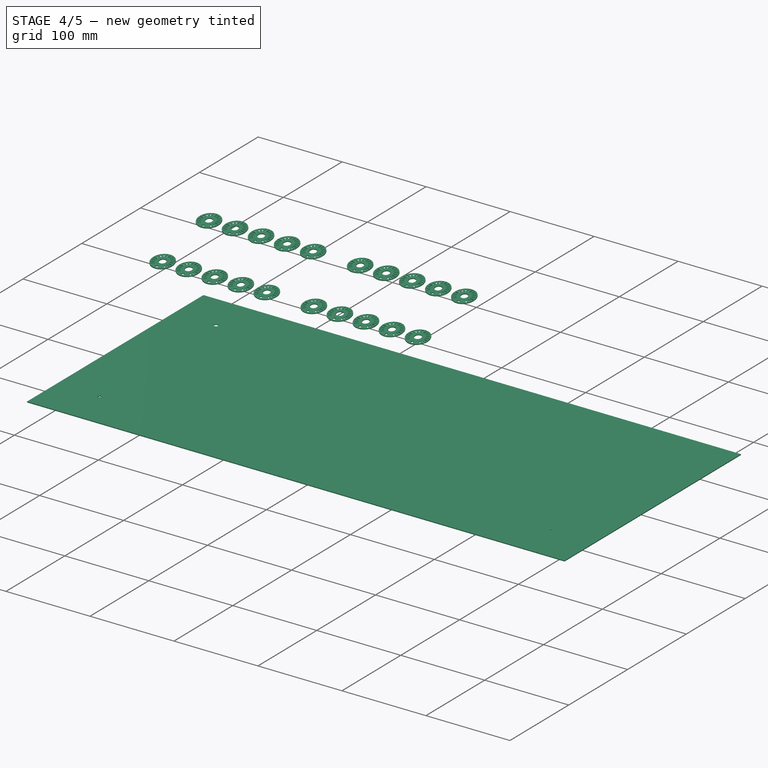
[diagram: stage 4 of 5 — iso view after this stage's code; geometry added in this stage tinted green]
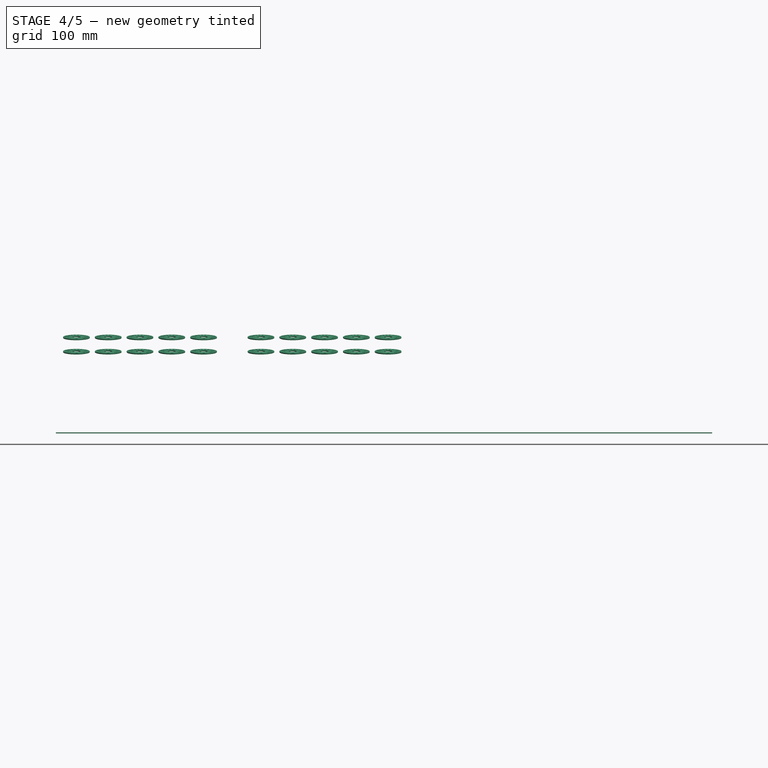
[diagram: stage 4 of 5 — front view after this stage's code; geometry added in this stage tinted green]
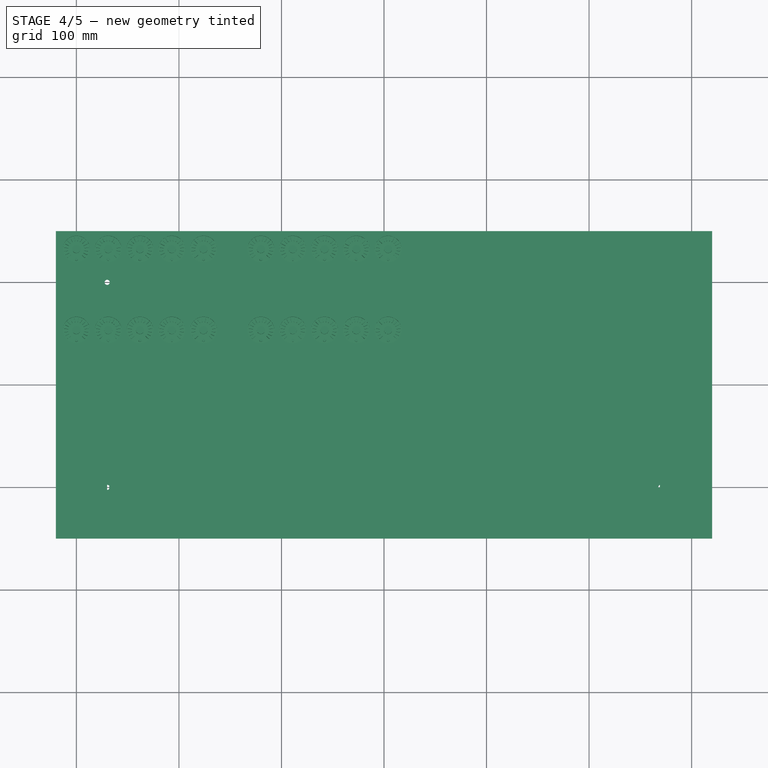
[diagram: stage 4 of 5 — top view after this stage's code; geometry added in this stage tinted green]
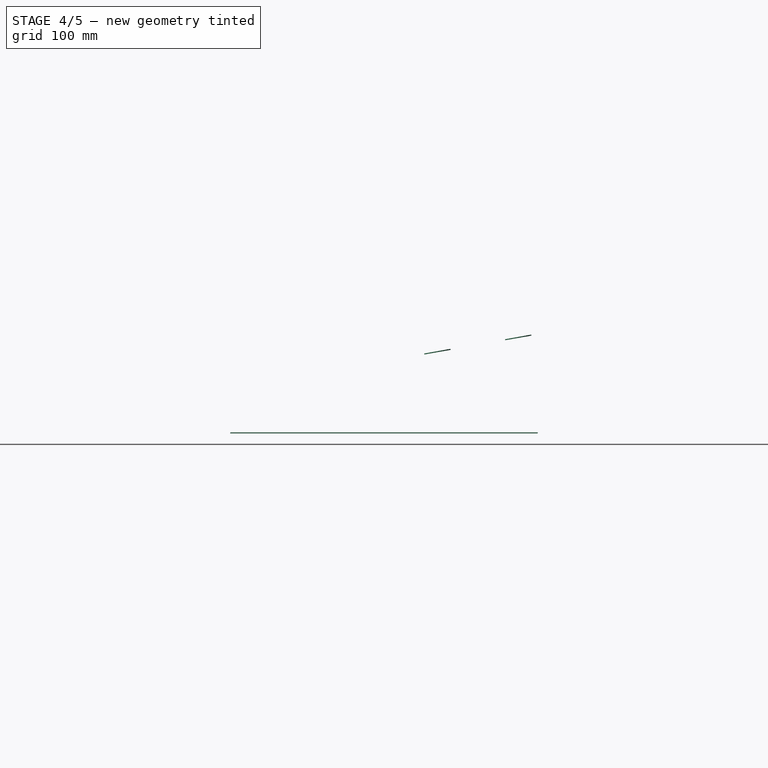
[diagram: stage 4 of 5 — right view after this stage's code; geometry added in this stage tinted green]
FEATURE [PartDesign::Pocket] Pocket004  label="executers1"
  BaseFeature = -> Pocket003
  Direction = (0,0,-1)
  Length = 1.5
  Length2 = 5
  Profile = -> Sketch006
  ReferenceAxis = -> Sketch006 [N_Axis]
  Suppressed = false
  Type = 0
FEATURE [PartDesign::Pocket] Pocket005  label="keypad"
  BaseFeature = -> Pocket004
  Direction = (0,0,-1)
  Length = 1.5
  Length2 = 5
  Profile = -> Sketch004
  ReferenceAxis = -> Sketch004 [N_Axis]
  Suppressed = false
  Type = 0
FEATURE [PartDesign::Pocket] Pocket006  label="user"
  BaseFeature = -> Pocket005
  Direction = (0,0,-1)
  Length = 1.5
  Length2 = 5
  Profile = -> Sketch007
  ReferenceAxis = -> Sketch007 [N_Axis]
  Suppressed = false
  Type = 0
FEATURE [PartDesign::Pocket] Pocket007  label="masterfader"
  BaseFeature = -> Pocket006
  Direction = (0,0,-1)
  Length = 1.5
  Length2 = 5
  Profile = -> Sketch003
  ReferenceAxis = -> Sketch003 [N_Axis]
  Suppressed = false
  Type = 0
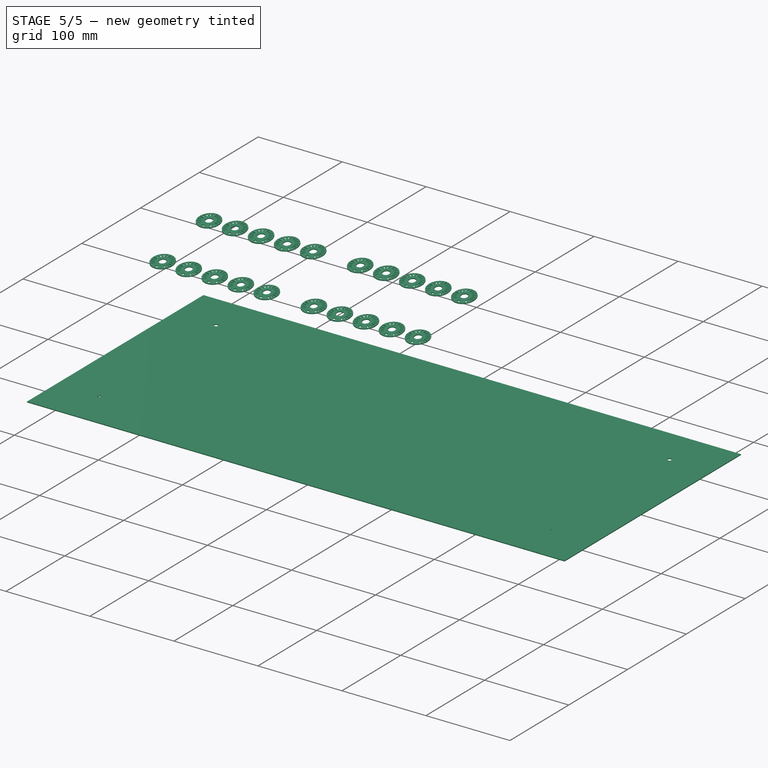
[diagram: stage 5 of 5 — iso view after this stage's code; geometry added in this stage tinted green]
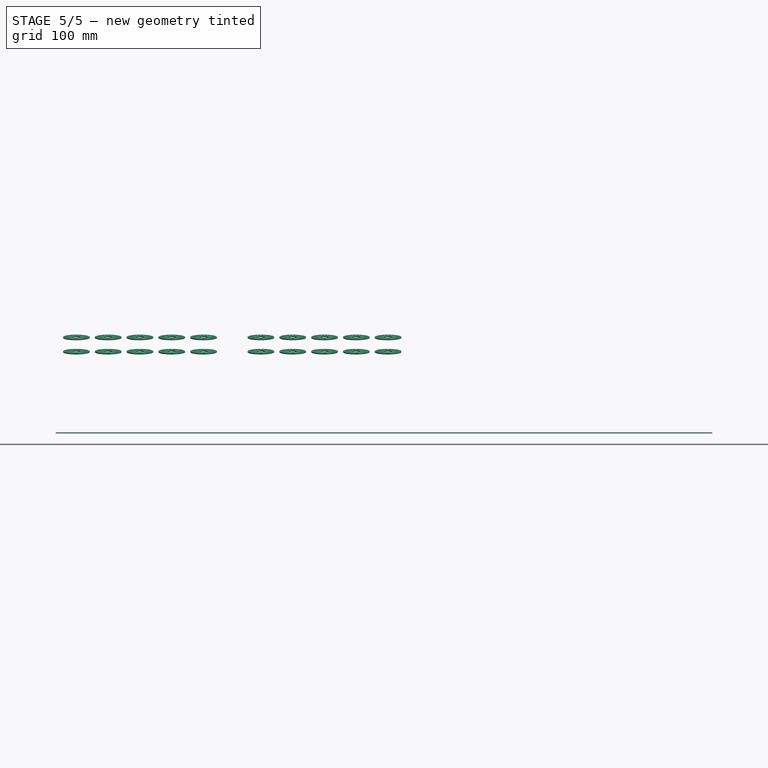
[diagram: stage 5 of 5 — front view after this stage's code; geometry added in this stage tinted green]
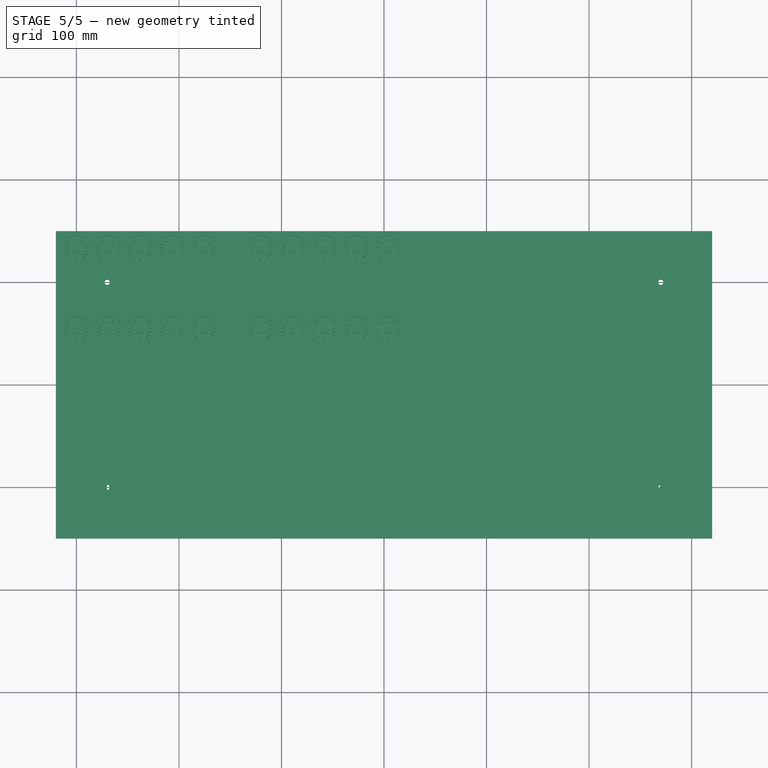
[diagram: stage 5 of 5 — top view after this stage's code; geometry added in this stage tinted green]
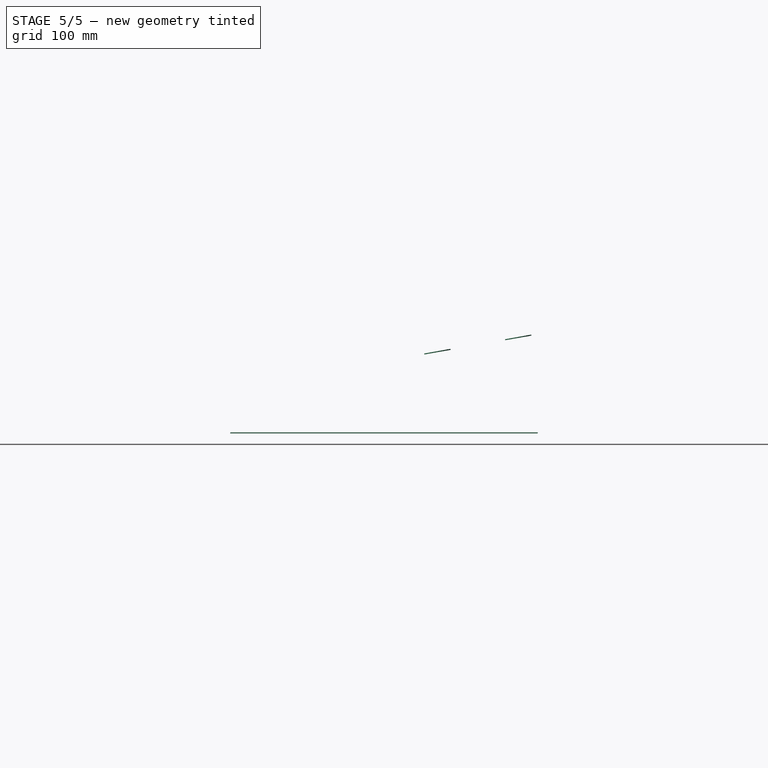
[diagram: stage 5 of 5 — right view after this stage's code; geometry added in this stage tinted green]
FEATURE [PartDesign::Pocket] Pocket008  label="encoders"
  BaseFeature = -> Pocket007
  Direction = (0,0,-1)
  Length = 1.5
  Length2 = 5
  Profile = -> Sketch009
  ReferenceAxis = -> Sketch009 [N_Axis]
  Suppressed = false
  Type = 0
FEATURE [PartDesign::Pocket] Pocket009  label="display"
  BaseFeature = -> Pocket008
  Direction = (0,0,-1)
  Length = 1.5
  Length2 = 5
  Profile = -> Sketch010
  ReferenceAxis = -> Sketch010 [N_Axis]
  Suppressed = false
  Type = 0
FEATURE [PartDesign::Pocket] Pocket010  label="x/y"
  BaseFeature = -> Pocket009
  Direction = (0,0,-1)
  Length = 1.5
  Length2 = 5
  Profile = -> Sketch011
  ReferenceAxis = -> Sketch011 [N_Axis]
  Suppressed = false
  Type = 0
FEATURE [PartDesign::Pocket] Pocket011  label="bpm"
  BaseFeature = -> Pocket010
  Direction = (0,0,-1)
  Length = 1.5
  Length2 = 5
  Profile = -> Sketch012
  ReferenceAxis = -> Sketch012 [N_Axis]
  Suppressed = false
  Type = 0
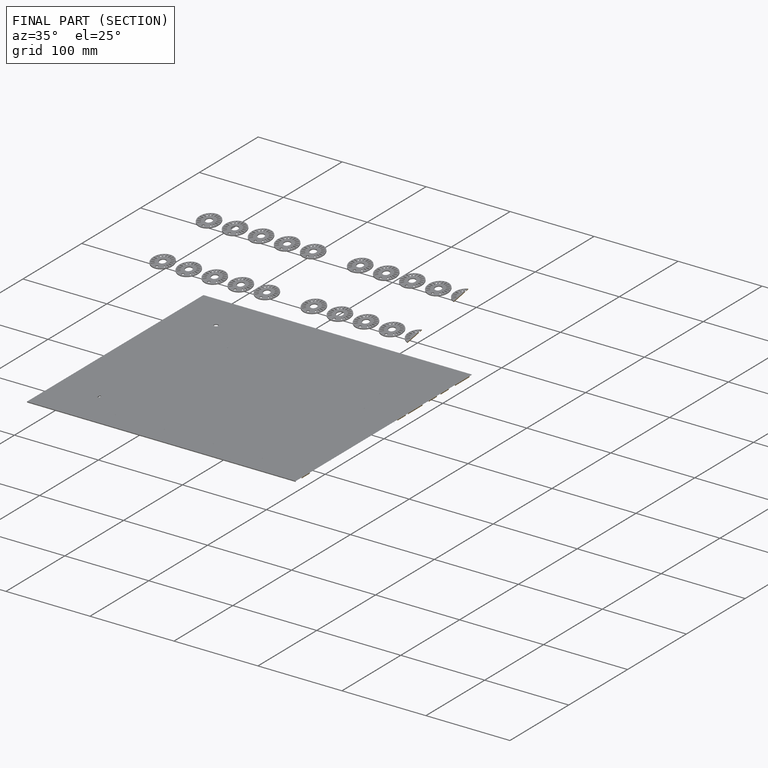
[diagram: finished part — half-section view (interior)]
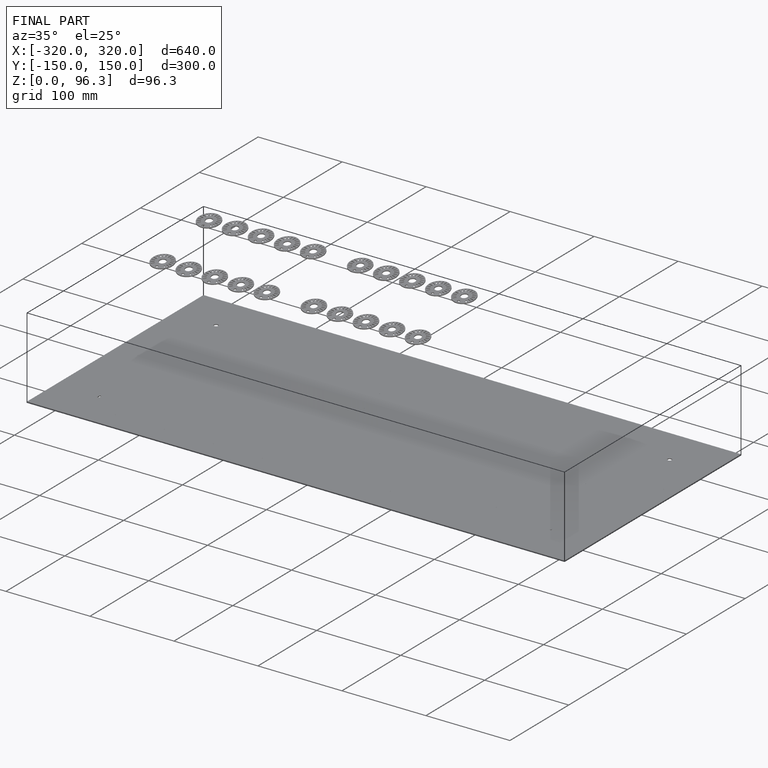
[diagram: finished part — iso view with bounding-box wireframe]
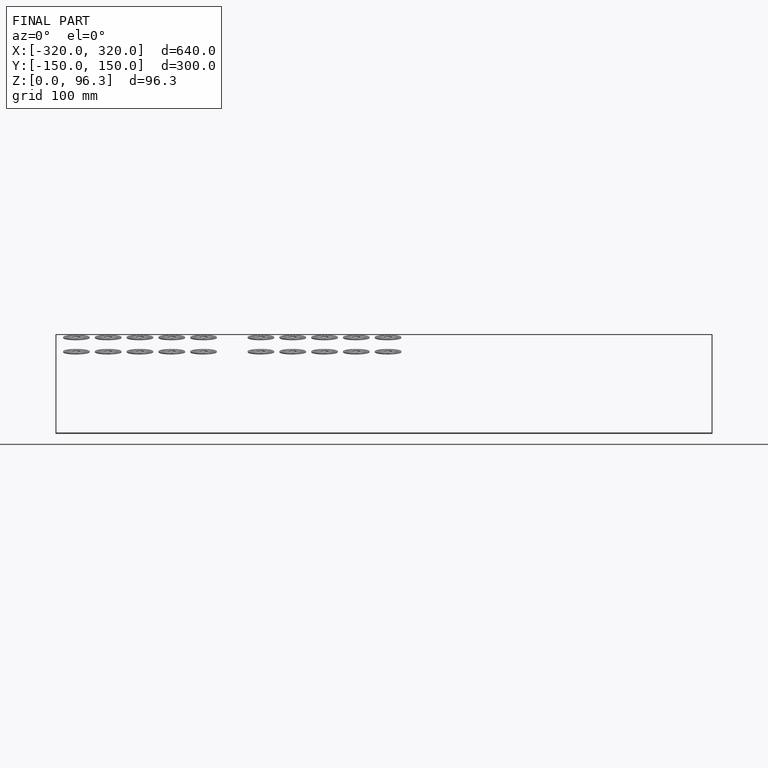
[diagram: finished part — front view with bounding-box wireframe]
